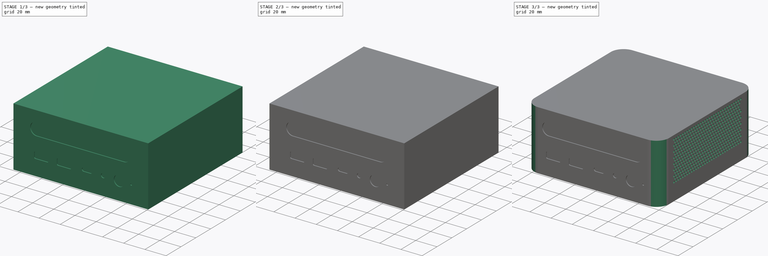
[diagram: build sequence overview — one tinted view per stage of 3, left to right]
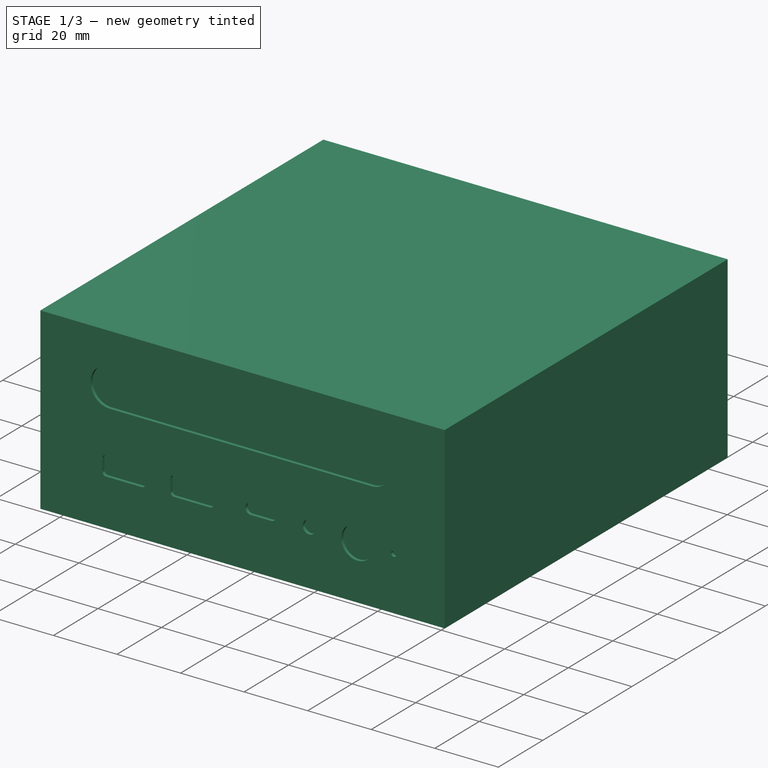
[diagram: stage 1 of 3 — iso view after this stage's code; geometry added in this stage tinted green]
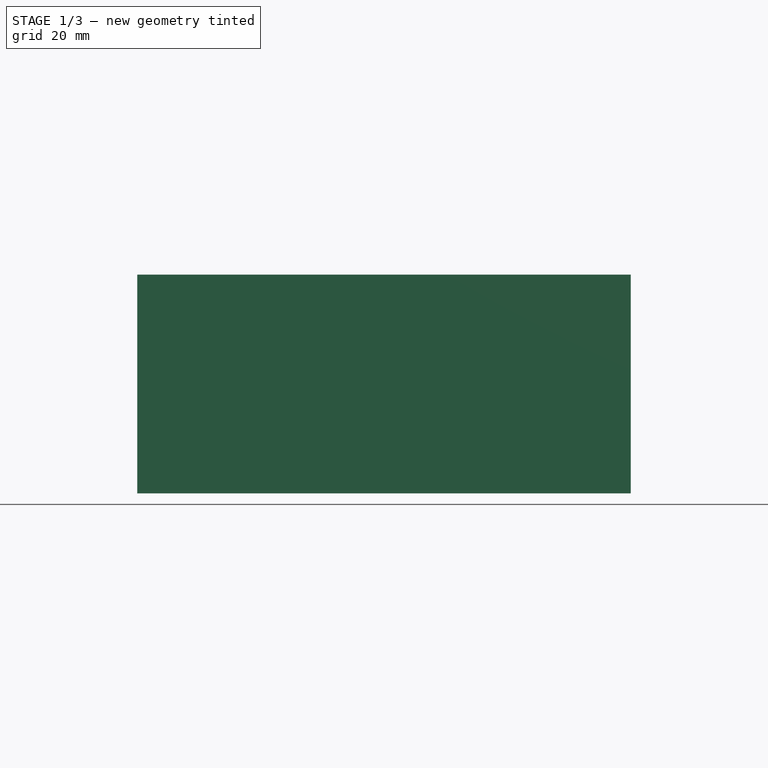
[diagram: stage 1 of 3 — front view after this stage's code; geometry added in this stage tinted green]
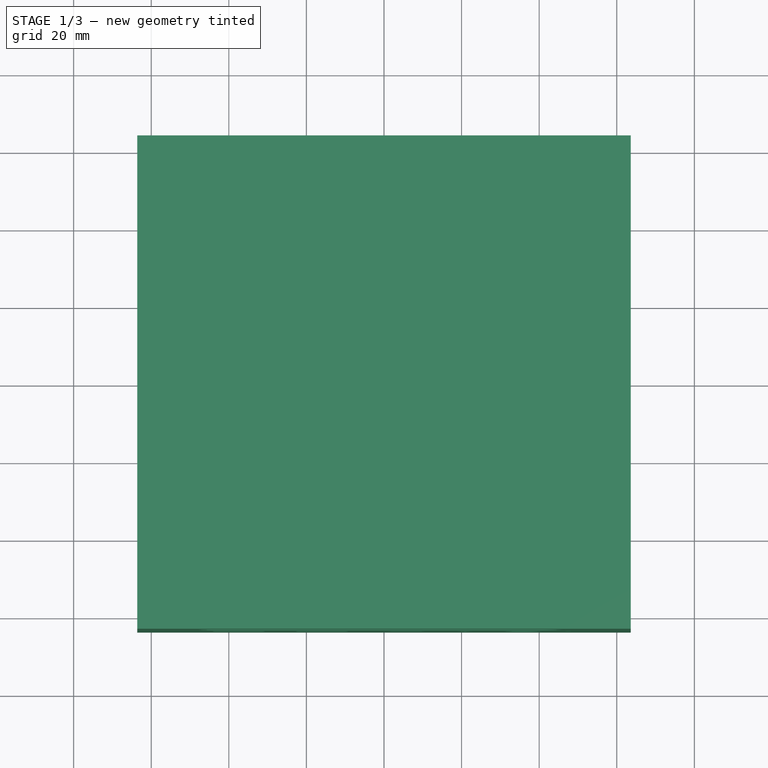
[diagram: stage 1 of 3 — top view after this stage's code; geometry added in this stage tinted green]
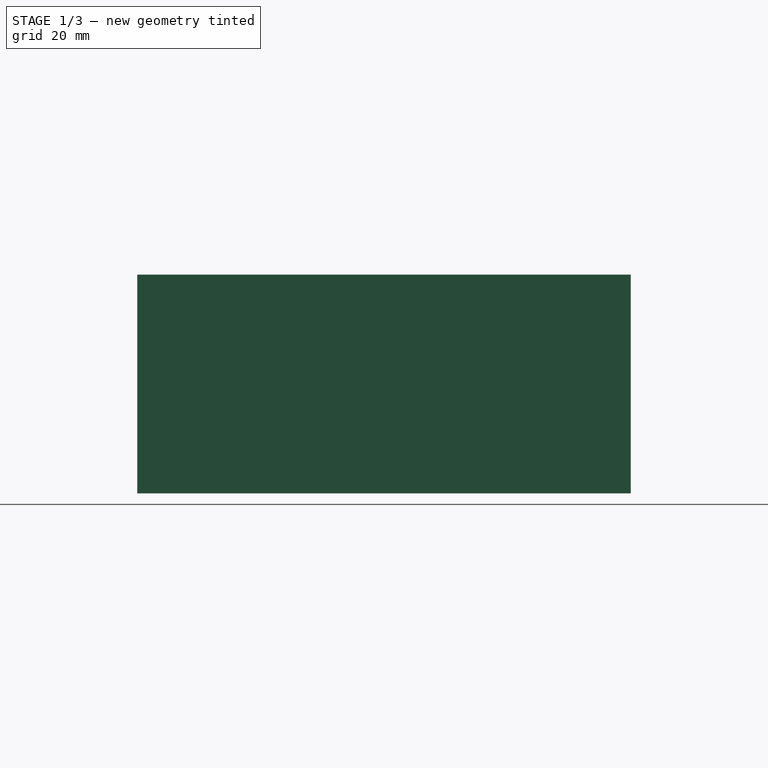
[diagram: stage 1 of 3 — right view after this stage's code; geometry added in this stage tinted green]
FCSTD DOCUMENT  (FreeCAD 1.0R39285 (Git))
Label: slimbook_one
License: All rights reserved
objects: Sketcher::SketchObject×6, PartDesign::Pocket×5, PartDesign::Pad×1, PartDesign::Fillet×1, PartDesign::Body×1
note: 34 computed .brp shape members not serialized (recipe doc carries the construction recipe); baked Part::Feature solids carry a one-line shape summary decoded from their .brp

FEATURE [Sketcher::SketchObject] Sketch003
  ArcFitTolerance = 1e-06
  AttachmentSupport = -> [XY_Plane001]
  FullyConstrained = true
  MakeInternals = false
  MapMode = 5
  sketch-geometry (4):
    g0: LineSegment StartX=-63.615 StartY=63.6 StartZ=0 EndX=-63.615 EndY=-63.6 EndZ=0
    g1: LineSegment StartX=-63.615 StartY=-63.6 StartZ=0 EndX=63.615 EndY=-63.6 EndZ=0
    g2: LineSegment StartX=63.615 StartY=-63.6 StartZ=0 EndX=63.615 EndY=63.6 EndZ=0
    g3: LineSegment StartX=63.615 StartY=63.6 StartZ=0 EndX=-63.615 EndY=63.6 EndZ=0
  constraints (10):
    c: Coincident(g0,g1)
    c: Coincident(g1,g2)
    c: Coincident(g2,g3)
    c: Coincident(g3,g0)
    c: Vertical(g2)
    c: Horizontal(g1)
    c: Symmetric(g0,g2,g-2)
    c: Symmetric(g0,g0,g-1)
    c: DistanceX(g3,g3) = 127.23
    c: DistanceY(g2,g2) = 127.2
FEATURE [PartDesign::Pad] Pad001
  Direction = (0,0,1)
  Length = 56.4
  Length2 = 10
  Profile = -> Sketch003
  ReferenceAxis = -> Sketch003 [N_Axis]
  Refine = true
  Suppressed = false
  Type = 0
FEATURE [Sketcher::SketchObject] Sketch004
  ArcFitTolerance = 1e-06
  AttachmentSupport = -> [Pad001]
  ExternalGeometry = -> [Pad001]
  FullyConstrained = false
  MakeInternals = false
  MapMode = 5
  Placement = pos=(0,-63.6,0) rot=(1,0,0;1.5708rad)
  sketch-geometry (40):
    g0: LineSegment [constr] StartX=-73.4008 StartY=46.2791 StartZ=0 EndX=82.2227 EndY=46.2791 EndZ=0
    g1: LineSegment [constr] StartX=-71.5261 StartY=34.2791 StartZ=0 EndX=84.3052 EndY=34.2791 EndZ=0
    g2: GeomPoint [constr] X=-16.6735 Y=34.2791 Z=0
    g3: GeomPoint [constr] X=18.856 Y=56.4 Z=0
    g4: LineSegment [constr] StartX=46.6007 StartY=63.3874 StartZ=0 EndX=46.6007 EndY=1.40972 EndZ=0
    g5: LineSegment [constr] StartX=-47.8255 StartY=66.0933 StartZ=0 EndX=-47.8255 EndY=-0.062699 EndZ=0
    g6: GeomPoint [constr] X=46.6007 Y=37.3248 Z=0
    g7: GeomPoint [constr] X=-47.8255 Y=40.1228 Z=0
    g8: ArcOfCircle CenterX=-41.8276 CenterY=40.2791 CenterZ=0 NormalX=0 NormalY=0 NormalZ=1 AngleXU=0 Radius=6 StartAngle=1.57079 EndAngle=4.71239
    g9: ArcOfCircle CenterX=40.6007 CenterY=40.2791 CenterZ=0 NormalX=0 NormalY=0 NormalZ=1 AngleXU=0 Radius=6 StartAngle=4.71239 EndAngle=7.85398
    g10: LineSegment StartX=-41.8275 StartY=46.2791 StartZ=0 EndX=40.6007 EndY=46.2791 EndZ=0
    g11: LineSegment StartX=-41.8276 StartY=34.2791 StartZ=0 EndX=40.6007 EndY=34.2791 EndZ=0
    g12: Circle CenterX=47.5771 CenterY=16.878 CenterZ=0 NormalX=0 NormalY=0 NormalZ=1 AngleXU=0 Radius=0.840897
    g13: Circle CenterX=36.1492 CenterY=16.9947 CenterZ=0 NormalX=0 NormalY=0 NormalZ=1 AngleXU=0 Radius=5.07796
    g14: Circle CenterX=20.9897 CenterY=17.3445 CenterZ=0 NormalX=0 NormalY=0 NormalZ=1 AngleXU=0 Radius=2.03403
    g15: ArcOfCircle CenterX=2.53728 CenterY=17.6 CenterZ=0 NormalX=0 NormalY=0 NormalZ=1 AngleXU=0 Radius=1.64393 StartAngle=1.57079 EndAngle=4.71239
    g16: ArcOfCircle CenterX=8.98728 CenterY=17.6 CenterZ=0 NormalX=0 NormalY=0 NormalZ=1 AngleXU=0 Radius=1.64393 StartAngle=4.7124 EndAngle=7.85398
    g17: LineSegment [constr] StartX=8.98728 StartY=17.6 StartZ=0 EndX=-2.16467 EndY=17.6 EndZ=0
    g18: LineSegment StartX=2.53729 StartY=19.2439 StartZ=0 EndX=8.98728 EndY=19.2439 EndZ=0
    g19: LineSegment StartX=2.53728 StartY=15.9561 StartZ=0 EndX=8.98729 EndY=15.9561 EndZ=0
    g20: LineSegment StartX=-22.671 StartY=19.4925 StartZ=0 EndX=-22.671 EndY=15.7492 EndZ=0
    g21: LineSegment StartX=-21.5535 StartY=14.6316 StartZ=0 EndX=-10.2113 EndY=14.6316 EndZ=0
    g22: LineSegment StartX=-9.0938 StartY=15.7492 StartZ=0 EndX=-9.0938 EndY=19.4925 EndZ=0
    g23: LineSegment StartX=-10.2113 StartY=20.61 StartZ=0 EndX=-21.5535 EndY=20.61 EndZ=0
    g24: ArcOfCircle CenterX=-21.5535 CenterY=19.4925 CenterZ=0 NormalX=0 NormalY=0 NormalZ=1 AngleXU=0 Radius=1.11755 StartAngle=1.5708 EndAngle=3.14159
    g25: ArcOfCircle CenterX=-21.5535 CenterY=15.7492 CenterZ=0 NormalX=0 NormalY=0 NormalZ=1 AngleXU=0 Radius=1.11755 StartAngle=3.14159 EndAngle=4.71239
    g26: ArcOfCircle CenterX=-10.2113 CenterY=15.7492 CenterZ=0 NormalX=0 NormalY=0 NormalZ=1 AngleXU=0 Radius=1.11755 StartAngle=4.71239 EndAngle=6.28319
    g27: ArcOfCircle CenterX=-10.2113 CenterY=19.4925 CenterZ=0 NormalX=0 NormalY=0 NormalZ=1 AngleXU=0 Radius=1.11755 StartAngle=0 EndAngle=1.5708
    g28: GeomPoint [constr] X=-22.671 Y=20.61 Z=0
    g29: GeomPoint [constr] X=-9.0938 Y=14.6316 Z=0
    g30: LineSegment StartX=-44.1275 StartY=19.5508 StartZ=0 EndX=-44.1275 EndY=15.8075 EndZ=0
    g31: LineSegment StartX=-43.01 StartY=14.6899 StartZ=0 EndX=-31.6679 EndY=14.6899 EndZ=0
    g32: LineSegment StartX=-30.5503 StartY=15.8075 StartZ=0 EndX=-30.5503 EndY=19.5508 EndZ=0
    g33: LineSegment StartX=-31.6679 StartY=20.6683 StartZ=0 EndX=-43.01 EndY=20.6683 EndZ=0
    g34: ArcOfCircle CenterX=-43.01 CenterY=19.5508 CenterZ=0 NormalX=0 NormalY=0 NormalZ=1 AngleXU=0 Radius=1.11755 StartAngle=1.5708 EndAngle=3.14159
    g35: ArcOfCircle CenterX=-43.01 CenterY=15.8075 CenterZ=0 NormalX=0 NormalY=0 NormalZ=1 AngleXU=0 Radius=1.11755 StartAngle=3.14159 EndAngle=4.71239
    g36: ArcOfCircle CenterX=-31.6679 CenterY=15.8075 CenterZ=0 NormalX=0 NormalY=0 NormalZ=1 AngleXU=0 Radius=1.11755 StartAngle=4.71239 EndAngle=6.28319
    g37: ArcOfCircle CenterX=-31.6679 CenterY=19.5508 CenterZ=0 NormalX=0 NormalY=0 NormalZ=1 AngleXU=0 Radius=1.11755 StartAngle=0 EndAngle=1.5708
    g38: GeomPoint [constr] X=-44.1275 Y=20.6683 Z=0
    g39: GeomPoint [constr] X=-30.5503 Y=14.6899 Z=0
  constraints (70):
    c: Horizontal(g0)
    c: Horizontal(g1)
    c: PointOnObject(g2,g1)
    c: Distance(g2,g0) = 12
    c: PointOnObject(g3,g-3)
    c: Vertical(g4)
    c: Vertical(g5)
    c: PointOnObject(g6,g4)
    c: PointOnObject(g7,g5)
    c: PointOnObject(g7,g8)
    c: Tangent(g8,g0)
    c: Tangent(g8,g1)
    c: Tangent(g10,g9) = 1.5708
    c: Horizontal(g10)
    c: Horizontal(g11)
    c: Tangent(g9,g4)
    c: Coincident(g8,g11)
    c: Coincident(g8,g10)
    c: Tangent(g9,g0) = 1.5708
    c: Tangent(g9,g1) = -1.5708
    c: Coincident(g17,g16)
    c: Horizontal(g17)
    c: PointOnObject(g15,g17)
    c: Distance(g17,g-1) = 17.6
    c: DistanceX(g15,g16) = 6.45
    c: Horizontal(g18)
    c: Horizontal(g19)
    c: Coincident(g15,g18)
    c: Tangent(g15,g19) = -1.5708
    c: Coincident(g16,g19)
    c: Tangent(g16,g18) = 1.5708
    c: Tangent(g20,g24) = -1.5708
    c: Tangent(g20,g25) = -1.5708
    c: Tangent(g21,g25) = -1.5708
    c: Tangent(g21,g26) = -1.5708
    c: Tangent(g22,g26) = -1.5708
    c: Tangent(g22,g27) = -1.5708
    c: Tangent(g23,g27) = -1.5708
    c: Tangent(g23,g24) = -1.5708
    c: Vertical(g20)
    c: Vertical(g22)
    c: Horizontal(g21)
    c: Horizontal(g23)
    c: Equal(g24,g25)
    c: Equal(g25,g26)
    c: Equal(g26,g27)
    c: PointOnObject(g28,g20)
    c: PointOnObject(g28,g23)
    c: PointOnObject(g29,g21)
    c: PointOnObject(g29,g22)
    c: Tangent(g30,g34) = -1.5708
    c: Tangent(g30,g35) = -1.5708
    c: Tangent(g31,g35) = -1.5708
    c: Tangent(g31,g36) = -1.5708
    c: Tangent(g32,g36) = -1.5708
    c: Tangent(g32,g37) = -1.5708
    c: Tangent(g33,g37) = -1.5708
    c: Tangent(g33,g34) = -1.5708
    c: Vertical(g30)
    c: Vertical(g32)
    c: Horizontal(g31)
    c: Horizontal(g33)
    c: Equal(g34,g35)
    c: Equal(g35,g36)
    c: Equal(g36,g37)
    c: PointOnObject(g38,g30)
    c: PointOnObject(g38,g33)
    c: PointOnObject(g39,g31)
    c: PointOnObject(g39,g32)
    c: Coincident(g11,g9)
FEATURE [PartDesign::Pocket] Pocket002
  BaseFeature = -> Pad001
  Direction = (0,1,-2e-16)
  Length = 1
  Length2 = 5
  Profile = -> Sketch004
  ReferenceAxis = -> Sketch004 [N_Axis]
  Refine = true
  Suppressed = false
  Type = 0
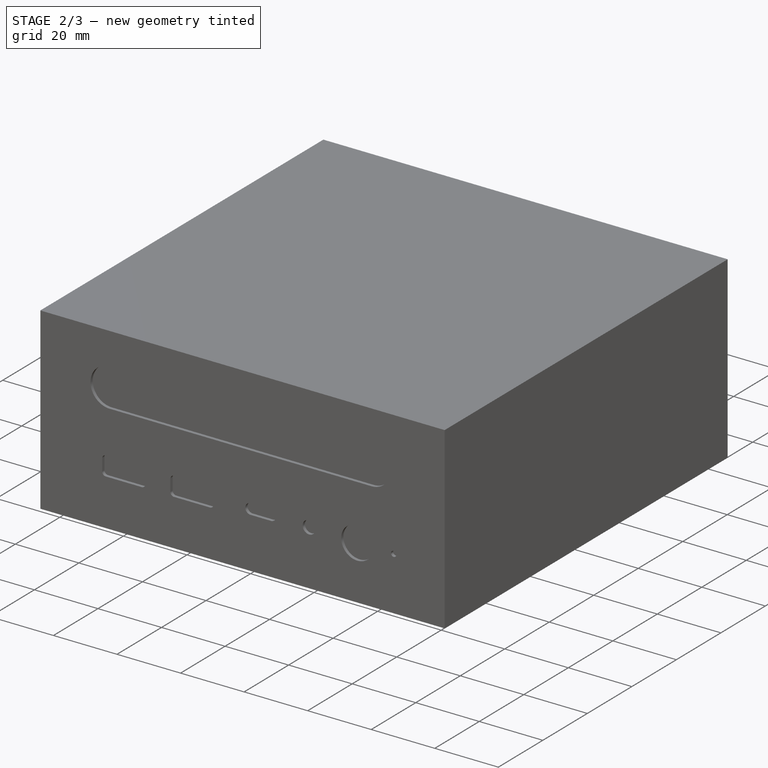
[diagram: stage 2 of 3 — iso view after this stage's code; geometry added in this stage tinted green]
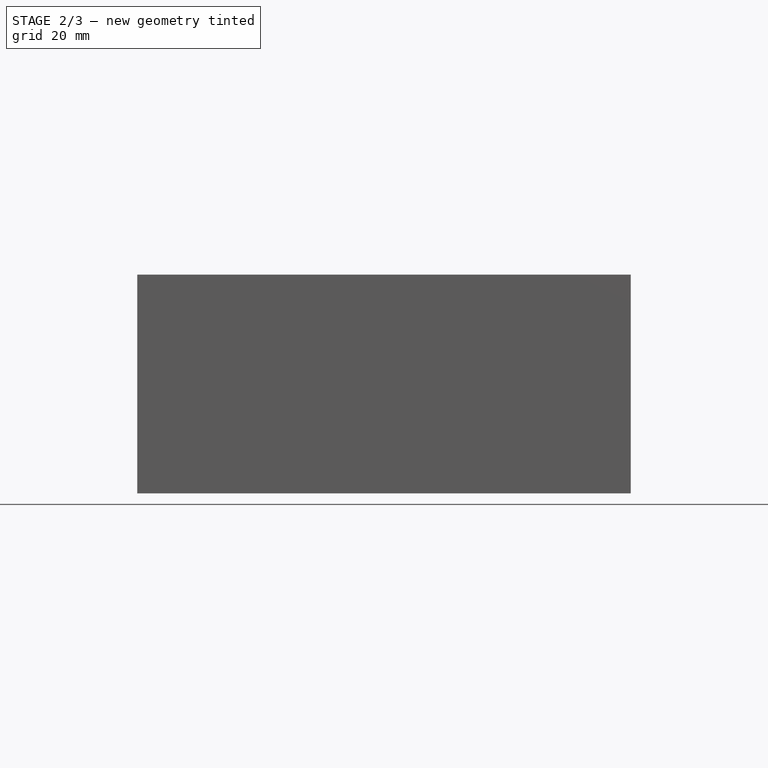
[diagram: stage 2 of 3 — front view after this stage's code; geometry added in this stage tinted green]
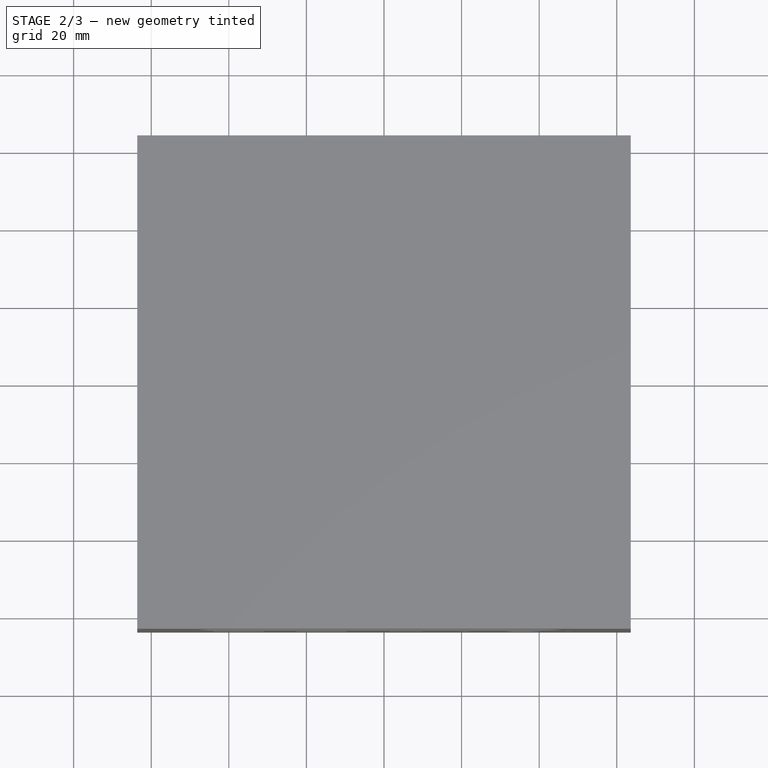
[diagram: stage 2 of 3 — top view after this stage's code; geometry added in this stage tinted green]
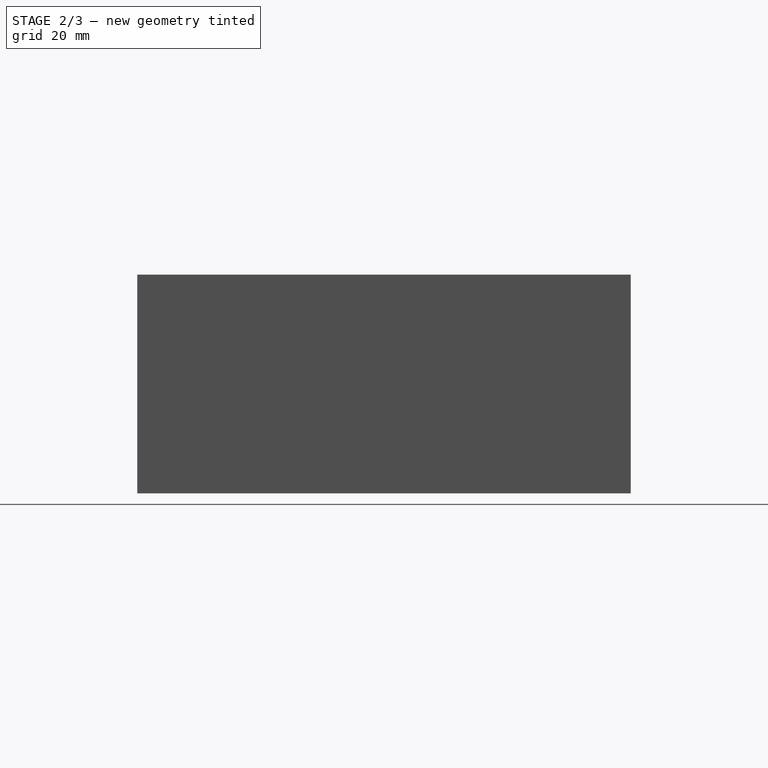
[diagram: stage 2 of 3 — right view after this stage's code; geometry added in this stage tinted green]
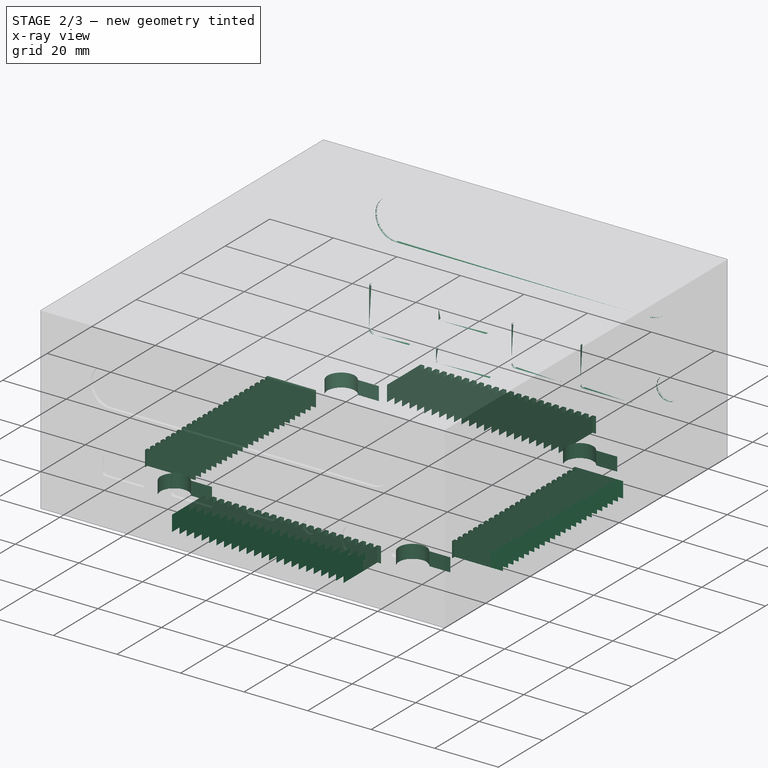
[diagram: stage 2 of 3 — x-ray composite at the iso view; earlier geometry ghosted, this stage's added geometry solid]
FEATURE [Sketcher::SketchObject] Sketch005
  ArcFitTolerance = 1e-06
  AttachmentSupport = -> [Pocket002]
  ExternalGeometry = -> [Pocket002]
  FullyConstrained = false
  MakeInternals = false
  MapMode = 5
  Placement = pos=(0,63.6,0) rot=(0,0.707107,0.707107;3.14159rad)
  sketch-geometry (58):
    g0: LineSegment StartX=-46.1992 StartY=40.269 StartZ=0 EndX=-46.1992 EndY=40.2561 EndZ=0
    g1: LineSegment StartX=-39.7824 StartY=33.8393 StartZ=0 EndX=40.1638 EndY=33.8393 EndZ=0
    g2: LineSegment StartX=46.5806 StartY=40.2561 StartZ=0 EndX=46.5806 EndY=40.269 EndZ=0
    g3: LineSegment StartX=40.1638 StartY=46.6858 StartZ=0 EndX=-39.7824 EndY=46.6858 EndZ=0
    g4: ArcOfCircle CenterX=-39.7824 CenterY=40.269 CenterZ=0 NormalX=0 NormalY=0 NormalZ=1 AngleXU=0 Radius=6.41679 StartAngle=1.5708 EndAngle=3.14159
    g5: ArcOfCircle CenterX=-39.7824 CenterY=40.2561 CenterZ=0 NormalX=0 NormalY=0 NormalZ=1 AngleXU=0 Radius=6.41679 StartAngle=3.14159 EndAngle=4.71239
    g6: ArcOfCircle CenterX=40.1638 CenterY=40.2561 CenterZ=0 NormalX=0 NormalY=0 NormalZ=1 AngleXU=0 Radius=6.41679 StartAngle=4.71239 EndAngle=6.28319
    g7: ArcOfCircle CenterX=40.1638 CenterY=40.269 CenterZ=0 NormalX=0 NormalY=0 NormalZ=1 AngleXU=0 Radius=6.41679 StartAngle=0 EndAngle=1.5708
    g8: GeomPoint [constr] X=-46.1992 Y=46.6858 Z=0
    g9: GeomPoint [constr] X=46.5806 Y=33.8393 Z=0
    g10: Circle CenterX=-45.4206 CenterY=15.0239 CenterZ=0 NormalX=0 NormalY=0 NormalZ=1 AngleXU=0 Radius=3.60775
    g11: LineSegment StartX=-34.3908 StartY=20.0846 StartZ=0 EndX=-34.3908 EndY=8.66553 EndZ=0
    g12: LineSegment StartX=-33.742 StartY=8.01672 StartZ=0 EndX=-18.5599 EndY=8.01672 EndZ=0
    g13: LineSegment StartX=-17.9111 StartY=8.66553 StartZ=0 EndX=-17.9111 EndY=20.0846 EndZ=0
    g14: LineSegment StartX=-18.5599 StartY=20.7334 StartZ=0 EndX=-33.742 EndY=20.7334 EndZ=0
    g15: ArcOfCircle CenterX=-33.742 CenterY=20.0846 CenterZ=0 NormalX=0 NormalY=0 NormalZ=1 AngleXU=0 Radius=0.648808 StartAngle=1.5708 EndAngle=3.14159
    g16: ArcOfCircle CenterX=-33.742 CenterY=8.66553 CenterZ=0 NormalX=0 NormalY=0 NormalZ=1 AngleXU=0 Radius=0.648808 StartAngle=3.14159 EndAngle=4.71239
    g17: ArcOfCircle CenterX=-18.5599 CenterY=8.66553 CenterZ=0 NormalX=0 NormalY=0 NormalZ=1 AngleXU=0 Radius=0.648808 StartAngle=4.71239 EndAngle=6.28319
    g18: ArcOfCircle CenterX=-18.5599 CenterY=20.0846 CenterZ=0 NormalX=0 NormalY=0 NormalZ=1 AngleXU=0 Radius=0.648808 StartAngle=0 EndAngle=1.5708
    g19: GeomPoint [constr] X=-34.3908 Y=20.7334 Z=0
    g20: GeomPoint [constr] X=-17.9111 Y=8.01672 Z=0
    g21: LineSegment StartX=-12.4794 StartY=19.9304 StartZ=0 EndX=-12.4794 EndY=8.97443 EndZ=0
    g22: LineSegment StartX=-11.4891 StartY=7.98409 StartZ=0 EndX=2.80844 EndY=7.98409 EndZ=0
    g23: LineSegment StartX=3.79878 StartY=8.97443 StartZ=0 EndX=3.79878 EndY=19.9304 EndZ=0
    g24: LineSegment StartX=2.80844 StartY=20.9207 StartZ=0 EndX=-11.4891 EndY=20.9207 EndZ=0
    g25: ArcOfCircle CenterX=-11.4891 CenterY=19.9304 CenterZ=0 NormalX=0 NormalY=0 NormalZ=1 AngleXU=0 Radius=0.990344 StartAngle=1.5708 EndAngle=3.14159
    g26: ArcOfCircle CenterX=-11.4891 CenterY=8.97443 CenterZ=0 NormalX=0 NormalY=0 NormalZ=1 AngleXU=0 Radius=0.990344 StartAngle=3.14159 EndAngle=4.71239
    g27: ArcOfCircle CenterX=2.80844 CenterY=8.97443 CenterZ=0 NormalX=0 NormalY=0 NormalZ=1 AngleXU=0 Radius=0.990344 StartAngle=4.71239 EndAngle=6.28319
    g28: ArcOfCircle CenterX=2.80844 CenterY=19.9304 CenterZ=0 NormalX=0 NormalY=0 NormalZ=1 AngleXU=0 Radius=0.990344 StartAngle=0 EndAngle=1.5708
    g29: GeomPoint [constr] X=-12.4794 Y=20.9207 Z=0
    g30: GeomPoint [constr] X=3.79878 Y=7.98409 Z=0
    g31: LineSegment StartX=35.046 StartY=19.0812 StartZ=0 EndX=35.046 EndY=6.92984 EndZ=0
    g32: LineSegment StartX=36.3456 StartY=5.63021 StartZ=0 EndX=47.2081 EndY=5.63021 EndZ=0
    g33: LineSegment StartX=48.5077 StartY=6.92984 StartZ=0 EndX=48.5077 EndY=19.0812 EndZ=0
    g34: LineSegment StartX=47.2081 StartY=20.3809 StartZ=0 EndX=36.3456 EndY=20.3809 EndZ=0
    g35: ArcOfCircle CenterX=36.3456 CenterY=19.0812 CenterZ=0 NormalX=0 NormalY=0 NormalZ=1 AngleXU=0 Radius=1.29963 StartAngle=1.5708 EndAngle=3.14159
    g36: ArcOfCircle CenterX=36.3456 CenterY=6.92984 CenterZ=0 NormalX=0 NormalY=0 NormalZ=1 AngleXU=0 Radius=1.29963 StartAngle=3.14159 EndAngle=4.71239
    g37: ArcOfCircle CenterX=47.2081 CenterY=6.92984 CenterZ=0 NormalX=0 NormalY=0 NormalZ=1 AngleXU=0 Radius=1.29963 StartAngle=4.71239 EndAngle=6.28319
    g38: ArcOfCircle CenterX=47.2081 CenterY=19.0812 CenterZ=0 NormalX=0 NormalY=0 NormalZ=1 AngleXU=0 Radius=1.29963 StartAngle=0 EndAngle=1.5708
    g39: GeomPoint [constr] X=35.046 Y=20.3809 Z=0
    g40: GeomPoint [constr] X=48.5077 Y=5.63021 Z=0
    g41: LineSegment StartX=10.548 StartY=8.4941 StartZ=0 EndX=10.548 EndY=3.30873 EndZ=0
    g42: LineSegment StartX=10.823 StartY=3.03371 StartZ=0 EndX=27.1937 EndY=3.03371 EndZ=0
    g43: LineSegment StartX=27.4688 StartY=3.30873 StartZ=0 EndX=27.4688 EndY=6.82208 EndZ=0
    g44: LineSegment StartX=27.4688 StartY=6.82208 StartZ=0 EndX=25.6157 EndY=8.76912 EndZ=0
    g45: LineSegment StartX=25.6157 StartY=8.76912 StartZ=0 EndX=10.823 EndY=8.76912 EndZ=0
    g46: ArcOfCircle CenterX=10.823 CenterY=8.4941 CenterZ=0 NormalX=0 NormalY=0 NormalZ=1 AngleXU=0 Radius=0.275018 StartAngle=1.5708 EndAngle=3.14159
    g47: GeomPoint [constr] X=10.548 Y=8.76912 Z=0
    g48: ArcOfCircle CenterX=10.823 CenterY=3.30873 CenterZ=0 NormalX=0 NormalY=0 NormalZ=1 AngleXU=0 Radius=0.275018 StartAngle=3.14159 EndAngle=4.71239
    g49: GeomPoint [constr] X=10.548 Y=3.03371 Z=0
    g50: ArcOfCircle CenterX=27.1937 CenterY=3.30873 CenterZ=0 NormalX=0 NormalY=0 NormalZ=1 AngleXU=0 Radius=0.275018 StartAngle=4.71239 EndAngle=6.28319
    g51: GeomPoint [constr] X=27.4688 Y=3.03371 Z=0
    g52: LineSegment StartX=11.7565 StartY=15.292 StartZ=0 EndX=26.7276 EndY=15.292 EndZ=0
    g53: LineSegment StartX=26.7276 StartY=15.292 StartZ=0 EndX=26.7276 EndY=18.8754 EndZ=0
    g54: LineSegment StartX=26.7276 StartY=18.8754 StartZ=0 EndX=24.6148 EndY=20.7314 EndZ=0
    g55: LineSegment StartX=24.6148 StartY=20.7314 StartZ=0 EndX=13.8693 EndY=20.7314 EndZ=0
    g56: LineSegment StartX=13.8693 StartY=20.7314 StartZ=0 EndX=11.7565 EndY=18.8754 EndZ=0
    g57: LineSegment StartX=11.7565 StartY=18.8754 StartZ=0 EndX=11.7565 EndY=15.292 EndZ=0
  constraints (108):
    c: Tangent(g0,g4) = -1.5708
    c: Tangent(g0,g5) = -1.5708
    c: Tangent(g1,g5) = -1.5708
    c: Tangent(g1,g6) = -1.5708
    c: Tangent(g2,g6) = -1.5708
    c: Tangent(g2,g7) = -1.5708
    c: Tangent(g3,g7) = -1.5708
    c: Tangent(g3,g4) = -1.5708
    c: Vertical(g0)
    c: Vertical(g2)
    c: Horizontal(g1)
    c: Horizontal(g3)
    c: Equal(g4,g5)
    c: Equal(g5,g6)
    c: Equal(g6,g7)
    c: PointOnObject(g8,g0)
    c: PointOnObject(g8,g3)
    c: PointOnObject(g9,g1)
    c: PointOnObject(g9,g2)
    c: Tangent(g11,g15) = -1.5708
    c: Tangent(g11,g16) = -1.5708
    c: Tangent(g12,g16) = -1.5708
    c: Tangent(g12,g17) = -1.5708
    c: Tangent(g13,g17) = -1.5708
    c: Tangent(g13,g18) = -1.5708
    c: Tangent(g14,g18) = -1.5708
    c: Tangent(g14,g15) = -1.5708
    c: Vertical(g11)
    c: Vertical(g13)
    c: Horizontal(g12)
    c: Horizontal(g14)
    c: Equal(g15,g16)
    c: Equal(g16,g17)
    c: Equal(g17,g18)
    c: PointOnObject(g19,g11)
    c: PointOnObject(g19,g14)
    c: PointOnObject(g20,g12)
    c: PointOnObject(g20,g13)
    c: Tangent(g21,g25) = -1.5708
    c: Tangent(g21,g26) = -1.5708
    c: Tangent(g22,g26) = -1.5708
    c: Tangent(g22,g27) = -1.5708
    c: Tangent(g23,g27) = -1.5708
    c: Tangent(g23,g28) = -1.5708
    c: Tangent(g24,g28) = -1.5708
    c: Tangent(g24,g25) = -1.5708
    c: Vertical(g21)
    c: Vertical(g23)
    c: Horizontal(g22)
    c: Horizontal(g24)
    c: Equal(g25,g26)
    c: Equal(g26,g27)
    c: Equal(g27,g28)
    c: PointOnObject(g29,g21)
    c: PointOnObject(g29,g24)
    c: PointOnObject(g30,g22)
    c: PointOnObject(g30,g23)
    c: Tangent(g31,g35) = -1.5708
    c: Tangent(g31,g36) = -1.5708
    c: Tangent(g32,g36) = -1.5708
    c: Tangent(g32,g37) = -1.5708
    c: Tangent(g33,g37) = -1.5708
    c: Tangent(g33,g38) = -1.5708
    c: Tangent(g34,g38) = -1.5708
    c: Tangent(g34,g35) = -1.5708
    c: Vertical(g31)
    c: Vertical(g33)
    c: Horizontal(g32)
    c: Horizontal(g34)
    c: Equal(g35,g36)
    c: Equal(g36,g37)
    c: Equal(g37,g38)
    c: PointOnObject(g39,g31)
    c: PointOnObject(g39,g34)
    c: PointOnObject(g40,g32)
    c: PointOnObject(g40,g33)
    c: Vertical(g41)
    c: Horizontal(g42)
    c: Vertical(g43)
    c: Coincident(g43,g44)
    c: Coincident(g44,g45)
    c: Horizontal(g45)
    c: PointOnObject(g47,g45)
    c: PointOnObject(g47,g41)
    c: Tangent(g45,g46) = -1.5708
    c: Tangent(g41,g46) = -1.5708
    c: PointOnObject(g49,g41)
    c: PointOnObject(g49,g42)
    c: Tangent(g41,g48) = -1.5708
    c: Tangent(g42,g48) = -1.5708
    c: PointOnObject(g51,g43)
    c: PointOnObject(g51,g42)
    c: Tangent(g43,g50) = -1.5708
    c: Tangent(g42,g50) = -1.5708
    c: Equal(g46,g48)
    c: Equal(g48,g50)
    c: Horizontal(g52)
    c: Coincident(g52,g53)
    c: Vertical(g53)
    c: Coincident(g53,g54)
    c: Coincident(g54,g55)
    c: Horizontal(g55)
    c: Coincident(g55,g56)
    c: Coincident(g56,g57)
    c: Vertical(g57)
    c: Equal(g56,g54)
    c: Equal(g57,g53)
    c: Coincident(g57,g52)
FEATURE [PartDesign::Pocket] Pocket003
  BaseFeature = -> Pocket002
  Direction = (0,-1,2e-16)
  Length = 1
  Length2 = 5
  Profile = -> Sketch005
  ReferenceAxis = -> Sketch005 [N_Axis]
  Refine = true
  Suppressed = false
  Type = 0
FEATURE [Sketcher::SketchObject] Sketch006
  ArcFitTolerance = 1e-06
  AttachmentSupport = -> [Pocket003]
  ExternalGeometry = -> [Pocket003]
  FullyConstrained = false
  MakeInternals = false
  MapMode = 5
  Placement = pos=(0,0,0) rot=(1,0,0;3.14159rad)
  sketch-geometry (16):
    g0: LineSegment StartX=45.285 StartY=39.47 StartZ=0 EndX=38.6682 EndY=39.47 EndZ=0
    g1: LineSegment StartX=38.6682 StartY=34.87 StartZ=0 EndX=45.285 EndY=34.87 EndZ=0
    g2: LineSegment StartX=45.285 StartY=34.87 StartZ=0 EndX=45.285 EndY=39.47 EndZ=0
    g3: ArcOfCircle CenterX=35.035 CenterY=37.17 CenterZ=0 NormalX=0 NormalY=0 NormalZ=1 AngleXU=0 Radius=4.3 StartAngle=0.56437 EndAngle=5.71882
    g4: LineSegment StartX=-29.715 StartY=39.47 StartZ=0 EndX=-36.3318 EndY=39.47 EndZ=0
    g5: LineSegment StartX=-36.3318 StartY=34.87 StartZ=0 EndX=-29.715 EndY=34.87 EndZ=0
    g6: LineSegment StartX=-29.715 StartY=34.87 StartZ=0 EndX=-29.715 EndY=39.47 EndZ=0
    g7: ArcOfCircle CenterX=-39.965 CenterY=37.17 CenterZ=0 NormalX=0 NormalY=0 NormalZ=1 AngleXU=0 Radius=4.3 StartAngle=0.56437 EndAngle=5.71882
    g8: LineSegment StartX=45.285 StartY=-35.53 StartZ=0 EndX=38.6682 EndY=-35.53 EndZ=0
    g9: LineSegment StartX=38.6682 StartY=-40.13 StartZ=0 EndX=45.285 EndY=-40.13 EndZ=0
    g10: LineSegment StartX=45.285 StartY=-40.13 StartZ=0 EndX=45.285 EndY=-35.53 EndZ=0
    g11: ArcOfCircle CenterX=35.035 CenterY=-37.83 CenterZ=0 NormalX=0 NormalY=0 NormalZ=1 AngleXU=0 Radius=4.3 StartAngle=0.56437 EndAngle=5.71882
    g12: LineSegment StartX=-29.715 StartY=-35.53 StartZ=0 EndX=-36.3318 EndY=-35.53 EndZ=0
    g13: LineSegment StartX=-36.3318 StartY=-40.13 StartZ=0 EndX=-29.715 EndY=-40.13 EndZ=0
    g14: LineSegment StartX=-29.715 StartY=-40.13 StartZ=0 EndX=-29.715 EndY=-35.53 EndZ=0
    g15: ArcOfCircle CenterX=-39.965 CenterY=-37.83 CenterZ=0 NormalX=0 NormalY=0 NormalZ=1 AngleXU=0 Radius=4.3 StartAngle=0.56437 EndAngle=5.71882
  constraints (43):
    c: Coincident(g1,g2)
    c: Coincident(g2,g0)
    c: Horizontal(g0)
    c: Horizontal(g1)
    c: Vertical(g2)
    c: DistanceY(g2,g2) = 4.6
    c: Diameter(g3) = 8.6
    c: Distance(g3,g0) = 2.3
    c: PointOnObject(g0,g3)
    c: Coincident(g1,g3)
    c: Coincident(g5,g6)
    c: Coincident(g9,g10)
    c: Coincident(g13,g14)
    c: Coincident(g6,g4)
    c: Coincident(g10,g8)
    c: Coincident(g14,g12)
    c: Horizontal(g4)
    c: Horizontal(g8)
    c: Horizontal(g12)
    c: Horizontal(g5)
    c: Horizontal(g9)
    c: Horizontal(g13)
    c: Vertical(g6)
    c: Vertical(g10)
    c: Vertical(g14)
    c: DistanceY(g6,g6) = 4.6
    c: DistanceY(g10,g10) = 4.6
    c: DistanceY(g14,g14) = 4.6
    c: Diameter(g7) = 8.6
    c: Diameter(g11) = 8.6
    c: Diameter(g15) = 8.6
    c: Distance(g7,g4) = 2.3
    c: Distance(g11,g8) = 2.3
    c: Distance(g15,g12) = 2.3
    c: PointOnObject(g4,g7)
    c: PointOnObject(g8,g11)
    c: PointOnObject(g12,g15)
    c: Coincident(g5,g7)
    c: Coincident(g9,g11)
    c: Coincident(g13,g15)
    c: Coincident(g4,g7)
    c: Coincident(g12,g15)
    c: Coincident(g8,g11)
FEATURE [PartDesign::Pocket] Pocket004
  BaseFeature = -> Pocket003
  Direction = (0,0,1)
  Length = 4.32
  Length2 = 5
  Profile = -> Sketch006
  ReferenceAxis = -> Sketch006 [N_Axis]
  Refine = true
  Suppressed = false
  Type = 0
FEATURE [Sketcher::SketchObject] Sketch007
  ArcFitTolerance = 1e-06
  AttachmentSupport = -> [Pocket004]
  ExternalGeometry = -> [Pocket004]
  FullyConstrained = false
  MakeInternals = false
  MapMode = 5
  Placement = pos=(0,0,0) rot=(1,0,0;3.14159rad)
  sketch-geometry (393):
    g0: LineSegment [constr] StartX=55.975 StartY=77.3472 StartZ=0 EndX=55.975 EndY=-90.5139 EndZ=0
    g1: GeomPoint [constr] X=55.975 Y=8.93984 Z=0
    g2: LineSegment [constr] StartX=-99.4084 StartY=-27.6 StartZ=0 EndX=154.225 EndY=-27.6 EndZ=0
    g3: GeomPoint [constr] X=27.4082 Y=-27.6 Z=0
    g4: LineSegment StartX=40.725 StartY=-26.45 StartZ=0 EndX=40.725 EndY=-27.6 EndZ=0
    g5: LineSegment StartX=40.725 StartY=-27.6 StartZ=0 EndX=55.975 EndY=-27.6 EndZ=0
    g6: LineSegment StartX=55.975 StartY=-27.6 StartZ=0 EndX=55.975 EndY=-26.45 EndZ=0
    g7: LineSegment StartX=55.975 StartY=-26.45 StartZ=0 EndX=40.725 EndY=-26.45 EndZ=0
    g8: LineSegment StartX=40.725 StartY=-24.1 StartZ=0 EndX=40.725 EndY=-25.25 EndZ=0
    g9: LineSegment StartX=40.725 StartY=-25.25 StartZ=0 EndX=55.975 EndY=-25.25 EndZ=0
    g10: LineSegment StartX=55.975 StartY=-25.25 StartZ=0 EndX=55.975 EndY=-24.1 EndZ=0
    g11: LineSegment StartX=55.975 StartY=-24.1 StartZ=0 EndX=40.725 EndY=-24.1 EndZ=0
    g12: LineSegment StartX=40.725 StartY=-21.75 StartZ=0 EndX=40.725 EndY=-22.9 EndZ=0
    g13: LineSegment StartX=40.725 StartY=-22.9 StartZ=0 EndX=55.975 EndY=-22.9 EndZ=0
    g14: LineSegment StartX=55.975 StartY=-22.9 StartZ=0 EndX=55.975 EndY=-21.75 EndZ=0
    g15: LineSegment StartX=55.975 StartY=-21.75 StartZ=0 EndX=40.725 EndY=-21.75 EndZ=0
    g16: LineSegment StartX=40.725 StartY=-19.4 StartZ=0 EndX=40.725 EndY=-20.55 EndZ=0
    g17: LineSegment StartX=40.725 StartY=-20.55 StartZ=0 EndX=55.975 EndY=-20.55 EndZ=0
    g18: LineSegment StartX=55.975 StartY=-20.55 StartZ=0 EndX=55.975 EndY=-19.4 EndZ=0
    g19: LineSegment StartX=55.975 StartY=-19.4 StartZ=0 EndX=40.725 EndY=-19.4 EndZ=0
    g20: LineSegment StartX=40.725 StartY=-17.05 StartZ=0 EndX=40.725 EndY=-18.2 EndZ=0
    g21: LineSegment StartX=40.725 StartY=-18.2 StartZ=0 EndX=55.975 EndY=-18.2 EndZ=0
    g22: LineSegment StartX=55.975 StartY=-18.2 StartZ=0 EndX=55.975 EndY=-17.05 EndZ=0
    g23: LineSegment StartX=55.975 StartY=-17.05 StartZ=0 EndX=40.725 EndY=-17.05 EndZ=0
    g24: LineSegment StartX=40.725 StartY=-14.7 StartZ=0 EndX=40.725 EndY=-15.85 EndZ=0
    g25: LineSegment StartX=40.725 StartY=-15.85 StartZ=0 EndX=55.975 EndY=-15.85 EndZ=0
    g26: LineSegment StartX=55.975 StartY=-15.85 StartZ=0 EndX=55.975 EndY=-14.7 EndZ=0
    g27: LineSegment StartX=55.975 StartY=-14.7 StartZ=0 EndX=40.725 EndY=-14.7 EndZ=0
    g28: LineSegment StartX=40.725 StartY=-12.35 StartZ=0 EndX=40.725 EndY=-13.5 EndZ=0
    g29: LineSegment StartX=40.725 StartY=-13.5 StartZ=0 EndX=55.975 EndY=-13.5 EndZ=0
    g30: LineSegment StartX=55.975 StartY=-13.5 StartZ=0 EndX=55.975 EndY=-12.35 EndZ=0
    g31: LineSegment StartX=55.975 StartY=-12.35 StartZ=0 EndX=40.725 EndY=-12.35 EndZ=0
    g32: LineSegment StartX=40.725 StartY=-10 StartZ=0 EndX=40.725 EndY=-11.15 EndZ=0
    g33: LineSegment StartX=40.725 StartY=-11.15 StartZ=0 EndX=55.975 EndY=-11.15 EndZ=0
    g34: LineSegment StartX=55.975 StartY=-11.15 StartZ=0 EndX=55.975 EndY=-10 EndZ=0
    g35: LineSegment StartX=55.975 StartY=-10 StartZ=0 EndX=40.725 EndY=-10 EndZ=0
    g36: LineSegment StartX=40.725 StartY=-7.65 StartZ=0 EndX=40.725 EndY=-8.8 EndZ=0
    g37: LineSegment StartX=40.725 StartY=-8.8 StartZ=0 EndX=55.975 EndY=-8.8 EndZ=0
    g38: LineSegment StartX=55.975 StartY=-8.8 StartZ=0 EndX=55.975 EndY=-7.65 EndZ=0
    g39: LineSegment StartX=55.975 StartY=-7.65 StartZ=0 EndX=40.725 EndY=-7.65 EndZ=0
    g40: LineSegment StartX=40.725 StartY=-5.3 StartZ=0 EndX=40.725 EndY=-6.45 EndZ=0
    g41: LineSegment StartX=40.725 StartY=-6.45 StartZ=0 EndX=55.975 EndY=-6.45 EndZ=0
    g42: LineSegment StartX=55.975 StartY=-6.45 StartZ=0 EndX=55.975 EndY=-5.3 EndZ=0
    g43: LineSegment StartX=55.975 StartY=-5.3 StartZ=0 EndX=40.725 EndY=-5.3 EndZ=0
    g44: LineSegment StartX=40.725 StartY=-2.95 StartZ=0 EndX=40.725 EndY=-4.1 EndZ=0
    g45: LineSegment StartX=40.725 StartY=-4.1 StartZ=0 EndX=55.975 EndY=-4.1 EndZ=0
    g46: LineSegment StartX=55.975 StartY=-4.1 StartZ=0 EndX=55.975 EndY=-2.95 EndZ=0
    g47: LineSegment StartX=55.975 StartY=-2.95 StartZ=0 EndX=40.725 EndY=-2.95 EndZ=0
    g48: LineSegment StartX=40.725 StartY=-0.6 StartZ=0 EndX=40.725 EndY=-1.75 EndZ=0
    g49: LineSegment StartX=40.725 StartY=-1.75 StartZ=0 EndX=55.975 EndY=-1.75 EndZ=0
    g50: LineSegment StartX=55.975 StartY=-1.75 StartZ=0 EndX=55.975 EndY=-0.6 EndZ=0
    g51: LineSegment StartX=55.975 StartY=-0.6 StartZ=0 EndX=40.725 EndY=-0.6 EndZ=0
    g52: LineSegment StartX=40.725 StartY=1.75 StartZ=0 EndX=40.725 EndY=0.6 EndZ=0
    g53: LineSegment StartX=40.725 StartY=0.6 StartZ=0 EndX=55.975 EndY=0.6 EndZ=0
    g54: LineSegment StartX=55.975 StartY=0.6 StartZ=0 EndX=55.975 EndY=1.75 EndZ=0
    g55: LineSegment StartX=55.975 StartY=1.75 StartZ=0 EndX=40.725 EndY=1.75 EndZ=0
    g56: LineSegment StartX=40.725 StartY=4.1 StartZ=0 EndX=40.725 EndY=2.95 EndZ=0
    g57: LineSegment StartX=40.725 StartY=2.95 StartZ=0 EndX=55.975 EndY=2.95 EndZ=0
    g58: LineSegment StartX=55.975 StartY=2.95 StartZ=0 EndX=55.975 EndY=4.1 EndZ=0
    g59: LineSegment StartX=55.975 StartY=4.1 StartZ=0 EndX=40.725 EndY=4.1 EndZ=0
    g60: LineSegment StartX=40.725 StartY=6.45 StartZ=0 EndX=40.725 EndY=5.3 EndZ=0
    g61: LineSegment StartX=40.725 StartY=5.3 StartZ=0 EndX=55.975 EndY=5.3 EndZ=0
    g62: LineSegment StartX=55.975 StartY=5.3 StartZ=0 EndX=55.975 EndY=6.45 EndZ=0
    g63: LineSegment StartX=55.975 StartY=6.45 StartZ=0 EndX=40.725 EndY=6.45 EndZ=0
    g64: LineSegment StartX=40.725 StartY=8.8 StartZ=0 EndX=40.725 EndY=7.65 EndZ=0
    g65: LineSegment StartX=40.725 StartY=7.65 StartZ=0 EndX=55.975 EndY=7.65 EndZ=0
    g66: LineSegment StartX=55.975 StartY=7.65 StartZ=0 EndX=55.975 EndY=8.8 EndZ=0
    g67: LineSegment StartX=55.975 StartY=8.8 StartZ=0 EndX=40.725 EndY=8.8 EndZ=0
    g68: LineSegment StartX=40.725 StartY=11.15 StartZ=0 EndX=40.725 EndY=10 EndZ=0
    g69: LineSegment StartX=40.725 StartY=10 StartZ=0 EndX=55.975 EndY=10 EndZ=0
    g70: LineSegment StartX=55.975 StartY=10 StartZ=0 EndX=55.975 EndY=11.15 EndZ=0
    g71: LineSegment StartX=55.975 StartY=11.15 StartZ=0 EndX=40.725 EndY=11.15 EndZ=0
    g72: LineSegment StartX=40.725 StartY=13.5 StartZ=0 EndX=40.725 EndY=12.35 EndZ=0
    g73: LineSegment StartX=40.725 StartY=12.35 StartZ=0 EndX=55.975 EndY=12.35 EndZ=0
    g74: LineSegment StartX=55.975 StartY=12.35 StartZ=0 EndX=55.975 EndY=13.5 EndZ=0
    g75: LineSegment StartX=55.975 StartY=13.5 StartZ=0 EndX=40.725 EndY=13.5 EndZ=0
    g76: LineSegment StartX=40.725 StartY=15.85 StartZ=0 EndX=40.725 EndY=14.7 EndZ=0
    g77: LineSegment StartX=40.725 StartY=14.7 StartZ=0 EndX=55.975 EndY=14.7 EndZ=0
    g78: LineSegment StartX=55.975 StartY=14.7 StartZ=0 EndX=55.975 EndY=15.85 EndZ=0
    g79: LineSegment StartX=55.975 StartY=15.85 StartZ=0 EndX=40.725 EndY=15.85 EndZ=0
    g80: LineSegment StartX=40.725 StartY=18.2 StartZ=0 EndX=40.725 EndY=17.05 EndZ=0
    g81: LineSegment StartX=40.725 StartY=17.05 StartZ=0 EndX=55.975 EndY=17.05 EndZ=0
    g82: LineSegment StartX=55.975 StartY=17.05 StartZ=0 EndX=55.975 EndY=18.2 EndZ=0
    g83: LineSegment StartX=55.975 StartY=18.2 StartZ=0 EndX=40.725 EndY=18.2 EndZ=0
    g84: LineSegment StartX=40.725 StartY=20.55 StartZ=0 EndX=40.725 EndY=19.4 EndZ=0
    g85: LineSegment StartX=40.725 StartY=19.4 StartZ=0 EndX=55.975 EndY=19.4 EndZ=0
    g86: LineSegment StartX=55.975 StartY=19.4 StartZ=0 EndX=55.975 EndY=20.55 EndZ=0
    g87: LineSegment StartX=55.975 StartY=20.55 StartZ=0 EndX=40.725 EndY=20.55 EndZ=0
    g88: LineSegment StartX=40.725 StartY=22.9 StartZ=0 EndX=40.725 EndY=21.75 EndZ=0
    g89: LineSegment StartX=40.725 StartY=21.75 StartZ=0 EndX=55.975 EndY=21.75 EndZ=0
    g90: LineSegment StartX=55.975 StartY=21.75 StartZ=0 EndX=55.975 EndY=22.9 EndZ=0
    g91: LineSegment StartX=55.975 StartY=22.9 StartZ=0 EndX=40.725 EndY=22.9 EndZ=0
    g92: LineSegment StartX=40.725 StartY=25.25 StartZ=0 EndX=40.725 EndY=24.1 EndZ=0
    g93: LineSegment StartX=40.725 StartY=24.1 StartZ=0 EndX=55.975 EndY=24.1 EndZ=0
    g94: LineSegment StartX=55.975 StartY=24.1 StartZ=0 EndX=55.975 EndY=25.25 EndZ=0
    g95: LineSegment StartX=55.975 StartY=25.25 StartZ=0 EndX=40.725 EndY=25.25 EndZ=0
    g96: LineSegment StartX=40.725 StartY=27.6 StartZ=0 EndX=40.725 EndY=26.45 EndZ=0
    g97: LineSegment StartX=40.725 StartY=26.45 StartZ=0 EndX=55.975 EndY=26.45 EndZ=0
    g98: LineSegment StartX=55.975 StartY=26.45 StartZ=0 EndX=55.975 EndY=27.6 EndZ=0
    g99: LineSegment StartX=55.975 StartY=27.6 StartZ=0 EndX=40.725 EndY=27.6 EndZ=0
    g100: LineSegment [constr] StartX=-55.975 StartY=77.3472 StartZ=0 EndX=-55.975 EndY=-90.5139 EndZ=0
    g101: GeomPoint [constr] X=-55.975 Y=8.93984 Z=0
    g102: LineSegment [constr] StartX=99.4084 StartY=-27.6 StartZ=0 EndX=-154.225 EndY=-27.6 EndZ=0
    g103: LineSegment StartX=-40.725 StartY=-26.45 StartZ=0 EndX=-40.725 EndY=-27.6 EndZ=0
    g104: LineSegment StartX=-40.725 StartY=-27.6 StartZ=0 EndX=-55.975 EndY=-27.6 EndZ=0
    g105: LineSegment StartX=-55.975 StartY=-27.6 StartZ=0 EndX=-55.975 EndY=-26.45 EndZ=0
    g106: LineSegment StartX=-55.975 StartY=-26.45 StartZ=0 EndX=-40.725 EndY=-26.45 EndZ=0
    g107: LineSegment StartX=-40.725 StartY=-24.1 StartZ=0 EndX=-40.725 EndY=-25.25 EndZ=0
    g108: LineSegment StartX=-40.725 StartY=-25.25 StartZ=0 EndX=-55.975 EndY=-25.25 EndZ=0
    g109: LineSegment StartX=-55.975 StartY=-25.25 StartZ=0 EndX=-55.975 EndY=-24.1 EndZ=0
    g110: LineSegment StartX=-55.975 StartY=-24.1 StartZ=0 EndX=-40.725 EndY=-24.1 EndZ=0
    g111: LineSegment StartX=-40.725 StartY=-21.75 StartZ=0 EndX=-40.725 EndY=-22.9 EndZ=0
    g112: LineSegment StartX=-40.725 StartY=-22.9 StartZ=0 EndX=-55.975 EndY=-22.9 EndZ=0
    g113: LineSegment StartX=-55.975 StartY=-22.9 StartZ=0 EndX=-55.975 EndY=-21.75 EndZ=0
    g114: LineSegment StartX=-55.975 StartY=-21.75 StartZ=0 EndX=-40.725 EndY=-21.75 EndZ=0
    g115: LineSegment StartX=-40.725 StartY=-19.4 StartZ=0 EndX=-40.725 EndY=-20.55 EndZ=0
    g116: LineSegment StartX=-40.725 StartY=-20.55 StartZ=0 EndX=-55.975 EndY=-20.55 EndZ=0
    g117: LineSegment StartX=-55.975 StartY=-20.55 StartZ=0 EndX=-55.975 EndY=-19.4 EndZ=0
    g118: LineSegment StartX=-55.975 StartY=-19.4 StartZ=0 EndX=-40.725 EndY=-19.4 EndZ=0
    g119: LineSegment StartX=-40.725 StartY=-17.05 StartZ=0 EndX=-40.725 EndY=-18.2 EndZ=0
    g120: LineSegment StartX=-40.725 StartY=-18.2 StartZ=0 EndX=-55.975 EndY=-18.2 EndZ=0
    g121: LineSegment StartX=-55.975 StartY=-18.2 StartZ=0 EndX=-55.975 EndY=-17.05 EndZ=0
    g122: LineSegment StartX=-55.975 StartY=-17.05 StartZ=0 EndX=-40.725 EndY=-17.05 EndZ=0
    g123: LineSegment StartX=-40.725 StartY=-14.7 StartZ=0 EndX=-40.725 EndY=-15.85 EndZ=0
    g124: LineSegment StartX=-40.725 StartY=-15.85 StartZ=0 EndX=-55.975 EndY=-15.85 EndZ=0
    g125: LineSegment StartX=-55.975 StartY=-15.85 StartZ=0 EndX=-55.975 EndY=-14.7 EndZ=0
    g126: LineSegment StartX=-55.975 StartY=-14.7 StartZ=0 EndX=-40.725 EndY=-14.7 EndZ=0
    g127: LineSegment StartX=-40.725 StartY=-12.35 StartZ=0 EndX=-40.725 EndY=-13.5 EndZ=0
    g128: LineSegment StartX=-40.725 StartY=-13.5 StartZ=0 EndX=-55.975 EndY=-13.5 EndZ=0
    g129: LineSegment StartX=-55.975 StartY=-13.5 StartZ=0 EndX=-55.975 EndY=-12.35 EndZ=0
    g130: LineSegment StartX=-55.975 StartY=-12.35 StartZ=0 EndX=-40.725 EndY=-12.35 EndZ=0
    g131: LineSegment StartX=-40.725 StartY=-10 StartZ=0 EndX=-40.725 EndY=-11.15 EndZ=0
    g132: LineSegment StartX=-40.725 StartY=-11.15 StartZ=0 EndX=-55.975 EndY=-11.15 EndZ=0
    g133: LineSegment StartX=-55.975 StartY=-11.15 StartZ=0 EndX=-55.975 EndY=-10 EndZ=0
    g134: LineSegment StartX=-55.975 StartY=-10 StartZ=0 EndX=-40.725 EndY=-10 EndZ=0
    g135: LineSegment StartX=-40.725 StartY=-7.65 StartZ=0 EndX=-40.725 EndY=-8.8 EndZ=0
    g136: LineSegment StartX=-40.725 StartY=-8.8 StartZ=0 EndX=-55.975 EndY=-8.8 EndZ=0
    g137: LineSegment StartX=-55.975 StartY=-8.8 StartZ=0 EndX=-55.975 EndY=-7.65 EndZ=0
    g138: LineSegment StartX=-55.975 StartY=-7.65 StartZ=0 EndX=-40.725 EndY=-7.65 EndZ=0
    g139: LineSegment StartX=-40.725 StartY=-5.3 StartZ=0 EndX=-40.725 EndY=-6.45 EndZ=0
    g140: LineSegment StartX=-40.725 StartY=-6.45 StartZ=0 EndX=-55.975 EndY=-6.45 EndZ=0
    g141: LineSegment StartX=-55.975 StartY=-6.45 StartZ=0 EndX=-55.975 EndY=-5.3 EndZ=0
    g142: LineSegment StartX=-55.975 StartY=-5.3 StartZ=0 EndX=-40.725 EndY=-5.3 EndZ=0
    g143: LineSegment StartX=-40.725 StartY=-2.95 StartZ=0 EndX=-40.725 EndY=-4.1 EndZ=0
    g144: LineSegment StartX=-40.725 StartY=-4.1 StartZ=0 EndX=-55.975 EndY=-4.1 EndZ=0
    g145: LineSegment StartX=-55.975 StartY=-4.1 StartZ=0 EndX=-55.975 EndY=-2.95 EndZ=0
    g146: LineSegment StartX=-55.975 StartY=-2.95 StartZ=0 EndX=-40.725 EndY=-2.95 EndZ=0
    g147: LineSegment StartX=-40.725 StartY=-0.6 StartZ=0 EndX=-40.725 EndY=-1.75 EndZ=0
    g148: LineSegment StartX=-40.725 StartY=-1.75 StartZ=0 EndX=-55.975 EndY=-1.75 EndZ=0
    g149: LineSegment StartX=-55.975 StartY=-1.75 StartZ=0 EndX=-55.975 EndY=-0.6 EndZ=0
    g150: LineSegment StartX=-55.975 StartY=-0.6 StartZ=0 EndX=-40.725 EndY=-0.6 EndZ=0
    g151: LineSegment StartX=-40.725 StartY=1.75 StartZ=0 EndX=-40.725 EndY=0.6 EndZ=0
    g152: LineSegment StartX=-40.725 StartY=0.6 StartZ=0 EndX=-55.975 EndY=0.6 EndZ=0
    g153: LineSegment StartX=-55.975 StartY=0.6 StartZ=0 EndX=-55.975 EndY=1.75 EndZ=0
    g154: LineSegment StartX=-55.975 StartY=1.75 StartZ=0 EndX=-40.725 EndY=1.75 EndZ=0
    g155: LineSegment StartX=-40.725 StartY=4.1 StartZ=0 EndX=-40.725 EndY=2.95 EndZ=0
    g156: LineSegment StartX=-40.725 StartY=2.95 StartZ=0 EndX=-55.975 EndY=2.95 EndZ=0
    g157: LineSegment StartX=-55.975 StartY=2.95 StartZ=0 EndX=-55.975 EndY=4.1 EndZ=0
    g158: LineSegment StartX=-55.975 StartY=4.1 StartZ=0 EndX=-40.725 EndY=4.1 EndZ=0
    g159: LineSegment StartX=-40.725 StartY=6.45 StartZ=0 EndX=-40.725 EndY=5.3 EndZ=0
    g160: LineSegment StartX=-40.725 StartY=5.3 StartZ=0 EndX=-55.975 EndY=5.3 EndZ=0
    g161: LineSegment StartX=-55.975 StartY=5.3 StartZ=0 EndX=-55.975 EndY=6.45 EndZ=0
    g162: LineSegment StartX=-55.975 StartY=6.45 StartZ=0 EndX=-40.725 EndY=6.45 EndZ=0
    g163: LineSegment StartX=-40.725 StartY=8.8 StartZ=0 EndX=-40.725 EndY=7.65 EndZ=0
    g164: LineSegment StartX=-40.725 StartY=7.65 StartZ=0 EndX=-55.975 EndY=7.65 EndZ=0
    g165: LineSegment StartX=-55.975 StartY=7.65 StartZ=0 EndX=-55.975 EndY=8.8 EndZ=0
    g166: LineSegment StartX=-55.975 StartY=8.8 StartZ=0 EndX=-40.725 EndY=8.8 EndZ=0
    g167: LineSegment StartX=-40.725 StartY=11.15 StartZ=0 EndX=-40.725 EndY=10 EndZ=0
    g168: LineSegment StartX=-40.725 StartY=10 StartZ=0 EndX=-55.975 EndY=10 EndZ=0
    g169: LineSegment StartX=-55.975 StartY=10 StartZ=0 EndX=-55.975 EndY=11.15 EndZ=0
    g170: LineSegment StartX=-55.975 StartY=11.15 StartZ=0 EndX=-40.725 EndY=11.15 EndZ=0
    g171: LineSegment StartX=-40.725 StartY=13.5 StartZ=0 EndX=-40.725 EndY=12.35 EndZ=0
    g172: LineSegment StartX=-40.725 StartY=12.35 StartZ=0 EndX=-55.975 EndY=12.35 EndZ=0
    g173: LineSegment StartX=-55.975 StartY=12.35 StartZ=0 EndX=-55.975 EndY=13.5 EndZ=0
    g174: LineSegment StartX=-55.975 StartY=13.5 StartZ=0 EndX=-40.725 EndY=13.5 EndZ=0
    g175: LineSegment StartX=-40.725 StartY=15.85 StartZ=0 EndX=-40.725 EndY=14.7 EndZ=0
    g176: LineSegment StartX=-40.725 StartY=14.7 StartZ=0 EndX=-55.975 EndY=14.7 EndZ=0
    g177: LineSegment StartX=-55.975 StartY=14.7 StartZ=0 EndX=-55.975 EndY=15.85 EndZ=0
    g178: LineSegment StartX=-55.975 StartY=15.85 StartZ=0 EndX=-40.725 EndY=15.85 EndZ=0
    g179: LineSegment StartX=-40.725 StartY=18.2 StartZ=0 EndX=-40.725 EndY=17.05 EndZ=0
    g180: LineSegment StartX=-40.725 StartY=17.05 StartZ=0 EndX=-55.975 EndY=17.05 EndZ=0
    g181: LineSegment StartX=-55.975 StartY=17.05 StartZ=0 EndX=-55.975 EndY=18.2 EndZ=0
    g182: LineSegment StartX=-55.975 StartY=18.2 StartZ=0 EndX=-40.725 EndY=18.2 EndZ=0
    g183: LineSegment StartX=-40.725 StartY=20.55 StartZ=0 EndX=-40.725 EndY=19.4 EndZ=0
    g184: LineSegment StartX=-40.725 StartY=19.4 StartZ=0 EndX=-55.975 EndY=19.4 EndZ=0
    g185: LineSegment StartX=-55.975 StartY=19.4 StartZ=0 EndX=-55.975 EndY=20.55 EndZ=0
    g186: LineSegment StartX=-55.975 StartY=20.55 StartZ=0 EndX=-40.725 EndY=20.55 EndZ=0
    g187: LineSegment StartX=-40.725 StartY=22.9 StartZ=0 EndX=-40.725 EndY=21.75 EndZ=0
    g188: LineSegment StartX=-40.725 StartY=21.75 StartZ=0 EndX=-55.975 EndY=21.75 EndZ=0
    g189: LineSegment StartX=-55.975 StartY=21.75 StartZ=0 EndX=-55.975 EndY=22.9 EndZ=0
    g190: LineSegment StartX=-55.975 StartY=22.9 StartZ=0 EndX=-40.725 EndY=22.9 EndZ=0
    g191: LineSegment StartX=-40.725 StartY=25.25 StartZ=0 EndX=-40.725 EndY=24.1 EndZ=0
    g192: LineSegment StartX=-40.725 StartY=24.1 StartZ=0 EndX=-55.975 EndY=24.1 EndZ=0
    g193: LineSegment StartX=-55.975 StartY=24.1 StartZ=0 EndX=-55.975 EndY=25.25 EndZ=0
    g194: LineSegment StartX=-55.975 StartY=25.25 StartZ=0 EndX=-40.725 EndY=25.25 EndZ=0
    g195: LineSegment StartX=-40.725 StartY=27.6 StartZ=0 EndX=-40.725 EndY=26.45 EndZ=0
    g196: LineSegment StartX=-40.725 StartY=26.45 StartZ=0 EndX=-55.975 EndY=26.45 EndZ=0
    g197: LineSegment StartX=-55.975 StartY=26.45 StartZ=0 EndX=-55.975 EndY=27.6 EndZ=0
    g198: LineSegment StartX=-55.975 StartY=27.6 StartZ=0 EndX=-40.725 EndY=27.6 EndZ=0
    g199: GeomPoint [constr] X=8.92484 Y=-55.96 Z=0
    g200: LineSegment StartX=-26.465 StartY=-40.71 StartZ=0 EndX=-27.615 EndY=-40.71 EndZ=0
    g201: LineSegment StartX=-27.615 StartY=-40.71 StartZ=0 EndX=-27.615 EndY=-55.96 EndZ=0
    g202: LineSegment StartX=-27.615 StartY=-55.96 StartZ=0 EndX=-26.465 EndY=-55.96 EndZ=0
    g203: LineSegment StartX=-26.465 StartY=-55.96 StartZ=0 EndX=-26.465 EndY=-40.71 EndZ=0
    g204: LineSegment StartX=-24.115 StartY=-40.71 StartZ=0 EndX=-25.265 EndY=-40.71 EndZ=0
    g205: LineSegment StartX=-25.265 StartY=-40.71 StartZ=0 EndX=-25.265 EndY=-55.96 EndZ=0
    g206: LineSegment StartX=-25.265 StartY=-55.96 StartZ=0 EndX=-24.115 EndY=-55.96 EndZ=0
    g207: LineSegment StartX=-24.115 StartY=-55.96 StartZ=0 EndX=-24.115 EndY=-40.71 EndZ=0
    g208: LineSegment StartX=-21.765 StartY=-40.71 StartZ=0 EndX=-22.915 EndY=-40.71 EndZ=0
    g209: LineSegment StartX=-22.915 StartY=-40.71 StartZ=0 EndX=-22.915 EndY=-55.96 EndZ=0
    g210: LineSegment StartX=-22.915 StartY=-55.96 StartZ=0 EndX=-21.765 EndY=-55.96 EndZ=0
    g211: LineSegment StartX=-21.765 StartY=-55.96 StartZ=0 EndX=-21.765 EndY=-40.71 EndZ=0
    g212: LineSegment StartX=-19.415 StartY=-40.71 StartZ=0 EndX=-20.565 EndY=-40.71 EndZ=0
    g213: LineSegment StartX=-20.565 StartY=-40.71 StartZ=0 EndX=-20.565 EndY=-55.96 EndZ=0
    g214: LineSegment StartX=-20.565 StartY=-55.96 StartZ=0 EndX=-19.415 EndY=-55.96 EndZ=0
    g215: LineSegment StartX=-19.415 StartY=-55.96 StartZ=0 EndX=-19.415 EndY=-40.71 EndZ=0
    g216: LineSegment StartX=-17.065 StartY=-40.71 StartZ=0 EndX=-18.215 EndY=-40.71 EndZ=0
    g217: LineSegment StartX=-18.215 StartY=-40.71 StartZ=0 EndX=-18.215 EndY=-55.96 EndZ=0
    g218: LineSegment StartX=-18.215 StartY=-55.96 StartZ=0 EndX=-17.065 EndY=-55.96 EndZ=0
    g219: LineSegment StartX=-17.065 StartY=-55.96 StartZ=0 EndX=-17.065 EndY=-40.71 EndZ=0
    g220: LineSegment StartX=-14.715 StartY=-40.71 StartZ=0 EndX=-15.865 EndY=-40.71 EndZ=0
    g221: LineSegment StartX=-15.865 StartY=-40.71 StartZ=0 EndX=-15.865 EndY=-55.96 EndZ=0
    g222: LineSegment StartX=-15.865 StartY=-55.96 StartZ=0 EndX=-14.715 EndY=-55.96 EndZ=0
    g223: LineSegment StartX=-14.715 StartY=-55.96 StartZ=0 EndX=-14.715 EndY=-40.71 EndZ=0
    g224: LineSegment StartX=-12.365 StartY=-40.71 StartZ=0 EndX=-13.515 EndY=-40.71 EndZ=0
    g225: LineSegment StartX=-13.515 StartY=-40.71 StartZ=0 EndX=-13.515 EndY=-55.96 EndZ=0
    g226: LineSegment StartX=-13.515 StartY=-55.96 StartZ=0 EndX=-12.365 EndY=-55.96 EndZ=0
    g227: LineSegment StartX=-12.365 StartY=-55.96 StartZ=0 EndX=-12.365 EndY=-40.71 EndZ=0
    g228: LineSegment StartX=-10.015 StartY=-40.71 StartZ=0 EndX=-11.165 EndY=-40.71 EndZ=0
    g229: LineSegment StartX=-11.165 StartY=-40.71 StartZ=0 EndX=-11.165 EndY=-55.96 EndZ=0
    g230: LineSegment StartX=-11.165 StartY=-55.96 StartZ=0 EndX=-10.015 EndY=-55.96 EndZ=0
    g231: LineSegment StartX=-10.015 StartY=-55.96 StartZ=0 EndX=-10.015 EndY=-40.71 EndZ=0
    g232: LineSegment StartX=-7.665 StartY=-40.71 StartZ=0 EndX=-8.815 EndY=-40.71 EndZ=0
    g233: LineSegment StartX=-8.815 StartY=-40.71 StartZ=0 EndX=-8.815 EndY=-55.96 EndZ=0
    g234: LineSegment StartX=-8.815 StartY=-55.96 StartZ=0 EndX=-7.665 EndY=-55.96 EndZ=0
    g235: LineSegment StartX=-7.665 StartY=-55.96 StartZ=0 EndX=-7.665 EndY=-40.71 EndZ=0
    g236: LineSegment StartX=-5.315 StartY=-40.71 StartZ=0 EndX=-6.465 EndY=-40.71 EndZ=0
    g237: LineSegment StartX=-6.465 StartY=-40.71 StartZ=0 EndX=-6.465 EndY=-55.96 EndZ=0
    g238: LineSegment StartX=-6.465 StartY=-55.96 StartZ=0 EndX=-5.315 EndY=-55.96 EndZ=0
    g239: LineSegment StartX=-5.315 StartY=-55.96 StartZ=0 EndX=-5.315 EndY=-40.71 EndZ=0
    g240: LineSegment StartX=-2.965 StartY=-40.71 StartZ=0 EndX=-4.115 EndY=-40.71 EndZ=0
    g241: LineSegment StartX=-4.115 StartY=-40.71 StartZ=0 EndX=-4.115 EndY=-55.96 EndZ=0
    g242: LineSegment StartX=-4.115 StartY=-55.96 StartZ=0 EndX=-2.965 EndY=-55.96 EndZ=0
    g243: LineSegment StartX=-2.965 StartY=-55.96 StartZ=0 EndX=-2.965 EndY=-40.71 EndZ=0
    g244: LineSegment StartX=-0.615 StartY=-40.71 StartZ=0 EndX=-1.765 EndY=-40.71 EndZ=0
    g245: LineSegment StartX=-1.765 StartY=-40.71 StartZ=0 EndX=-1.765 EndY=-55.96 EndZ=0
    g246: LineSegment StartX=-1.765 StartY=-55.96 StartZ=0 EndX=-0.615 EndY=-55.96 EndZ=0
    g247: LineSegment StartX=-0.615 StartY=-55.96 StartZ=0 EndX=-0.615 EndY=-40.71 EndZ=0
    g248: LineSegment StartX=1.735 StartY=-40.71 StartZ=0 EndX=0.585 EndY=-40.71 EndZ=0
    g249: LineSegment StartX=0.585 StartY=-40.71 StartZ=0 EndX=0.585 EndY=-55.96 EndZ=0
    g250: LineSegment StartX=0.585 StartY=-55.96 StartZ=0 EndX=1.735 EndY=-55.96 EndZ=0
    g251: LineSegment StartX=1.735 StartY=-55.96 StartZ=0 EndX=1.735 EndY=-40.71 EndZ=0
    g252: LineSegment StartX=4.085 StartY=-40.71 StartZ=0 EndX=2.935 EndY=-40.71 EndZ=0
    g253: LineSegment StartX=2.935 StartY=-40.71 StartZ=0 EndX=2.935 EndY=-55.96 EndZ=0
    g254: LineSegment StartX=2.935 StartY=-55.96 StartZ=0 EndX=4.085 EndY=-55.96 EndZ=0
    g255: LineSegment StartX=4.085 StartY=-55.96 StartZ=0 EndX=4.085 EndY=-40.71 EndZ=0
    g256: LineSegment StartX=6.435 StartY=-40.71 StartZ=0 EndX=5.285 EndY=-40.71 EndZ=0
    g257: LineSegment StartX=5.285 StartY=-40.71 StartZ=0 EndX=5.285 EndY=-55.96 EndZ=0
    g258: LineSegment StartX=5.285 StartY=-55.96 StartZ=0 EndX=6.435 EndY=-55.96 EndZ=0
    g259: LineSegment StartX=6.435 StartY=-55.96 StartZ=0 EndX=6.435 EndY=-40.71 EndZ=0
    g260: LineSegment StartX=8.785 StartY=-40.71 StartZ=0 EndX=7.635 EndY=-40.71 EndZ=0
    g261: LineSegment StartX=7.635 StartY=-40.71 StartZ=0 EndX=7.635 EndY=-55.96 EndZ=0
    g262: LineSegment StartX=7.635 StartY=-55.96 StartZ=0 EndX=8.785 EndY=-55.96 EndZ=0
    g263: LineSegment StartX=8.785 StartY=-55.96 StartZ=0 EndX=8.785 EndY=-40.71 EndZ=0
    g264: LineSegment StartX=11.135 StartY=-40.71 StartZ=0 EndX=9.985 EndY=-40.71 EndZ=0
    g265: LineSegment StartX=9.985 StartY=-40.71 StartZ=0 EndX=9.985 EndY=-55.96 EndZ=0
    g266: LineSegment StartX=9.985 StartY=-55.96 StartZ=0 EndX=11.135 EndY=-55.96 EndZ=0
    g267: LineSegment StartX=11.135 StartY=-55.96 StartZ=0 EndX=11.135 EndY=-40.71 EndZ=0
    g268: LineSegment StartX=13.485 StartY=-40.71 StartZ=0 EndX=12.335 EndY=-40.71 EndZ=0
    g269: LineSegment StartX=12.335 StartY=-40.71 StartZ=0 EndX=12.335 EndY=-55.96 EndZ=0
    g270: LineSegment StartX=12.335 StartY=-55.96 StartZ=0 EndX=13.485 EndY=-55.96 EndZ=0
    g271: LineSegment StartX=13.485 StartY=-55.96 StartZ=0 EndX=13.485 EndY=-40.71 EndZ=0
    g272: LineSegment StartX=15.835 StartY=-40.71 StartZ=0 EndX=14.685 EndY=-40.71 EndZ=0
    g273: LineSegment StartX=14.685 StartY=-40.71 StartZ=0 EndX=14.685 EndY=-55.96 EndZ=0
    g274: LineSegment StartX=14.685 StartY=-55.96 StartZ=0 EndX=15.835 EndY=-55.96 EndZ=0
    g275: LineSegment StartX=15.835 StartY=-55.96 StartZ=0 EndX=15.835 EndY=-40.71 EndZ=0
    g276: LineSegment StartX=18.185 StartY=-40.71 StartZ=0 EndX=17.035 EndY=-40.71 EndZ=0
    g277: LineSegment StartX=17.035 StartY=-40.71 StartZ=0 EndX=17.035 EndY=-55.96 EndZ=0
    g278: LineSegment StartX=17.035 StartY=-55.96 StartZ=0 EndX=18.185 EndY=-55.96 EndZ=0
    g279: LineSegment StartX=18.185 StartY=-55.96 StartZ=0 EndX=18.185 EndY=-40.71 EndZ=0
    g280: LineSegment StartX=20.535 StartY=-40.71 StartZ=0 EndX=19.385 EndY=-40.71 EndZ=0
    g281: LineSegment StartX=19.385 StartY=-40.71 StartZ=0 EndX=19.385 EndY=-55.96 EndZ=0
    g282: LineSegment StartX=19.385 StartY=-55.96 StartZ=0 EndX=20.535 EndY=-55.96 EndZ=0
    g283: LineSegment StartX=20.535 StartY=-55.96 StartZ=0 EndX=20.535 EndY=-40.71 EndZ=0
    g284: LineSegment StartX=22.885 StartY=-40.71 StartZ=0 EndX=21.735 EndY=-40.71 EndZ=0
    g285: LineSegment StartX=21.735 StartY=-40.71 StartZ=0 EndX=21.735 EndY=-55.96 EndZ=0
    g286: LineSegment StartX=21.735 StartY=-55.96 StartZ=0 EndX=22.885 EndY=-55.96 EndZ=0
    g287: LineSegment StartX=22.885 StartY=-55.96 StartZ=0 EndX=22.885 EndY=-40.71 EndZ=0
    g288: LineSegment StartX=25.235 StartY=-40.71 StartZ=0 EndX=24.085 EndY=-40.71 EndZ=0
    g289: LineSegment StartX=24.085 StartY=-40.71 StartZ=0 EndX=24.085 EndY=-55.96 EndZ=0
    g290: LineSegment StartX=24.085 StartY=-55.96 StartZ=0 EndX=25.235 EndY=-55.96 EndZ=0
    g291: LineSegment StartX=25.235 StartY=-55.96 StartZ=0 EndX=25.235 EndY=-40.71 EndZ=0
    g292: LineSegment StartX=27.585 StartY=-40.71 StartZ=0 EndX=26.435 EndY=-40.71 EndZ=0
    g293: LineSegment StartX=26.435 StartY=-40.71 StartZ=0 EndX=26.435 EndY=-55.96 EndZ=0
    g294: LineSegment StartX=26.435 StartY=-55.96 StartZ=0 EndX=27.585 EndY=-55.96 EndZ=0
    g295: LineSegment StartX=27.585 StartY=-55.96 StartZ=0 EndX=27.585 EndY=-40.71 EndZ=0
    g296: GeomPoint [constr] X=8.92484 Y=55.96 Z=0
    g297: LineSegment StartX=-26.465 StartY=40.71 StartZ=0 EndX=-27.615 EndY=40.71 EndZ=0
    g298: LineSegment StartX=-27.615 StartY=40.71 StartZ=0 EndX=-27.615 EndY=55.96 EndZ=0
    g299: LineSegment StartX=-27.615 StartY=55.96 StartZ=0 EndX=-26.465 EndY=55.96 EndZ=0
    g300: LineSegment StartX=-26.465 StartY=55.96 StartZ=0 EndX=-26.465 EndY=40.71 EndZ=0
    g301: LineSegment StartX=-24.115 StartY=40.71 StartZ=0 EndX=-25.265 EndY=40.71 EndZ=0
    g302: LineSegment StartX=-25.265 StartY=40.71 StartZ=0 EndX=-25.265 EndY=55.96 EndZ=0
    g303: LineSegment StartX=-25.265 StartY=55.96 StartZ=0 EndX=-24.115 EndY=55.96 EndZ=0
    g304: LineSegment StartX=-24.115 StartY=55.96 StartZ=0 EndX=-24.115 EndY=40.71 EndZ=0
    g305: LineSegment StartX=-21.765 StartY=40.71 StartZ=0 EndX=-22.915 EndY=40.71 EndZ=0
    g306: LineSegment StartX=-22.915 StartY=40.71 StartZ=0 EndX=-22.915 EndY=55.96 EndZ=0
    g307: LineSegment StartX=-22.915 StartY=55.96 StartZ=0 EndX=-21.765 EndY=55.96 EndZ=0
    g308: LineSegment StartX=-21.765 StartY=55.96 StartZ=0 EndX=-21.765 EndY=40.71 EndZ=0
    g309: LineSegment StartX=-19.415 StartY=40.71 StartZ=0 EndX=-20.565 EndY=40.71 EndZ=0
    g310: LineSegment StartX=-20.565 StartY=40.71 StartZ=0 EndX=-20.565 EndY=55.96 EndZ=0
    g311: LineSegment StartX=-20.565 StartY=55.96 StartZ=0 EndX=-19.415 EndY=55.96 EndZ=0
    g312: LineSegment StartX=-19.415 StartY=55.96 StartZ=0 EndX=-19.415 EndY=40.71 EndZ=0
    g313: LineSegment StartX=-17.065 StartY=40.71 StartZ=0 EndX=-18.215 EndY=40.71 EndZ=0
    g314: LineSegment StartX=-18.215 StartY=40.71 StartZ=0 EndX=-18.215 EndY=55.96 EndZ=0
    g315: LineSegment StartX=-18.215 StartY=55.96 StartZ=0 EndX=-17.065 EndY=55.96 EndZ=0
    g316: LineSegment StartX=-17.065 StartY=55.96 StartZ=0 EndX=-17.065 EndY=40.71 EndZ=0
    g317: LineSegment StartX=-14.715 StartY=40.71 StartZ=0 EndX=-15.865 EndY=40.71 EndZ=0
    g318: LineSegment StartX=-15.865 StartY=40.71 StartZ=0 EndX=-15.865 EndY=55.96 EndZ=0
    g319: LineSegment StartX=-15.865 StartY=55.96 StartZ=0 EndX=-14.715 EndY=55.96 EndZ=0
    g320: LineSegment StartX=-14.715 StartY=55.96 StartZ=0 EndX=-14.715 EndY=40.71 EndZ=0
    g321: LineSegment StartX=-12.365 StartY=40.71 StartZ=0 EndX=-13.515 EndY=40.71 EndZ=0
    g322: LineSegment StartX=-13.515 StartY=40.71 StartZ=0 EndX=-13.515 EndY=55.96 EndZ=0
    g323: LineSegment StartX=-13.515 StartY=55.96 StartZ=0 EndX=-12.365 EndY=55.96 EndZ=0
    g324: LineSegment StartX=-12.365 StartY=55.96 StartZ=0 EndX=-12.365 EndY=40.71 EndZ=0
    g325: LineSegment StartX=-10.015 StartY=40.71 StartZ=0 EndX=-11.165 EndY=40.71 EndZ=0
    g326: LineSegment StartX=-11.165 StartY=40.71 StartZ=0 EndX=-11.165 EndY=55.96 EndZ=0
    g327: LineSegment StartX=-11.165 StartY=55.96 StartZ=0 EndX=-10.015 EndY=55.96 EndZ=0
    g328: LineSegment StartX=-10.015 StartY=55.96 StartZ=0 EndX=-10.015 EndY=40.71 EndZ=0
    g329: LineSegment StartX=-7.665 StartY=40.71 StartZ=0 EndX=-8.815 EndY=40.71 EndZ=0
    g330: LineSegment StartX=-8.815 StartY=40.71 StartZ=0 EndX=-8.815 EndY=55.96 EndZ=0
    g331: LineSegment StartX=-8.815 StartY=55.96 StartZ=0 EndX=-7.665 EndY=55.96 EndZ=0
    g332: LineSegment StartX=-7.665 StartY=55.96 StartZ=0 EndX=-7.665 EndY=40.71 EndZ=0
    g333: LineSegment StartX=-5.315 StartY=40.71 StartZ=0 EndX=-6.465 EndY=40.71 EndZ=0
    g334: LineSegment StartX=-6.465 StartY=40.71 StartZ=0 EndX=-6.465 EndY=55.96 EndZ=0
    g335: LineSegment StartX=-6.465 StartY=55.96 StartZ=0 EndX=-5.315 EndY=55.96 EndZ=0
    g336: LineSegment StartX=-5.315 StartY=55.96 StartZ=0 EndX=-5.315 EndY=40.71 EndZ=0
    g337: LineSegment StartX=-2.965 StartY=40.71 StartZ=0 EndX=-4.115 EndY=40.71 EndZ=0
    g338: LineSegment StartX=-4.115 StartY=40.71 StartZ=0 EndX=-4.115 EndY=55.96 EndZ=0
    g339: LineSegment StartX=-4.115 StartY=55.96 StartZ=0 EndX=-2.965 EndY=55.96 EndZ=0
    g340: LineSegment StartX=-2.965 StartY=55.96 StartZ=0 EndX=-2.965 EndY=40.71 EndZ=0
    g341: LineSegment StartX=-0.615 StartY=40.71 StartZ=0 EndX=-1.765 EndY=40.71 EndZ=0
    g342: LineSegment StartX=-1.765 StartY=40.71 StartZ=0 EndX=-1.765 EndY=55.96 EndZ=0
    g343: LineSegment StartX=-1.765 StartY=55.96 StartZ=0 EndX=-0.615 EndY=55.96 EndZ=0
    g344: LineSegment StartX=-0.615 StartY=55.96 StartZ=0 EndX=-0.615 EndY=40.71 EndZ=0
    g345: LineSegment StartX=1.735 StartY=40.71 StartZ=0 EndX=0.585 EndY=40.71 EndZ=0
    g346: LineSegment StartX=0.585 StartY=40.71 StartZ=0 EndX=0.585 EndY=55.96 EndZ=0
    g347: LineSegment StartX=0.585 StartY=55.96 StartZ=0 EndX=1.735 EndY=55.96 EndZ=0
    g348: LineSegment StartX=1.735 StartY=55.96 StartZ=0 EndX=1.735 EndY=40.71 EndZ=0
    g349: LineSegment StartX=4.085 StartY=40.71 StartZ=0 EndX=2.935 EndY=40.71 EndZ=0
    g350: LineSegment StartX=2.935 StartY=40.71 StartZ=0 EndX=2.935 EndY=55.96 EndZ=0
    g351: LineSegment StartX=2.935 StartY=55.96 StartZ=0 EndX=4.085 EndY=55.96 EndZ=0
    g352: LineSegment StartX=4.085 StartY=55.96 StartZ=0 EndX=4.085 EndY=40.71 EndZ=0
    g353: LineSegment StartX=6.435 StartY=40.71 StartZ=0 EndX=5.285 EndY=40.71 EndZ=0
    g354: LineSegment StartX=5.285 StartY=40.71 StartZ=0 EndX=5.285 EndY=55.96 EndZ=0
    g355: LineSegment StartX=5.285 StartY=55.96 StartZ=0 EndX=6.435 EndY=55.96 EndZ=0
    g356: LineSegment StartX=6.435 StartY=55.96 StartZ=0 EndX=6.435 EndY=40.71 EndZ=0
    g357: LineSegment StartX=8.785 StartY=40.71 StartZ=0 EndX=7.635 EndY=40.71 EndZ=0
    g358: LineSegment StartX=7.635 StartY=40.71 StartZ=0 EndX=7.635 EndY=55.96 EndZ=0
    g359: LineSegment StartX=7.635 StartY=55.96 StartZ=0 EndX=8.785 EndY=55.96 EndZ=0
    g360: LineSegment StartX=8.785 StartY=55.96 StartZ=0 EndX=8.785 EndY=40.71 EndZ=0
    g361: LineSegment StartX=11.135 StartY=40.71 StartZ=0 EndX=9.985 EndY=40.71 EndZ=0
    g362: LineSegment StartX=9.985 StartY=40.71 StartZ=0 EndX=9.985 EndY=55.96 EndZ=0
    g363: LineSegment StartX=9.985 StartY=55.96 StartZ=0 EndX=11.135 EndY=55.96 EndZ=0
    g364: LineSegment StartX=11.135 StartY=55.96 StartZ=0 EndX=11.135 EndY=40.71 EndZ=0
    g365: LineSegment StartX=13.485 StartY=40.71 StartZ=0 EndX=12.335 EndY=40.71 EndZ=0
    g366: LineSegment StartX=12.335 StartY=40.71 StartZ=0 EndX=12.335 EndY=55.96 EndZ=0
    g367: LineSegment StartX=12.335 StartY=55.96 StartZ=0 EndX=13.485 EndY=55.96 EndZ=0
    g368: LineSegment StartX=13.485 StartY=55.96 StartZ=0 EndX=13.485 EndY=40.71 EndZ=0
    g369: LineSegment StartX=15.835 StartY=40.71 StartZ=0 EndX=14.685 EndY=40.71 EndZ=0
    g370: LineSegment StartX=14.685 StartY=40.71 StartZ=0 EndX=14.685 EndY=55.96 EndZ=0
    g371: LineSegment StartX=14.685 StartY=55.96 StartZ=0 EndX=15.835 EndY=55.96 EndZ=0
    g372: LineSegment StartX=15.835 StartY=55.96 StartZ=0 EndX=15.835 EndY=40.71 EndZ=0
    g373: LineSegment StartX=18.185 StartY=40.71 StartZ=0 EndX=17.035 EndY=40.71 EndZ=0
    g374: LineSegment StartX=17.035 StartY=40.71 StartZ=0 EndX=17.035 EndY=55.96 EndZ=0
    g375: LineSegment StartX=17.035 StartY=55.96 StartZ=0 EndX=18.185 EndY=55.96 EndZ=0
    g376: LineSegment StartX=18.185 StartY=55.96 StartZ=0 EndX=18.185 EndY=40.71 EndZ=0
    g377: LineSegment StartX=20.535 StartY=40.71 StartZ=0 EndX=19.385 EndY=40.71 EndZ=0
    g378: LineSegment StartX=19.385 StartY=40.71 StartZ=0 EndX=19.385 EndY=55.96 EndZ=0
    g379: LineSegment StartX=19.385 StartY=55.96 StartZ=0 EndX=20.535 EndY=55.96 EndZ=0
    g380: LineSegment StartX=20.535 StartY=55.96 StartZ=0 EndX=20.535 EndY=40.71 EndZ=0
    g381: LineSegment StartX=22.885 StartY=40.71 StartZ=0 EndX=21.735 EndY=40.71 EndZ=0
    g382: LineSegment StartX=21.735 StartY=40.71 StartZ=0 EndX=21.735 EndY=55.96 EndZ=0
    g383: LineSegment StartX=21.735 StartY=55.96 StartZ=0 EndX=22.885 EndY=55.96 EndZ=0
    g384: LineSegment StartX=22.885 StartY=55.96 StartZ=0 EndX=22.885 EndY=40.71 EndZ=0
    g385: LineSegment StartX=25.235 StartY=40.71 StartZ=0 EndX=24.085 EndY=40.71 EndZ=0
    g386: LineSegment StartX=24.085 StartY=40.71 StartZ=0 EndX=24.085 EndY=55.96 EndZ=0
    g387: LineSegment StartX=24.085 StartY=55.96 StartZ=0 EndX=25.235 EndY=55.96 EndZ=0
    g388: LineSegment StartX=25.235 StartY=55.96 StartZ=0 EndX=25.235 EndY=40.71 EndZ=0
    g389: LineSegment StartX=27.585 StartY=40.71 StartZ=0 EndX=26.435 EndY=40.71 EndZ=0
    g390: LineSegment StartX=26.435 StartY=40.71 StartZ=0 EndX=26.435 EndY=55.96 EndZ=0
    g391: LineSegment StartX=26.435 StartY=55.96 StartZ=0 EndX=27.585 EndY=55.96 EndZ=0
    g392: LineSegment StartX=27.585 StartY=55.96 StartZ=0 EndX=27.585 EndY=40.71 EndZ=0
  constraints (781):
    c: Vertical(g0)
    c: PointOnObject(g1,g0)
    c: Distance(g1,g-3) = 7.64
    c: Horizontal(g2)
    c: Symmetric(g2,g2,g3)
    c: Distance(g3,g-4) = 36
    c: Coincident(g4,g5)
    c: Coincident(g5,g6)
    c: Coincident(g6,g7)
    c: Coincident(g7,g4)
    c: Vertical(g4)
    c: Vertical(g6)
    c: Horizontal(g5)
    c: Horizontal(g7)
    c: PointOnObject(g5,g2)
    c: Distance(g4,g4) = 1.15
    c: PointOnObject(g5,g0)
    c: Distance(g7,g7) = 15.25
    c: Coincident(g8,g9)
    c: Coincident(g12,g13)
    c: Coincident(g16,g17)
    c: Coincident(g20,g21)
    c: Coincident(g24,g25)
    c: Coincident(g28,g29)
    c: Coincident(g32,g33)
    c: Coincident(g36,g37)
    c: Coincident(g40,g41)
    c: Coincident(g44,g45)
    c: Coincident(g48,g49)
    c: Coincident(g52,g53)
    c: Coincident(g56,g57)
    c: Coincident(g60,g61)
    c: Coincident(g64,g65)
    c: Coincident(g68,g69)
    c: Coincident(g72,g73)
    c: Coincident(g76,g77)
    c: Coincident(g80,g81)
    c: Coincident(g84,g85)
    c: Coincident(g88,g89)
    c: Coincident(g92,g93)
    c: Coincident(g96,g97)
    c: Coincident(g9,g10)
    c: Coincident(g13,g14)
    c: Coincident(g17,g18)
    c: Coincident(g21,g22)
    c: Coincident(g25,g26)
    c: Coincident(g29,g30)
    c: Coincident(g33,g34)
    c: Coincident(g37,g38)
    c: Coincident(g41,g42)
    c: Coincident(g45,g46)
    c: Coincident(g49,g50)
    c: Coincident(g53,g54)
    c: Coincident(g57,g58)
    c: Coincident(g61,g62)
    c: Coincident(g65,g66)
    c: Coincident(g69,g70)
    c: Coincident(g73,g74)
    c: Coincident(g77,g78)
    c: Coincident(g81,g82)
    c: Coincident(g85,g86)
    c: Coincident(g89,g90)
    c: Coincident(g93,g94)
    c: Coincident(g97,g98)
    c: Coincident(g10,g11)
    c: Coincident(g14,g15)
    c: Coincident(g18,g19)
    c: Coincident(g22,g23)
    c: Coincident(g26,g27)
    c: Coincident(g30,g31)
    c: Coincident(g34,g35)
    c: Coincident(g38,g39)
    c: Coincident(g42,g43)
    c: Coincident(g46,g47)
    c: Coincident(g50,g51)
    c: Coincident(g54,g55)
    c: Coincident(g58,g59)
    c: Coincident(g62,g63)
    c: Coincident(g66,g67)
    c: Coincident(g70,g71)
    c: Coincident(g74,g75)
    c: Coincident(g78,g79)
    c: Coincident(g82,g83)
    c: Coincident(g86,g87)
    c: Coincident(g90,g91)
    c: Coincident(g94,g95)
    c: Coincident(g98,g99)
    c: Coincident(g11,g8)
    c: Coincident(g15,g12)
    c: Coincident(g19,g16)
    c: Coincident(g23,g20)
    c: Coincident(g27,g24)
    c: Coincident(g31,g28)
    c: Coincident(g35,g32)
    c: Coincident(g39,g36)
    c: Coincident(g43,g40)
    c: Coincident(g47,g44)
    c: Coincident(g51,g48)
    c: Coincident(g55,g52)
    c: Coincident(g59,g56)
    c: Coincident(g63,g60)
    c: Coincident(g67,g64)
    c: Coincident(g71,g68)
    c: Coincident(g75,g72)
    c: Coincident(g79,g76)
    c: Coincident(g83,g80)
    c: Coincident(g87,g84)
    c: Coincident(g91,g88)
    c: Coincident(g95,g92)
    c: Coincident(g99,g96)
    c: Vertical(g8)
    c: Vertical(g12)
    c: Vertical(g16)
    c: Vertical(g20)
    c: Vertical(g24)
    c: Vertical(g28)
    c: Vertical(g32)
    c: Vertical(g36)
    c: Vertical(g40)
    c: Vertical(g44)
    c: Vertical(g48)
    c: Vertical(g52)
    c: Vertical(g56)
    c: Vertical(g60)
    c: Vertical(g64)
    c: Vertical(g68)
    c: Vertical(g72)
    c: Vertical(g76)
    c: Vertical(g80)
    c: Vertical(g84)
    c: Vertical(g88)
    c: Vertical(g92)
    c: Vertical(g96)
    c: Vertical(g10)
    c: Vertical(g14)
    c: Vertical(g18)
    c: Vertical(g22)
    c: Vertical(g26)
    c: Vertical(g30)
    c: Vertical(g34)
    c: Vertical(g38)
    c: Vertical(g42)
    c: Vertical(g46)
    c: Vertical(g50)
    c: Vertical(g54)
    c: Vertical(g58)
    c: Vertical(g62)
    c: Vertical(g66)
    c: Vertical(g70)
    c: Vertical(g74)
    c: Vertical(g78)
    c: Vertical(g82)
    c: Vertical(g86)
    c: Vertical(g90)
    c: Vertical(g94)
    c: Vertical(g98)
    c: Horizontal(g9)
    c: Horizontal(g13)
    c: Horizontal(g17)
    c: Horizontal(g21)
    c: Horizontal(g25)
    c: Horizontal(g29)
    c: Horizontal(g33)
    c: Horizontal(g37)
    c: Horizontal(g41)
    c: Horizontal(g45)
    c: Horizontal(g49)
    c: Horizontal(g53)
    c: Horizontal(g57)
    c: Horizontal(g61)
    c: Horizontal(g65)
    c: Horizontal(g69)
    c: Horizontal(g73)
    c: Horizontal(g77)
    c: Horizontal(g81)
    c: Horizontal(g85)
    c: Horizontal(g89)
    c: Horizontal(g93)
    c: Horizontal(g97)
    c: Horizontal(g11)
    c: Horizontal(g15)
    c: Horizontal(g19)
    c: Horizontal(g23)
    c: Horizontal(g27)
    c: Horizontal(g31)
    c: Horizontal(g35)
    c: Horizontal(g39)
    c: Horizontal(g43)
    c: Horizontal(g47)
    c: Horizontal(g51)
    c: Horizontal(g55)
    c: Horizontal(g59)
    c: Horizontal(g63)
    c: Horizontal(g67)
    c: Horizontal(g71)
    c: Horizontal(g75)
    c: Horizontal(g79)
    c: Horizontal(g83)
    c: Horizontal(g87)
    c: Horizontal(g91)
    c: Horizontal(g95)
    c: Horizontal(g99)
    c: Distance(g8,g8) = 1.15
    c: Distance(g12,g12) = 1.15
    c: Distance(g16,g16) = 1.15
    c: Distance(g20,g20) = 1.15
    c: Distance(g24,g24) = 1.15
    c: Distance(g28,g28) = 1.15
    c: Distance(g32,g32) = 1.15
    c: Distance(g36,g36) = 1.15
    c: Distance(g40,g40) = 1.15
    c: Distance(g44,g44) = 1.15
    c: Distance(g48,g48) = 1.15
    c: Distance(g52,g52) = 1.15
    c: Distance(g56,g56) = 1.15
    c: Distance(g60,g60) = 1.15
    c: Distance(g64,g64) = 1.15
    c: Distance(g68,g68) = 1.15
    c: Distance(g72,g72) = 1.15
    c: Distance(g76,g76) = 1.15
    c: Distance(g80,g80) = 1.15
    c: Distance(g84,g84) = 1.15
    c: Distance(g88,g88) = 1.15
    c: Distance(g92,g92) = 1.15
    c: Distance(g96,g96) = 1.15
    c: Distance(g11,g11) = 15.25
    c: Distance(g15,g15) = 15.25
    c: Distance(g19,g19) = 15.25
    c: Distance(g23,g23) = 15.25
    c: Distance(g27,g27) = 15.25
    c: Distance(g31,g31) = 15.25
    c: Distance(g35,g35) = 15.25
    c: Distance(g39,g39) = 15.25
    c: Distance(g43,g43) = 15.25
    c: Distance(g47,g47) = 15.25
    c: Distance(g51,g51) = 15.25
    c: Distance(g55,g55) = 15.25
    c: Distance(g59,g59) = 15.25
    c: Distance(g63,g63) = 15.25
    c: Distance(g67,g67) = 15.25
    c: Distance(g71,g71) = 15.25
    c: Distance(g75,g75) = 15.25
    c: Distance(g79,g79) = 15.25
    c: Distance(g83,g83) = 15.25
    c: Distance(g87,g87) = 15.25
    c: Distance(g91,g91) = 15.25
    c: Distance(g95,g95) = 15.25
    c: Distance(g99,g99) = 15.25
    c: Vertical(g100)
    c: PointOnObject(g101,g100)
    c: Horizontal(g102)
    c: Coincident(g103,g104)
    c: Coincident(g104,g105)
    c: Coincident(g105,g106)
    c: Coincident(g106,g103)
    c: Vertical(g103)
    c: Vertical(g105)
    c: Horizontal(g104)
    c: Horizontal(g106)
    c: PointOnObject(g104,g102)
    c: Distance(g103,g103) = 1.15
    c: PointOnObject(g104,g100)
    c: Distance(g106,g106) = 15.25
    c: Coincident(g107,g108)
    c: Coincident(g111,g112)
    c: Coincident(g115,g116)
    c: Coincident(g119,g120)
    c: Coincident(g123,g124)
    c: Coincident(g127,g128)
    c: Coincident(g131,g132)
    c: Coincident(g135,g136)
    c: Coincident(g139,g140)
    c: Coincident(g143,g144)
    c: Coincident(g147,g148)
    c: Coincident(g151,g152)
    c: Coincident(g155,g156)
    c: Coincident(g159,g160)
    c: Coincident(g163,g164)
    c: Coincident(g167,g168)
    c: Coincident(g171,g172)
    c: Coincident(g175,g176)
    c: Coincident(g179,g180)
    c: Coincident(g183,g184)
    c: Coincident(g187,g188)
    c: Coincident(g191,g192)
    c: Coincident(g195,g196)
    c: Coincident(g108,g109)
    c: Coincident(g112,g113)
    c: Coincident(g116,g117)
    c: Coincident(g120,g121)
    c: Coincident(g124,g125)
    c: Coincident(g128,g129)
    c: Coincident(g132,g133)
    c: Coincident(g136,g137)
    c: Coincident(g140,g141)
    c: Coincident(g144,g145)
    c: Coincident(g148,g149)
    c: Coincident(g152,g153)
    c: Coincident(g156,g157)
    c: Coincident(g160,g161)
    c: Coincident(g164,g165)
    c: Coincident(g168,g169)
    c: Coincident(g172,g173)
    c: Coincident(g176,g177)
    c: Coincident(g180,g181)
    c: Coincident(g184,g185)
    c: Coincident(g188,g189)
    c: Coincident(g192,g193)
    c: Coincident(g196,g197)
    c: Coincident(g109,g110)
    c: Coincident(g113,g114)
    c: Coincident(g117,g118)
    c: Coincident(g121,g122)
    c: Coincident(g125,g126)
    c: Coincident(g129,g130)
    c: Coincident(g133,g134)
    c: Coincident(g137,g138)
    c: Coincident(g141,g142)
    c: Coincident(g145,g146)
    c: Coincident(g149,g150)
    c: Coincident(g153,g154)
    c: Coincident(g157,g158)
    c: Coincident(g161,g162)
    c: Coincident(g165,g166)
    c: Coincident(g169,g170)
    c: Coincident(g173,g174)
    c: Coincident(g177,g178)
    c: Coincident(g181,g182)
    c: Coincident(g185,g186)
    c: Coincident(g189,g190)
    c: Coincident(g193,g194)
    c: Coincident(g197,g198)
    c: Coincident(g110,g107)
    c: Coincident(g114,g111)
    c: Coincident(g118,g115)
    c: Coincident(g122,g119)
    c: Coincident(g126,g123)
    c: Coincident(g130,g127)
    c: Coincident(g134,g131)
    c: Coincident(g138,g135)
    c: Coincident(g142,g139)
    c: Coincident(g146,g143)
    c: Coincident(g150,g147)
    c: Coincident(g154,g151)
    c: Coincident(g158,g155)
    c: Coincident(g162,g159)
    c: Coincident(g166,g163)
    c: Coincident(g170,g167)
    c: Coincident(g174,g171)
    c: Coincident(g178,g175)
    c: Coincident(g182,g179)
    c: Coincident(g186,g183)
    c: Coincident(g190,g187)
    c: Coincident(g194,g191)
    c: Coincident(g198,g195)
    c: Vertical(g107)
    c: Vertical(g111)
    c: Vertical(g115)
    c: Vertical(g119)
    c: Vertical(g123)
    c: Vertical(g127)
    c: Vertical(g131)
    c: Vertical(g135)
    c: Vertical(g139)
    c: Vertical(g143)
    c: Vertical(g147)
    c: Vertical(g151)
    c: Vertical(g155)
    c: Vertical(g159)
    c: Vertical(g163)
    c: Vertical(g167)
    c: Vertical(g171)
    c: Vertical(g175)
    c: Vertical(g179)
    c: Vertical(g183)
    c: Vertical(g187)
    c: Vertical(g191)
    c: Vertical(g195)
    c: Vertical(g109)
    c: Vertical(g113)
    c: Vertical(g117)
    c: Vertical(g121)
    c: Vertical(g125)
    c: Vertical(g129)
    c: Vertical(g133)
    c: Vertical(g137)
    c: Vertical(g141)
    c: Vertical(g145)
    c: Vertical(g149)
    c: Vertical(g153)
    c: Vertical(g157)
    c: Vertical(g161)
    c: Vertical(g165)
    c: Vertical(g169)
    c: Vertical(g173)
    c: Vertical(g177)
    c: Vertical(g181)
    c: Vertical(g185)
    c: Vertical(g189)
    c: Vertical(g193)
    c: Vertical(g197)
    c: Horizontal(g108)
    c: Horizontal(g112)
    c: Horizontal(g116)
    c: Horizontal(g120)
    c: Horizontal(g124)
    c: Horizontal(g128)
    c: Horizontal(g132)
    c: Horizontal(g136)
    c: Horizontal(g140)
    c: Horizontal(g144)
    c: Horizontal(g148)
    c: Horizontal(g152)
    c: Horizontal(g156)
    c: Horizontal(g160)
    c: Horizontal(g164)
    c: Horizontal(g168)
    c: Horizontal(g172)
    c: Horizontal(g176)
    c: Horizontal(g180)
    c: Horizontal(g184)
    c: Horizontal(g188)
    c: Horizontal(g192)
    c: Horizontal(g196)
    c: Horizontal(g110)
    c: Horizontal(g114)
    c: Horizontal(g118)
    c: Horizontal(g122)
    c: Horizontal(g126)
    c: Horizontal(g130)
    c: Horizontal(g134)
    c: Horizontal(g138)
    c: Horizontal(g142)
    c: Horizontal(g146)
    c: Horizontal(g150)
    c: Horizontal(g154)
    c: Horizontal(g158)
    c: Horizontal(g162)
    c: Horizontal(g166)
    c: Horizontal(g170)
    c: Horizontal(g174)
    c: Horizontal(g178)
    c: Horizontal(g182)
    c: Horizontal(g186)
    c: Horizontal(g190)
    c: Horizontal(g194)
    c: Horizontal(g198)
    c: Distance(g107,g107) = 1.15
    c: Distance(g111,g111) = 1.15
    c: Distance(g115,g115) = 1.15
    c: Distance(g119,g119) = 1.15
    c: Distance(g123,g123) = 1.15
    c: Distance(g127,g127) = 1.15
    c: Distance(g131,g131) = 1.15
    c: Distance(g135,g135) = 1.15
    c: Distance(g139,g139) = 1.15
    c: Distance(g143,g143) = 1.15
    c: Distance(g147,g147) = 1.15
    c: Distance(g151,g151) = 1.15
    c: Distance(g155,g155) = 1.15
    c: Distance(g159,g159) = 1.15
    c: Distance(g163,g163) = 1.15
    c: Distance(g167,g167) = 1.15
    c: Distance(g171,g171) = 1.15
    c: Distance(g175,g175) = 1.15
    c: Distance(g179,g179) = 1.15
    c: Distance(g183,g183) = 1.15
    c: Distance(g187,g187) = 1.15
    c: Distance(g191,g191) = 1.15
    c: Distance(g195,g195) = 1.15
    c: Distance(g110,g110) = 15.25
    c: Distance(g114,g114) = 15.25
    c: Distance(g118,g118) = 15.25
    c: Distance(g122,g122) = 15.25
    c: Distance(g126,g126) = 15.25
    c: Distance(g130,g130) = 15.25
    c: Distance(g134,g134) = 15.25
    c: Distance(g138,g138) = 15.25
    c: Distance(g142,g142) = 15.25
    c: Distance(g146,g146) = 15.25
    c: Distance(g150,g150) = 15.25
    c: Distance(g154,g154) = 15.25
    c: Distance(g158,g158) = 15.25
    c: Distance(g162,g162) = 15.25
    c: Distance(g166,g166) = 15.25
    c: Distance(g170,g170) = 15.25
    c: Distance(g174,g174) = 15.25
    c: Distance(g178,g178) = 15.25
    c: Distance(g182,g182) = 15.25
    c: Distance(g186,g186) = 15.25
    c: Distance(g190,g190) = 15.25
    c: Distance(g194,g194) = 15.25
    c: Distance(g198,g198) = 15.25
    c: Coincident(g200,g201)
    c: Coincident(g201,g202)
    c: Coincident(g202,g203)
    c: Coincident(g203,g200)
    c: Distance(g200,g200) = 1.15
    c: Distance(g203,g203) = 15.25
    c: Coincident(g204,g205)
    c: Coincident(g208,g209)
    c: Coincident(g212,g213)
    c: Coincident(g216,g217)
    c: Coincident(g220,g221)
    c: Coincident(g224,g225)
    c: Coincident(g228,g229)
    c: Coincident(g232,g233)
    c: Coincident(g236,g237)
    c: Coincident(g240,g241)
    c: Coincident(g244,g245)
    c: Coincident(g248,g249)
    c: Coincident(g252,g253)
    c: Coincident(g256,g257)
    c: Coincident(g260,g261)
    c: Coincident(g264,g265)
    c: Coincident(g268,g269)
    c: Coincident(g272,g273)
    c: Coincident(g276,g277)
    c: Coincident(g280,g281)
    c: Coincident(g284,g285)
    c: Coincident(g288,g289)
    c: Coincident(g292,g293)
    c: Coincident(g205,g206)
    c: Coincident(g209,g210)
    c: Coincident(g213,g214)
    c: Coincident(g217,g218)
    c: Coincident(g221,g222)
    c: Coincident(g225,g226)
    c: Coincident(g229,g230)
    c: Coincident(g233,g234)
    c: Coincident(g237,g238)
    c: Coincident(g241,g242)
    c: Coincident(g245,g246)
    c: Coincident(g249,g250)
    c: Coincident(g253,g254)
    c: Coincident(g257,g258)
    c: Coincident(g261,g262)
    c: Coincident(g265,g266)
    c: Coincident(g269,g270)
    c: Coincident(g273,g274)
    c: Coincident(g277,g278)
    c: Coincident(g281,g282)
    c: Coincident(g285,g286)
    c: Coincident(g289,g290)
    c: Coincident(g293,g294)
    c: Coincident(g206,g207)
    c: Coincident(g210,g211)
    c: Coincident(g214,g215)
    c: Coincident(g218,g219)
    c: Coincident(g222,g223)
    c: Coincident(g226,g227)
    c: Coincident(g230,g231)
    c: Coincident(g234,g235)
    c: Coincident(g238,g239)
    c: Coincident(g242,g243)
    c: Coincident(g246,g247)
    c: Coincident(g250,g251)
    c: Coincident(g254,g255)
    c: Coincident(g258,g259)
    c: Coincident(g262,g263)
    c: Coincident(g266,g267)
    c: Coincident(g270,g271)
    c: Coincident(g274,g275)
    c: Coincident(g278,g279)
    c: Coincident(g282,g283)
    c: Coincident(g286,g287)
    c: Coincident(g290,g291)
    c: Coincident(g294,g295)
    c: Coincident(g207,g204)
    c: Coincident(g211,g208)
    c: Coincident(g215,g212)
    c: Coincident(g219,g216)
    c: Coincident(g223,g220)
    c: Coincident(g227,g224)
    c: Coincident(g231,g228)
    c: Coincident(g235,g232)
    c: Coincident(g239,g236)
    c: Coincident(g243,g240)
    c: Coincident(g247,g244)
    c: Coincident(g251,g248)
    c: Coincident(g255,g252)
    c: Coincident(g259,g256)
    c: Coincident(g263,g260)
    c: Coincident(g267,g264)
    c: Coincident(g271,g268)
    c: Coincident(g275,g272)
    c: Coincident(g279,g276)
    c: Coincident(g283,g280)
    c: Coincident(g287,g284)
    c: Coincident(g291,g288)
    c: Coincident(g295,g292)
    c: Distance(g204,g204) = 1.15
    c: Distance(g208,g208) = 1.15
    c: Distance(g212,g212) = 1.15
    c: Distance(g216,g216) = 1.15
    c: Distance(g220,g220) = 1.15
    c: Distance(g224,g224) = 1.15
    c: Distance(g228,g228) = 1.15
    c: Distance(g232,g232) = 1.15
    c: Distance(g236,g236) = 1.15
    c: Distance(g240,g240) = 1.15
    c: Distance(g244,g244) = 1.15
    c: Distance(g248,g248) = 1.15
    c: Distance(g252,g252) = 1.15
    c: Distance(g256,g256) = 1.15
    c: Distance(g260,g260) = 1.15
    c: Distance(g264,g264) = 1.15
    c: Distance(g268,g268) = 1.15
    c: Distance(g272,g272) = 1.15
    c: Distance(g276,g276) = 1.15
    c: Distance(g280,g280) = 1.15
    c: Distance(g284,g284) = 1.15
    c: Distance(g288,g288) = 1.15
    c: Distance(g292,g292) = 1.15
    c: Distance(g207,g207) = 15.25
    c: Distance(g211,g211) = 15.25
    c: Distance(g215,g215) = 15.25
    c: Distance(g219,g219) = 15.25
    c: Distance(g223,g223) = 15.25
    c: Distance(g227,g227) = 15.25
    c: Distance(g231,g231) = 15.25
    c: Distance(g235,g235) = 15.25
    c: Distance(g239,g239) = 15.25
    c: Distance(g243,g243) = 15.25
    c: Distance(g247,g247) = 15.25
    c: Distance(g251,g251) = 15.25
    c: Distance(g255,g255) = 15.25
    c: Distance(g259,g259) = 15.25
    c: Distance(g263,g263) = 15.25
    c: Distance(g267,g267) = 15.25
    c: Distance(g271,g271) = 15.25
    c: Distance(g275,g275) = 15.25
    c: Distance(g279,g279) = 15.25
    c: Distance(g283,g283) = 15.25
    c: Distance(g287,g287) = 15.25
    c: Distance(g291,g291) = 15.25
    c: Distance(g295,g295) = 15.25
    c: Coincident(g297,g298)
    c: Coincident(g298,g299)
    c: Coincident(g299,g300)
    c: Coincident(g300,g297)
    c: Distance(g297,g297) = 1.15
    c: Distance(g300,g300) = 15.25
    c: Coincident(g301,g302)
    c: Coincident(g305,g306)
    c: Coincident(g309,g310)
    c: Coincident(g313,g314)
    c: Coincident(g317,g318)
    c: Coincident(g321,g322)
    c: Coincident(g325,g326)
    c: Coincident(g329,g330)
    c: Coincident(g333,g334)
    c: Coincident(g337,g338)
    c: Coincident(g341,g342)
    c: Coincident(g345,g346)
    c: Coincident(g349,g350)
    c: Coincident(g353,g354)
    c: Coincident(g357,g358)
    c: Coincident(g361,g362)
    c: Coincident(g365,g366)
    c: Coincident(g369,g370)
    c: Coincident(g373,g374)
    c: Coincident(g377,g378)
    c: Coincident(g381,g382)
    c: Coincident(g385,g386)
    c: Coincident(g389,g390)
    c: Coincident(g302,g303)
    c: Coincident(g306,g307)
    c: Coincident(g310,g311)
    c: Coincident(g314,g315)
    c: Coincident(g318,g319)
    c: Coincident(g322,g323)
    c: Coincident(g326,g327)
    c: Coincident(g330,g331)
    c: Coincident(g334,g335)
    c: Coincident(g338,g339)
    c: Coincident(g342,g343)
    c: Coincident(g346,g347)
    c: Coincident(g350,g351)
    c: Coincident(g354,g355)
    c: Coincident(g358,g359)
    c: Coincident(g362,g363)
    c: Coincident(g366,g367)
    c: Coincident(g370,g371)
    c: Coincident(g374,g375)
    c: Coincident(g378,g379)
    c: Coincident(g382,g383)
    c: Coincident(g386,g387)
    c: Coincident(g390,g391)
    c: Coincident(g303,g304)
    c: Coincident(g307,g308)
    c: Coincident(g311,g312)
    c: Coincident(g315,g316)
    c: Coincident(g319,g320)
    c: Coincident(g323,g324)
    c: Coincident(g327,g328)
    c: Coincident(g331,g332)
    c: Coincident(g335,g336)
    c: Coincident(g339,g340)
    c: Coincident(g343,g344)
    c: Coincident(g347,g348)
    c: Coincident(g351,g352)
    c: Coincident(g355,g356)
    c: Coincident(g359,g360)
    c: Coincident(g363,g364)
    c: Coincident(g367,g368)
    c: Coincident(g371,g372)
    c: Coincident(g375,g376)
    c: Coincident(g379,g380)
    c: Coincident(g383,g384)
    c: Coincident(g387,g388)
    c: Coincident(g391,g392)
    c: Coincident(g304,g301)
    c: Coincident(g308,g305)
    c: Coincident(g312,g309)
    c: Coincident(g316,g313)
    c: Coincident(g320,g317)
    c: Coincident(g324,g321)
    c: Coincident(g328,g325)
    c: Coincident(g332,g329)
    c: Coincident(g336,g333)
    c: Coincident(g340,g337)
    c: Coincident(g344,g341)
    c: Coincident(g348,g345)
    c: Coincident(g352,g349)
    c: Coincident(g356,g353)
    c: Coincident(g360,g357)
    c: Coincident(g364,g361)
    c: Coincident(g368,g365)
    c: Coincident(g372,g369)
    c: Coincident(g376,g373)
    c: Coincident(g380,g377)
    c: Coincident(g384,g381)
    c: Coincident(g388,g385)
    c: Coincident(g392,g389)
    c: Distance(g301,g301) = 1.15
    c: Distance(g305,g305) = 1.15
    c: Distance(g309,g309) = 1.15
    c: Distance(g313,g313) = 1.15
    c: Distance(g317,g317) = 1.15
    c: Distance(g321,g321) = 1.15
    c: Distance(g325,g325) = 1.15
    c: Distance(g329,g329) = 1.15
    c: Distance(g333,g333) = 1.15
    c: Distance(g337,g337) = 1.15
    c: Distance(g341,g341) = 1.15
    c: Distance(g345,g345) = 1.15
    c: Distance(g349,g349) = 1.15
    c: Distance(g353,g353) = 1.15
    c: Distance(g357,g357) = 1.15
    c: Distance(g361,g361) = 1.15
    c: Distance(g365,g365) = 1.15
    c: Distance(g369,g369) = 1.15
    c: Distance(g373,g373) = 1.15
    c: Distance(g377,g377) = 1.15
    c: Distance(g381,g381) = 1.15
    c: Distance(g385,g385) = 1.15
    c: Distance(g389,g389) = 1.15
    c: Distance(g304,g304) = 15.25
    c: Distance(g308,g308) = 15.25
    c: Distance(g312,g312) = 15.25
    c: Distance(g316,g316) = 15.25
    c: Distance(g320,g320) = 15.25
    c: Distance(g324,g324) = 15.25
    c: Distance(g328,g328) = 15.25
    c: Distance(g332,g332) = 15.25
    c: Distance(g336,g336) = 15.25
    c: Distance(g340,g340) = 15.25
    c: Distance(g344,g344) = 15.25
    c: Distance(g348,g348) = 15.25
    c: Distance(g352,g352) = 15.25
    c: Distance(g356,g356) = 15.25
    c: Distance(g360,g360) = 15.25
    c: Distance(g364,g364) = 15.25
    c: Distance(g368,g368) = 15.25
    c: Distance(g372,g372) = 15.25
    c: Distance(g376,g376) = 15.25
    c: Distance(g380,g380) = 15.25
    c: Distance(g384,g384) = 15.25
    c: Distance(g388,g388) = 15.25
    c: Distance(g392,g392) = 15.25
FEATURE [PartDesign::Pocket] Pocket005
  BaseFeature = -> Pocket004
  Direction = (0,0,1)
  Length = 5
  Length2 = 5
  Profile = -> Sketch007
  ReferenceAxis = -> Sketch007 [N_Axis]
  Refine = true
  Suppressed = false
  Type = 0
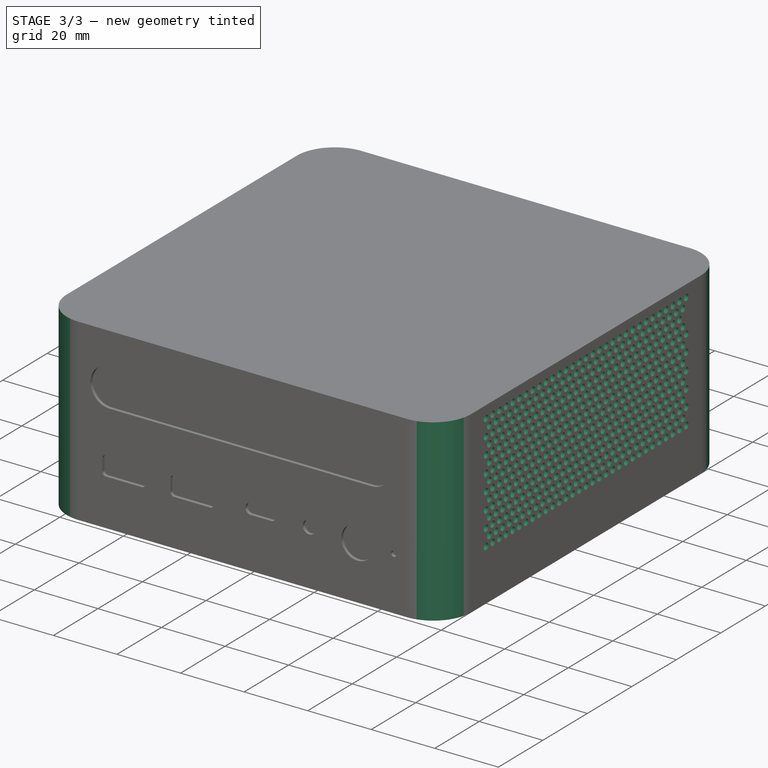
[diagram: stage 3 of 3 — iso view after this stage's code; geometry added in this stage tinted green]
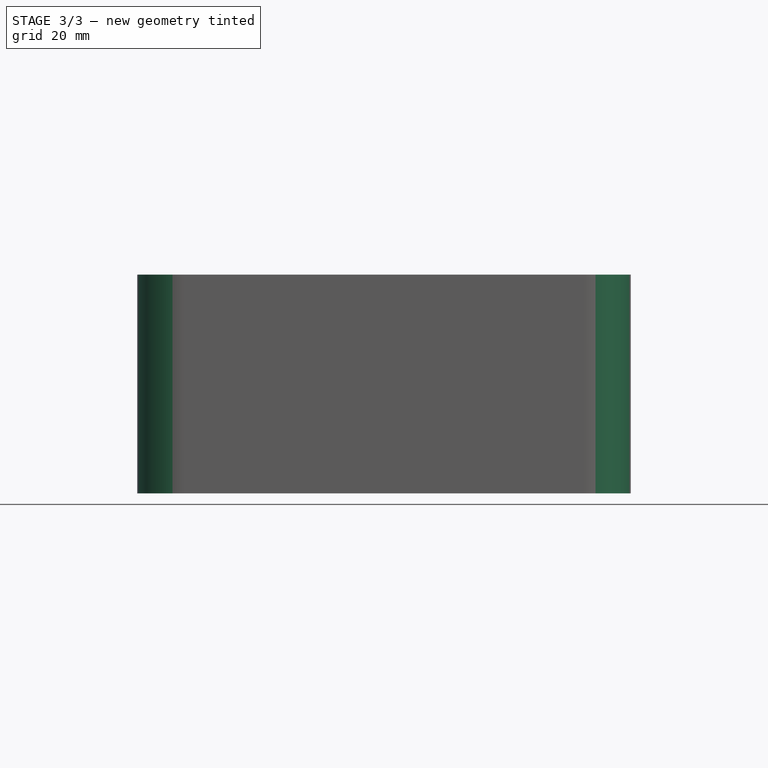
[diagram: stage 3 of 3 — front view after this stage's code; geometry added in this stage tinted green]
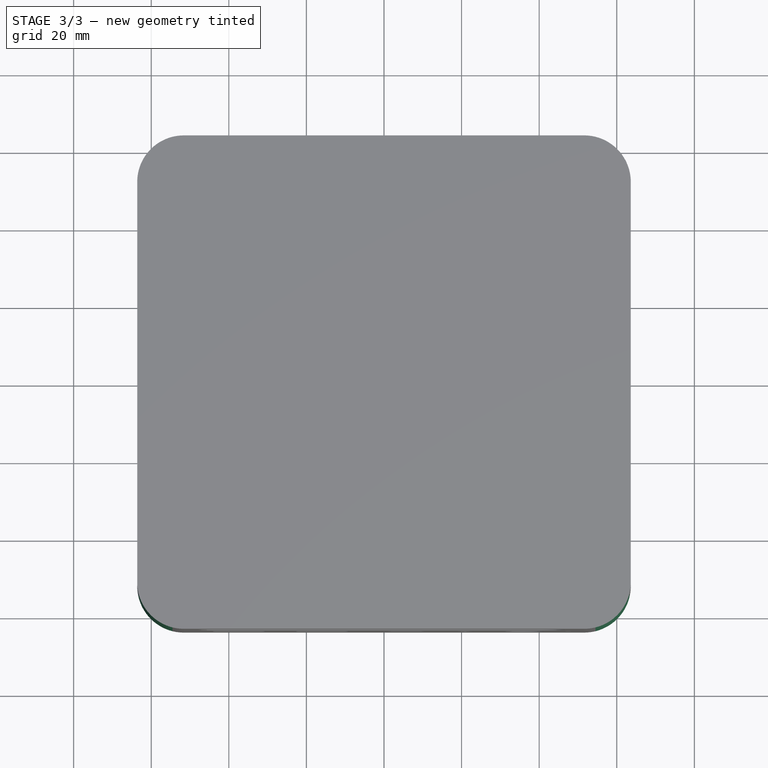
[diagram: stage 3 of 3 — top view after this stage's code; geometry added in this stage tinted green]
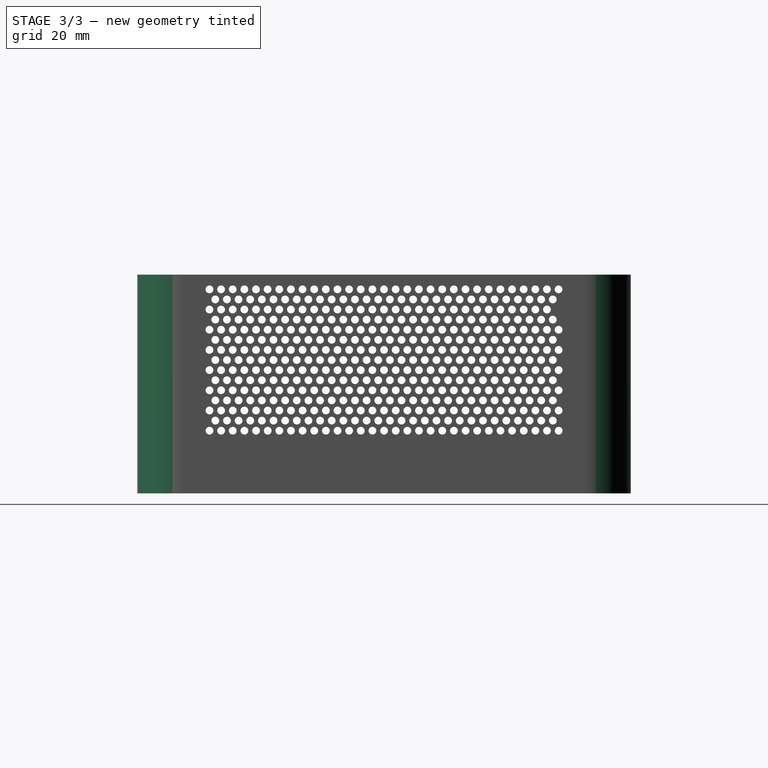
[diagram: stage 3 of 3 — right view after this stage's code; geometry added in this stage tinted green]
FEATURE [PartDesign::Fillet] Fillet
  Base = -> Pocket005 [Edge57,Edge2,Edge5,Edge1]
  BaseFeature = -> Pocket005
  Radius = 12
  Refine = true
  SupportTransform = false
  Suppressed = false
  UseAllEdges = false
FEATURE [Sketcher::SketchObject] Sketch008
  ArcFitTolerance = 1e-06
  AttachmentSupport = -> [Fillet]
  ExternalGeometry = -> [Fillet]
  FullyConstrained = false
  MakeInternals = false
  MapMode = 5
  Placement = pos=(-63.615,0,0) rot=(0.57735,-0.57735,-0.57735;2.0944rad)
  sketch-geometry (468):
    g0: Circle CenterX=0 CenterY=52.6 CenterZ=0 NormalX=0 NormalY=0 NormalZ=1 AngleXU=0 Radius=1
    g1: Circle CenterX=3 CenterY=52.6 CenterZ=0 NormalX=0 NormalY=0 NormalZ=1 AngleXU=0 Radius=1
    g2: Circle CenterX=6 CenterY=52.6 CenterZ=0 NormalX=0 NormalY=0 NormalZ=1 AngleXU=0 Radius=1
    g3: Circle CenterX=9 CenterY=52.6 CenterZ=0 NormalX=0 NormalY=0 NormalZ=1 AngleXU=0 Radius=1
    g4: Circle CenterX=12 CenterY=52.6 CenterZ=0 NormalX=0 NormalY=0 NormalZ=1 AngleXU=0 Radius=1
    g5: Circle CenterX=15 CenterY=52.6 CenterZ=0 NormalX=0 NormalY=0 NormalZ=1 AngleXU=0 Radius=1
    g6: Circle CenterX=18 CenterY=52.6 CenterZ=0 NormalX=0 NormalY=0 NormalZ=1 AngleXU=0 Radius=1
    g7: Circle CenterX=21 CenterY=52.6 CenterZ=0 NormalX=0 NormalY=0 NormalZ=1 AngleXU=0 Radius=1
    g8: Circle CenterX=24 CenterY=52.6 CenterZ=0 NormalX=0 NormalY=0 NormalZ=1 AngleXU=0 Radius=1
    g9: Circle CenterX=27 CenterY=52.6 CenterZ=0 NormalX=0 NormalY=0 NormalZ=1 AngleXU=0 Radius=1
    g10: Circle CenterX=30 CenterY=52.6 CenterZ=0 NormalX=0 NormalY=0 NormalZ=1 AngleXU=0 Radius=1
    g11: Circle CenterX=33 CenterY=52.6 CenterZ=0 NormalX=0 NormalY=0 NormalZ=1 AngleXU=0 Radius=1
    g12: Circle CenterX=36 CenterY=52.6 CenterZ=0 NormalX=0 NormalY=0 NormalZ=1 AngleXU=0 Radius=1
    g13: Circle CenterX=39 CenterY=52.6 CenterZ=0 NormalX=0 NormalY=0 NormalZ=1 AngleXU=0 Radius=1
    g14: Circle CenterX=42 CenterY=52.6 CenterZ=0 NormalX=0 NormalY=0 NormalZ=1 AngleXU=0 Radius=1
    g15: Circle CenterX=45 CenterY=52.6 CenterZ=0 NormalX=0 NormalY=0 NormalZ=1 AngleXU=0 Radius=1
    g16: Circle CenterX=-3 CenterY=52.6 CenterZ=0 NormalX=0 NormalY=0 NormalZ=1 AngleXU=0 Radius=1
    g17: Circle CenterX=-6 CenterY=52.6 CenterZ=0 NormalX=0 NormalY=0 NormalZ=1 AngleXU=0 Radius=1
    g18: Circle CenterX=-9 CenterY=52.6 CenterZ=0 NormalX=0 NormalY=0 NormalZ=1 AngleXU=0 Radius=1
    g19: Circle CenterX=-12 CenterY=52.6 CenterZ=0 NormalX=0 NormalY=0 NormalZ=1 AngleXU=0 Radius=1
    g20: Circle CenterX=-15 CenterY=52.6 CenterZ=0 NormalX=0 NormalY=0 NormalZ=1 AngleXU=0 Radius=1
    g21: Circle CenterX=-18 CenterY=52.6 CenterZ=0 NormalX=0 NormalY=0 NormalZ=1 AngleXU=0 Radius=1
    g22: Circle CenterX=-21 CenterY=52.6 CenterZ=0 NormalX=0 NormalY=0 NormalZ=1 AngleXU=0 Radius=1
    g23: Circle CenterX=-24 CenterY=52.6 CenterZ=0 NormalX=0 NormalY=0 NormalZ=1 AngleXU=0 Radius=1
    g24: Circle CenterX=-27 CenterY=52.6 CenterZ=0 NormalX=0 NormalY=0 NormalZ=1 AngleXU=0 Radius=1
    g25: Circle CenterX=-30 CenterY=52.6 CenterZ=0 NormalX=0 NormalY=0 NormalZ=1 AngleXU=0 Radius=1
    g26: Circle CenterX=-33 CenterY=52.6 CenterZ=0 NormalX=0 NormalY=0 NormalZ=1 AngleXU=0 Radius=1
    g27: Circle CenterX=-36 CenterY=52.6 CenterZ=0 NormalX=0 NormalY=0 NormalZ=1 AngleXU=0 Radius=1
    g28: Circle CenterX=-39 CenterY=52.6 CenterZ=0 NormalX=0 NormalY=0 NormalZ=1 AngleXU=0 Radius=1
    g29: Circle CenterX=-42 CenterY=52.6 CenterZ=0 NormalX=0 NormalY=0 NormalZ=1 AngleXU=0 Radius=1
    g30: Circle CenterX=-45 CenterY=52.6 CenterZ=0 NormalX=0 NormalY=0 NormalZ=1 AngleXU=0 Radius=1
    g31: LineSegment [constr] StartX=-43.5 StartY=54.5491 StartZ=0 EndX=-43.5 EndY=49.4212 EndZ=0
    g32: Circle CenterX=-43.5095 CenterY=49.9964 CenterZ=0 NormalX=0 NormalY=0 NormalZ=1 AngleXU=0 Radius=1
    g33: Circle CenterX=-40.5095 CenterY=49.9964 CenterZ=0 NormalX=0 NormalY=0 NormalZ=1 AngleXU=0 Radius=1
    g34: Circle CenterX=-37.5095 CenterY=49.9964 CenterZ=0 NormalX=0 NormalY=0 NormalZ=1 AngleXU=0 Radius=1
    g35: Circle CenterX=-34.5095 CenterY=49.9964 CenterZ=0 NormalX=0 NormalY=0 NormalZ=1 AngleXU=0 Radius=1
    g36: Circle CenterX=-31.5095 CenterY=49.9964 CenterZ=0 NormalX=0 NormalY=0 NormalZ=1 AngleXU=0 Radius=1
    g37: Circle CenterX=-28.5095 CenterY=49.9964 CenterZ=0 NormalX=0 NormalY=0 NormalZ=1 AngleXU=0 Radius=1
    g38: Circle CenterX=-25.5095 CenterY=49.9964 CenterZ=0 NormalX=0 NormalY=0 NormalZ=1 AngleXU=0 Radius=1
    g39: Circle CenterX=-22.5095 CenterY=49.9964 CenterZ=0 NormalX=0 NormalY=0 NormalZ=1 AngleXU=0 Radius=1
    g40: Circle CenterX=-19.5095 CenterY=49.9964 CenterZ=0 NormalX=0 NormalY=0 NormalZ=1 AngleXU=0 Radius=1
    g41: Circle CenterX=-16.5095 CenterY=49.9964 CenterZ=0 NormalX=0 NormalY=0 NormalZ=1 AngleXU=0 Radius=1
    g42: Circle CenterX=-13.5095 CenterY=49.9964 CenterZ=0 NormalX=0 NormalY=0 NormalZ=1 AngleXU=0 Radius=1
    g43: Circle CenterX=-10.5095 CenterY=49.9964 CenterZ=0 NormalX=0 NormalY=0 NormalZ=1 AngleXU=0 Radius=1
    g44: Circle CenterX=-7.50955 CenterY=49.9964 CenterZ=0 NormalX=0 NormalY=0 NormalZ=1 AngleXU=0 Radius=1
    g45: Circle CenterX=-4.50955 CenterY=49.9964 CenterZ=0 NormalX=0 NormalY=0 NormalZ=1 AngleXU=0 Radius=1
    g46: Circle CenterX=-1.50955 CenterY=49.9964 CenterZ=0 NormalX=0 NormalY=0 NormalZ=1 AngleXU=0 Radius=1
    g47: Circle CenterX=1.49045 CenterY=49.9964 CenterZ=0 NormalX=0 NormalY=0 NormalZ=1 AngleXU=0 Radius=1
    g48: Circle CenterX=4.49045 CenterY=49.9964 CenterZ=0 NormalX=0 NormalY=0 NormalZ=1 AngleXU=0 Radius=1
    g49: Circle CenterX=7.49045 CenterY=49.9964 CenterZ=0 NormalX=0 NormalY=0 NormalZ=1 AngleXU=0 Radius=1
    g50: Circle CenterX=10.4905 CenterY=49.9964 CenterZ=0 NormalX=0 NormalY=0 NormalZ=1 AngleXU=0 Radius=1
    g51: Circle CenterX=13.4905 CenterY=49.9964 CenterZ=0 NormalX=0 NormalY=0 NormalZ=1 AngleXU=0 Radius=1
    g52: Circle CenterX=16.4905 CenterY=49.9964 CenterZ=0 NormalX=0 NormalY=0 NormalZ=1 AngleXU=0 Radius=1
    g53: Circle CenterX=19.4905 CenterY=49.9964 CenterZ=0 NormalX=0 NormalY=0 NormalZ=1 AngleXU=0 Radius=1
    g54: Circle CenterX=22.4905 CenterY=49.9964 CenterZ=0 NormalX=0 NormalY=0 NormalZ=1 AngleXU=0 Radius=1
    g55: Circle CenterX=25.4905 CenterY=49.9964 CenterZ=0 NormalX=0 NormalY=0 NormalZ=1 AngleXU=0 Radius=1
    g56: Circle CenterX=28.4905 CenterY=49.9964 CenterZ=0 NormalX=0 NormalY=0 NormalZ=1 AngleXU=0 Radius=1
    g57: Circle CenterX=31.4905 CenterY=49.9964 CenterZ=0 NormalX=0 NormalY=0 NormalZ=1 AngleXU=0 Radius=1
    g58: Circle CenterX=34.4905 CenterY=49.9964 CenterZ=0 NormalX=0 NormalY=0 NormalZ=1 AngleXU=0 Radius=1
    g59: Circle CenterX=37.4905 CenterY=49.9964 CenterZ=0 NormalX=0 NormalY=0 NormalZ=1 AngleXU=0 Radius=1
    g60: Circle CenterX=40.4905 CenterY=49.9964 CenterZ=0 NormalX=0 NormalY=0 NormalZ=1 AngleXU=0 Radius=1
    g61: Circle CenterX=43.4905 CenterY=49.9964 CenterZ=0 NormalX=0 NormalY=0 NormalZ=1 AngleXU=0 Radius=1
    g62: LineSegment [constr] StartX=-45 StartY=52.6 StartZ=0 EndX=-45 EndY=47.1051 EndZ=0
    g63: Circle CenterX=-45.0028 CenterY=47.3945 CenterZ=0 NormalX=0 NormalY=0 NormalZ=1 AngleXU=0 Radius=1
    g64: Circle CenterX=-0.002814 CenterY=47.3945 CenterZ=0 NormalX=0 NormalY=0 NormalZ=1 AngleXU=0 Radius=1
    g65: Circle CenterX=2.99719 CenterY=47.3945 CenterZ=0 NormalX=0 NormalY=0 NormalZ=1 AngleXU=0 Radius=1
    g66: Circle CenterX=5.99719 CenterY=47.3945 CenterZ=0 NormalX=0 NormalY=0 NormalZ=1 AngleXU=0 Radius=1
    g67: Circle CenterX=8.99719 CenterY=47.3945 CenterZ=0 NormalX=0 NormalY=0 NormalZ=1 AngleXU=0 Radius=1
    g68: Circle CenterX=11.9972 CenterY=47.3945 CenterZ=0 NormalX=0 NormalY=0 NormalZ=1 AngleXU=0 Radius=1
    g69: Circle CenterX=14.9972 CenterY=47.3945 CenterZ=0 NormalX=0 NormalY=0 NormalZ=1 AngleXU=0 Radius=1
    g70: Circle CenterX=17.9972 CenterY=47.3945 CenterZ=0 NormalX=0 NormalY=0 NormalZ=1 AngleXU=0 Radius=1
    g71: Circle CenterX=20.9972 CenterY=47.3945 CenterZ=0 NormalX=0 NormalY=0 NormalZ=1 AngleXU=0 Radius=1
    g72: Circle CenterX=23.9972 CenterY=47.3945 CenterZ=0 NormalX=0 NormalY=0 NormalZ=1 AngleXU=0 Radius=1
    g73: Circle CenterX=26.9972 CenterY=47.3945 CenterZ=0 NormalX=0 NormalY=0 NormalZ=1 AngleXU=0 Radius=1
    g74: Circle CenterX=29.9972 CenterY=47.3945 CenterZ=0 NormalX=0 NormalY=0 NormalZ=1 AngleXU=0 Radius=1
    g75: Circle CenterX=32.9972 CenterY=47.3945 CenterZ=0 NormalX=0 NormalY=0 NormalZ=1 AngleXU=0 Radius=1
    g76: Circle CenterX=35.9972 CenterY=47.3945 CenterZ=0 NormalX=0 NormalY=0 NormalZ=1 AngleXU=0 Radius=1
    g77: Circle CenterX=38.9972 CenterY=47.3945 CenterZ=0 NormalX=0 NormalY=0 NormalZ=1 AngleXU=0 Radius=1
    g78: Circle CenterX=41.9972 CenterY=47.3945 CenterZ=0 NormalX=0 NormalY=0 NormalZ=1 AngleXU=0 Radius=1
    g79: Circle CenterX=44.9972 CenterY=47.3945 CenterZ=0 NormalX=0 NormalY=0 NormalZ=1 AngleXU=0 Radius=1
    g80: Circle CenterX=-3.00281 CenterY=47.3945 CenterZ=0 NormalX=0 NormalY=0 NormalZ=1 AngleXU=0 Radius=1
    g81: Circle CenterX=-6.00281 CenterY=47.3945 CenterZ=0 NormalX=0 NormalY=0 NormalZ=1 AngleXU=0 Radius=1
    g82: Circle CenterX=-9.00281 CenterY=47.3945 CenterZ=0 NormalX=0 NormalY=0 NormalZ=1 AngleXU=0 Radius=1
    g83: Circle CenterX=-12.0028 CenterY=47.3945 CenterZ=0 NormalX=0 NormalY=0 NormalZ=1 AngleXU=0 Radius=1
    g84: Circle CenterX=-15.0028 CenterY=47.3945 CenterZ=0 NormalX=0 NormalY=0 NormalZ=1 AngleXU=0 Radius=1
    g85: Circle CenterX=-18.0028 CenterY=47.3945 CenterZ=0 NormalX=0 NormalY=0 NormalZ=1 AngleXU=0 Radius=1
    g86: Circle CenterX=-21.0028 CenterY=47.3945 CenterZ=0 NormalX=0 NormalY=0 NormalZ=1 AngleXU=0 Radius=1
    g87: Circle CenterX=-24.0028 CenterY=47.3945 CenterZ=0 NormalX=0 NormalY=0 NormalZ=1 AngleXU=0 Radius=1
    g88: Circle CenterX=-27.0028 CenterY=47.3945 CenterZ=0 NormalX=0 NormalY=0 NormalZ=1 AngleXU=0 Radius=1
    g89: Circle CenterX=-30.0028 CenterY=47.3945 CenterZ=0 NormalX=0 NormalY=0 NormalZ=1 AngleXU=0 Radius=1
    g90: Circle CenterX=-33.0028 CenterY=47.3945 CenterZ=0 NormalX=0 NormalY=0 NormalZ=1 AngleXU=0 Radius=1
    g91: Circle CenterX=-36.0028 CenterY=47.3945 CenterZ=0 NormalX=0 NormalY=0 NormalZ=1 AngleXU=0 Radius=1
    g92: Circle CenterX=-39.0028 CenterY=47.3945 CenterZ=0 NormalX=0 NormalY=0 NormalZ=1 AngleXU=0 Radius=1
    g93: Circle CenterX=-42.0028 CenterY=47.3945 CenterZ=0 NormalX=0 NormalY=0 NormalZ=1 AngleXU=0 Radius=1
    g94: Circle CenterX=-45.0028 CenterY=47.3945 CenterZ=0 NormalX=0 NormalY=0 NormalZ=1 AngleXU=0 Radius=1
    g95: LineSegment [constr] StartX=-43.5028 StartY=49.3436 StartZ=0 EndX=-43.5028 EndY=44.2157 EndZ=0
    g96: Circle CenterX=-43.5124 CenterY=44.7909 CenterZ=0 NormalX=0 NormalY=0 NormalZ=1 AngleXU=0 Radius=1
    g97: Circle CenterX=-40.5124 CenterY=44.7909 CenterZ=0 NormalX=0 NormalY=0 NormalZ=1 AngleXU=0 Radius=1
    g98: Circle CenterX=-37.5124 CenterY=44.7909 CenterZ=0 NormalX=0 NormalY=0 NormalZ=1 AngleXU=0 Radius=1
    g99: Circle CenterX=-34.5124 CenterY=44.7909 CenterZ=0 NormalX=0 NormalY=0 NormalZ=1 AngleXU=0 Radius=1
    g100: Circle CenterX=-31.5124 CenterY=44.7909 CenterZ=0 NormalX=0 NormalY=0 NormalZ=1 AngleXU=0 Radius=1
    g101: Circle CenterX=-28.5124 CenterY=44.7909 CenterZ=0 NormalX=0 NormalY=0 NormalZ=1 AngleXU=0 Radius=1
    g102: Circle CenterX=-25.5124 CenterY=44.7909 CenterZ=0 NormalX=0 NormalY=0 NormalZ=1 AngleXU=0 Radius=1
    g103: Circle CenterX=-22.5124 CenterY=44.7909 CenterZ=0 NormalX=0 NormalY=0 NormalZ=1 AngleXU=0 Radius=1
    g104: Circle CenterX=-19.5124 CenterY=44.7909 CenterZ=0 NormalX=0 NormalY=0 NormalZ=1 AngleXU=0 Radius=1
    g105: Circle CenterX=-16.5124 CenterY=44.7909 CenterZ=0 NormalX=0 NormalY=0 NormalZ=1 AngleXU=0 Radius=1
    g106: Circle CenterX=-13.5124 CenterY=44.7909 CenterZ=0 NormalX=0 NormalY=0 NormalZ=1 AngleXU=0 Radius=1
    g107: Circle CenterX=-10.5124 CenterY=44.7909 CenterZ=0 NormalX=0 NormalY=0 NormalZ=1 AngleXU=0 Radius=1
    g108: Circle CenterX=-7.51236 CenterY=44.7909 CenterZ=0 NormalX=0 NormalY=0 NormalZ=1 AngleXU=0 Radius=1
    g109: Circle CenterX=-4.51236 CenterY=44.7909 CenterZ=0 NormalX=0 NormalY=0 NormalZ=1 AngleXU=0 Radius=1
    g110: Circle CenterX=-1.51236 CenterY=44.7909 CenterZ=0 NormalX=0 NormalY=0 NormalZ=1 AngleXU=0 Radius=1
    g111: Circle CenterX=1.48764 CenterY=44.7909 CenterZ=0 NormalX=0 NormalY=0 NormalZ=1 AngleXU=0 Radius=1
    g112: Circle CenterX=4.48764 CenterY=44.7909 CenterZ=0 NormalX=0 NormalY=0 NormalZ=1 AngleXU=0 Radius=1
    g113: Circle CenterX=7.48764 CenterY=44.7909 CenterZ=0 NormalX=0 NormalY=0 NormalZ=1 AngleXU=0 Radius=1
    g114: Circle CenterX=10.4876 CenterY=44.7909 CenterZ=0 NormalX=0 NormalY=0 NormalZ=1 AngleXU=0 Radius=1
    g115: Circle CenterX=13.4876 CenterY=44.7909 CenterZ=0 NormalX=0 NormalY=0 NormalZ=1 AngleXU=0 Radius=1
    g116: Circle CenterX=16.4876 CenterY=44.7909 CenterZ=0 NormalX=0 NormalY=0 NormalZ=1 AngleXU=0 Radius=1
    g117: Circle CenterX=19.4876 CenterY=44.7909 CenterZ=0 NormalX=0 NormalY=0 NormalZ=1 AngleXU=0 Radius=1
    g118: Circle CenterX=22.4876 CenterY=44.7909 CenterZ=0 NormalX=0 NormalY=0 NormalZ=1 AngleXU=0 Radius=1
    g119: Circle CenterX=25.4876 CenterY=44.7909 CenterZ=0 NormalX=0 NormalY=0 NormalZ=1 AngleXU=0 Radius=1
    g120: Circle CenterX=28.4876 CenterY=44.7909 CenterZ=0 NormalX=0 NormalY=0 NormalZ=1 AngleXU=0 Radius=1
    g121: Circle CenterX=31.4876 CenterY=44.7909 CenterZ=0 NormalX=0 NormalY=0 NormalZ=1 AngleXU=0 Radius=1
    g122: Circle CenterX=34.4876 CenterY=44.7909 CenterZ=0 NormalX=0 NormalY=0 NormalZ=1 AngleXU=0 Radius=1
    g123: Circle CenterX=37.4876 CenterY=44.7909 CenterZ=0 NormalX=0 NormalY=0 NormalZ=1 AngleXU=0 Radius=1
    g124: Circle CenterX=40.4876 CenterY=44.7909 CenterZ=0 NormalX=0 NormalY=0 NormalZ=1 AngleXU=0 Radius=1
    g125: Circle CenterX=43.4876 CenterY=44.7909 CenterZ=0 NormalX=0 NormalY=0 NormalZ=1 AngleXU=0 Radius=1
    g126: Circle CenterX=-0.005628 CenterY=42.189 CenterZ=0 NormalX=0 NormalY=0 NormalZ=1 AngleXU=0 Radius=1
    g127: Circle CenterX=2.99437 CenterY=42.189 CenterZ=0 NormalX=0 NormalY=0 NormalZ=1 AngleXU=0 Radius=1
    g128: Circle CenterX=5.99437 CenterY=42.189 CenterZ=0 NormalX=0 NormalY=0 NormalZ=1 AngleXU=0 Radius=1
    g129: Circle CenterX=8.99437 CenterY=42.189 CenterZ=0 NormalX=0 NormalY=0 NormalZ=1 AngleXU=0 Radius=1
    g130: Circle CenterX=11.9944 CenterY=42.189 CenterZ=0 NormalX=0 NormalY=0 NormalZ=1 AngleXU=0 Radius=1
    g131: Circle CenterX=14.9944 CenterY=42.189 CenterZ=0 NormalX=0 NormalY=0 NormalZ=1 AngleXU=0 Radius=1
    g132: Circle CenterX=17.9944 CenterY=42.189 CenterZ=0 NormalX=0 NormalY=0 NormalZ=1 AngleXU=0 Radius=1
    g133: Circle CenterX=20.9944 CenterY=42.189 CenterZ=0 NormalX=0 NormalY=0 NormalZ=1 AngleXU=0 Radius=1
    g134: Circle CenterX=23.9944 CenterY=42.189 CenterZ=0 NormalX=0 NormalY=0 NormalZ=1 AngleXU=0 Radius=1
    g135: Circle CenterX=26.9944 CenterY=42.189 CenterZ=0 NormalX=0 NormalY=0 NormalZ=1 AngleXU=0 Radius=1
    g136: Circle CenterX=29.9944 CenterY=42.189 CenterZ=0 NormalX=0 NormalY=0 NormalZ=1 AngleXU=0 Radius=1
    g137: Circle CenterX=32.9944 CenterY=42.189 CenterZ=0 NormalX=0 NormalY=0 NormalZ=1 AngleXU=0 Radius=1
    g138: Circle CenterX=35.9944 CenterY=42.189 CenterZ=0 NormalX=0 NormalY=0 NormalZ=1 AngleXU=0 Radius=1
    g139: Circle CenterX=38.9944 CenterY=42.189 CenterZ=0 NormalX=0 NormalY=0 NormalZ=1 AngleXU=0 Radius=1
    g140: Circle CenterX=41.9944 CenterY=42.189 CenterZ=0 NormalX=0 NormalY=0 NormalZ=1 AngleXU=0 Radius=1
    g141: Circle CenterX=44.9944 CenterY=42.189 CenterZ=0 NormalX=0 NormalY=0 NormalZ=1 AngleXU=0 Radius=1
    g142: Circle CenterX=-3.00563 CenterY=42.189 CenterZ=0 NormalX=0 NormalY=0 NormalZ=1 AngleXU=0 Radius=1
    g143: Circle CenterX=-6.00563 CenterY=42.189 CenterZ=0 NormalX=0 NormalY=0 NormalZ=1 AngleXU=0 Radius=1
    g144: Circle CenterX=-9.00563 CenterY=42.189 CenterZ=0 NormalX=0 NormalY=0 NormalZ=1 AngleXU=0 Radius=1
    g145: Circle CenterX=-12.0056 CenterY=42.189 CenterZ=0 NormalX=0 NormalY=0 NormalZ=1 AngleXU=0 Radius=1
    g146: Circle CenterX=-15.0056 CenterY=42.189 CenterZ=0 NormalX=0 NormalY=0 NormalZ=1 AngleXU=0 Radius=1
    g147: Circle CenterX=-18.0056 CenterY=42.189 CenterZ=0 NormalX=0 NormalY=0 NormalZ=1 AngleXU=0 Radius=1
    g148: Circle CenterX=-21.0056 CenterY=42.189 CenterZ=0 NormalX=0 NormalY=0 NormalZ=1 AngleXU=0 Radius=1
    g149: Circle CenterX=-24.0056 CenterY=42.189 CenterZ=0 NormalX=0 NormalY=0 NormalZ=1 AngleXU=0 Radius=1
    g150: Circle CenterX=-27.0056 CenterY=42.189 CenterZ=0 NormalX=0 NormalY=0 NormalZ=1 AngleXU=0 Radius=1
    g151: Circle CenterX=-30.0056 CenterY=42.189 CenterZ=0 NormalX=0 NormalY=0 NormalZ=1 AngleXU=0 Radius=1
    g152: Circle CenterX=-33.0056 CenterY=42.189 CenterZ=0 NormalX=0 NormalY=0 NormalZ=1 AngleXU=0 Radius=1
    g153: Circle CenterX=-36.0056 CenterY=42.189 CenterZ=0 NormalX=0 NormalY=0 NormalZ=1 AngleXU=0 Radius=1
    g154: Circle CenterX=-39.0056 CenterY=42.189 CenterZ=0 NormalX=0 NormalY=0 NormalZ=1 AngleXU=0 Radius=1
    g155: Circle CenterX=-42.0056 CenterY=42.189 CenterZ=0 NormalX=0 NormalY=0 NormalZ=1 AngleXU=0 Radius=1
    g156: Circle CenterX=-45.0056 CenterY=42.189 CenterZ=0 NormalX=0 NormalY=0 NormalZ=1 AngleXU=0 Radius=1
    g157: LineSegment [constr] StartX=-43.5056 StartY=44.1381 StartZ=0 EndX=-43.5056 EndY=39.0102 EndZ=0
    g158: Circle CenterX=-43.5152 CenterY=39.5854 CenterZ=0 NormalX=0 NormalY=0 NormalZ=1 AngleXU=0 Radius=1
    g159: Circle CenterX=-40.5152 CenterY=39.5854 CenterZ=0 NormalX=0 NormalY=0 NormalZ=1 AngleXU=0 Radius=1
    g160: Circle CenterX=-37.5152 CenterY=39.5854 CenterZ=0 NormalX=0 NormalY=0 NormalZ=1 AngleXU=0 Radius=1
    g161: Circle CenterX=-34.5152 CenterY=39.5854 CenterZ=0 NormalX=0 NormalY=0 NormalZ=1 AngleXU=0 Radius=1
    g162: Circle CenterX=-31.5152 CenterY=39.5854 CenterZ=0 NormalX=0 NormalY=0 NormalZ=1 AngleXU=0 Radius=1
    g163: Circle CenterX=-28.5152 CenterY=39.5854 CenterZ=0 NormalX=0 NormalY=0 NormalZ=1 AngleXU=0 Radius=1
    g164: Circle CenterX=-25.5152 CenterY=39.5854 CenterZ=0 NormalX=0 NormalY=0 NormalZ=1 AngleXU=0 Radius=1
    g165: Circle CenterX=-22.5152 CenterY=39.5854 CenterZ=0 NormalX=0 NormalY=0 NormalZ=1 AngleXU=0 Radius=1
    g166: Circle CenterX=-19.5152 CenterY=39.5854 CenterZ=0 NormalX=0 NormalY=0 NormalZ=1 AngleXU=0 Radius=1
    g167: Circle CenterX=-16.5152 CenterY=39.5854 CenterZ=0 NormalX=0 NormalY=0 NormalZ=1 AngleXU=0 Radius=1
    g168: Circle CenterX=-13.5152 CenterY=39.5854 CenterZ=0 NormalX=0 NormalY=0 NormalZ=1 AngleXU=0 Radius=1
    g169: Circle CenterX=-10.5152 CenterY=39.5854 CenterZ=0 NormalX=0 NormalY=0 NormalZ=1 AngleXU=0 Radius=1
    g170: Circle CenterX=-7.51518 CenterY=39.5854 CenterZ=0 NormalX=0 NormalY=0 NormalZ=1 AngleXU=0 Radius=1
    g171: Circle CenterX=-4.51518 CenterY=39.5854 CenterZ=0 NormalX=0 NormalY=0 NormalZ=1 AngleXU=0 Radius=1
    g172: Circle CenterX=-1.51517 CenterY=39.5854 CenterZ=0 NormalX=0 NormalY=0 NormalZ=1 AngleXU=0 Radius=1
    g173: Circle CenterX=1.48483 CenterY=39.5854 CenterZ=0 NormalX=0 NormalY=0 NormalZ=1 AngleXU=0 Radius=1
    g174: Circle CenterX=4.48482 CenterY=39.5854 CenterZ=0 NormalX=0 NormalY=0 NormalZ=1 AngleXU=0 Radius=1
    g175: Circle CenterX=7.48482 CenterY=39.5854 CenterZ=0 NormalX=0 NormalY=0 NormalZ=1 AngleXU=0 Radius=1
    g176: Circle CenterX=10.4848 CenterY=39.5854 CenterZ=0 NormalX=0 NormalY=0 NormalZ=1 AngleXU=0 Radius=1
    g177: Circle CenterX=13.4848 CenterY=39.5854 CenterZ=0 NormalX=0 NormalY=0 NormalZ=1 AngleXU=0 Radius=1
    g178: Circle CenterX=16.4848 CenterY=39.5854 CenterZ=0 NormalX=0 NormalY=0 NormalZ=1 AngleXU=0 Radius=1
    g179: Circle CenterX=19.4848 CenterY=39.5854 CenterZ=0 NormalX=0 NormalY=0 NormalZ=1 AngleXU=0 Radius=1
    g180: Circle CenterX=22.4848 CenterY=39.5854 CenterZ=0 NormalX=0 NormalY=0 NormalZ=1 AngleXU=0 Radius=1
    g181: Circle CenterX=25.4848 CenterY=39.5854 CenterZ=0 NormalX=0 NormalY=0 NormalZ=1 AngleXU=0 Radius=1
    g182: Circle CenterX=28.4848 CenterY=39.5854 CenterZ=0 NormalX=0 NormalY=0 NormalZ=1 AngleXU=0 Radius=1
    g183: Circle CenterX=31.4848 CenterY=39.5854 CenterZ=0 NormalX=0 NormalY=0 NormalZ=1 AngleXU=0 Radius=1
    g184: Circle CenterX=34.4848 CenterY=39.5854 CenterZ=0 NormalX=0 NormalY=0 NormalZ=1 AngleXU=0 Radius=1
    g185: Circle CenterX=37.4848 CenterY=39.5854 CenterZ=0 NormalX=0 NormalY=0 NormalZ=1 AngleXU=0 Radius=1
    g186: Circle CenterX=40.4848 CenterY=39.5854 CenterZ=0 NormalX=0 NormalY=0 NormalZ=1 AngleXU=0 Radius=1
    g187: Circle CenterX=43.4848 CenterY=39.5854 CenterZ=0 NormalX=0 NormalY=0 NormalZ=1 AngleXU=0 Radius=1
    g188: Circle CenterX=-0.008442 CenterY=36.9834 CenterZ=0 NormalX=0 NormalY=0 NormalZ=1 AngleXU=0 Radius=1
    g189: Circle CenterX=2.99156 CenterY=36.9834 CenterZ=0 NormalX=0 NormalY=0 NormalZ=1 AngleXU=0 Radius=1
    g190: Circle CenterX=5.99156 CenterY=36.9834 CenterZ=0 NormalX=0 NormalY=0 NormalZ=1 AngleXU=0 Radius=1
    g191: Circle CenterX=8.99156 CenterY=36.9834 CenterZ=0 NormalX=0 NormalY=0 NormalZ=1 AngleXU=0 Radius=1
    g192: Circle CenterX=11.9916 CenterY=36.9834 CenterZ=0 NormalX=0 NormalY=0 NormalZ=1 AngleXU=0 Radius=1
    g193: Circle CenterX=14.9916 CenterY=36.9834 CenterZ=0 NormalX=0 NormalY=0 NormalZ=1 AngleXU=0 Radius=1
    g194: Circle CenterX=17.9916 CenterY=36.9834 CenterZ=0 NormalX=0 NormalY=0 NormalZ=1 AngleXU=0 Radius=1
    g195: Circle CenterX=20.9916 CenterY=36.9834 CenterZ=0 NormalX=0 NormalY=0 NormalZ=1 AngleXU=0 Radius=1
    g196: Circle CenterX=23.9916 CenterY=36.9834 CenterZ=0 NormalX=0 NormalY=0 NormalZ=1 AngleXU=0 Radius=1
    g197: Circle CenterX=26.9916 CenterY=36.9834 CenterZ=0 NormalX=0 NormalY=0 NormalZ=1 AngleXU=0 Radius=1
    g198: Circle CenterX=29.9916 CenterY=36.9834 CenterZ=0 NormalX=0 NormalY=0 NormalZ=1 AngleXU=0 Radius=1
    g199: Circle CenterX=32.9916 CenterY=36.9834 CenterZ=0 NormalX=0 NormalY=0 NormalZ=1 AngleXU=0 Radius=1
    g200: Circle CenterX=35.9916 CenterY=36.9834 CenterZ=0 NormalX=0 NormalY=0 NormalZ=1 AngleXU=0 Radius=1
    g201: Circle CenterX=38.9916 CenterY=36.9834 CenterZ=0 NormalX=0 NormalY=0 NormalZ=1 AngleXU=0 Radius=1
    g202: Circle CenterX=41.9916 CenterY=36.9834 CenterZ=0 NormalX=0 NormalY=0 NormalZ=1 AngleXU=0 Radius=1
    g203: Circle CenterX=44.9916 CenterY=36.9834 CenterZ=0 NormalX=0 NormalY=0 NormalZ=1 AngleXU=0 Radius=1
    g204: Circle CenterX=-3.00844 CenterY=36.9834 CenterZ=0 NormalX=0 NormalY=0 NormalZ=1 AngleXU=0 Radius=1
    g205: Circle CenterX=-6.00844 CenterY=36.9834 CenterZ=0 NormalX=0 NormalY=0 NormalZ=1 AngleXU=0 Radius=1
    g206: Circle CenterX=-9.00844 CenterY=36.9834 CenterZ=0 NormalX=0 NormalY=0 NormalZ=1 AngleXU=0 Radius=1
    g207: Circle CenterX=-12.0084 CenterY=36.9834 CenterZ=0 NormalX=0 NormalY=0 NormalZ=1 AngleXU=0 Radius=1
    g208: Circle CenterX=-15.0084 CenterY=36.9834 CenterZ=0 NormalX=0 NormalY=0 NormalZ=1 AngleXU=0 Radius=1
    g209: Circle CenterX=-18.0084 CenterY=36.9834 CenterZ=0 NormalX=0 NormalY=0 NormalZ=1 AngleXU=0 Radius=1
    g210: Circle CenterX=-21.0084 CenterY=36.9834 CenterZ=0 NormalX=0 NormalY=0 NormalZ=1 AngleXU=0 Radius=1
    g211: Circle CenterX=-24.0084 CenterY=36.9834 CenterZ=0 NormalX=0 NormalY=0 NormalZ=1 AngleXU=0 Radius=1
    g212: Circle CenterX=-27.0084 CenterY=36.9834 CenterZ=0 NormalX=0 NormalY=0 NormalZ=1 AngleXU=0 Radius=1
    g213: Circle CenterX=-30.0084 CenterY=36.9834 CenterZ=0 NormalX=0 NormalY=0 NormalZ=1 AngleXU=0 Radius=1
    g214: Circle CenterX=-33.0084 CenterY=36.9834 CenterZ=0 NormalX=0 NormalY=0 NormalZ=1 AngleXU=0 Radius=1
    g215: Circle CenterX=-36.0084 CenterY=36.9834 CenterZ=0 NormalX=0 NormalY=0 NormalZ=1 AngleXU=0 Radius=1
    g216: Circle CenterX=-39.0084 CenterY=36.9834 CenterZ=0 NormalX=0 NormalY=0 NormalZ=1 AngleXU=0 Radius=1
    g217: Circle CenterX=-42.0084 CenterY=36.9834 CenterZ=0 NormalX=0 NormalY=0 NormalZ=1 AngleXU=0 Radius=1
    g218: Circle CenterX=-45.0084 CenterY=36.9834 CenterZ=0 NormalX=0 NormalY=0 NormalZ=1 AngleXU=0 Radius=1
    g219: LineSegment [constr] StartX=-43.5084 StartY=38.9326 StartZ=0 EndX=-43.5084 EndY=33.8046 EndZ=0
    g220: Circle CenterX=-43.518 CenterY=34.3799 CenterZ=0 NormalX=0 NormalY=0 NormalZ=1 AngleXU=0 Radius=1
    g221: Circle CenterX=-40.518 CenterY=34.3799 CenterZ=0 NormalX=0 NormalY=0 NormalZ=1 AngleXU=0 Radius=1
    g222: Circle CenterX=-37.518 CenterY=34.3799 CenterZ=0 NormalX=0 NormalY=0 NormalZ=1 AngleXU=0 Radius=1
    g223: Circle CenterX=-34.518 CenterY=34.3799 CenterZ=0 NormalX=0 NormalY=0 NormalZ=1 AngleXU=0 Radius=1
    g224: Circle CenterX=-31.518 CenterY=34.3799 CenterZ=0 NormalX=0 NormalY=0 NormalZ=1 AngleXU=0 Radius=1
    g225: Circle CenterX=-28.518 CenterY=34.3799 CenterZ=0 NormalX=0 NormalY=0 NormalZ=1 AngleXU=0 Radius=1
    g226: Circle CenterX=-25.518 CenterY=34.3799 CenterZ=0 NormalX=0 NormalY=0 NormalZ=1 AngleXU=0 Radius=1
    g227: Circle CenterX=-22.518 CenterY=34.3799 CenterZ=0 NormalX=0 NormalY=0 NormalZ=1 AngleXU=0 Radius=1
    g228: Circle CenterX=-19.518 CenterY=34.3799 CenterZ=0 NormalX=0 NormalY=0 NormalZ=1 AngleXU=0 Radius=1
    g229: Circle CenterX=-16.518 CenterY=34.3799 CenterZ=0 NormalX=0 NormalY=0 NormalZ=1 AngleXU=0 Radius=1
    g230: Circle CenterX=-13.518 CenterY=34.3799 CenterZ=0 NormalX=0 NormalY=0 NormalZ=1 AngleXU=0 Radius=1
    g231: Circle CenterX=-10.518 CenterY=34.3799 CenterZ=0 NormalX=0 NormalY=0 NormalZ=1 AngleXU=0 Radius=1
    g232: Circle CenterX=-7.51799 CenterY=34.3799 CenterZ=0 NormalX=0 NormalY=0 NormalZ=1 AngleXU=0 Radius=1
    g233: Circle CenterX=-4.51799 CenterY=34.3799 CenterZ=0 NormalX=0 NormalY=0 NormalZ=1 AngleXU=0 Radius=1
    g234: Circle CenterX=-1.51799 CenterY=34.3799 CenterZ=0 NormalX=0 NormalY=0 NormalZ=1 AngleXU=0 Radius=1
    g235: Circle CenterX=1.48201 CenterY=34.3799 CenterZ=0 NormalX=0 NormalY=0 NormalZ=1 AngleXU=0 Radius=1
    g236: Circle CenterX=4.48201 CenterY=34.3799 CenterZ=0 NormalX=0 NormalY=0 NormalZ=1 AngleXU=0 Radius=1
    g237: Circle CenterX=7.48201 CenterY=34.3799 CenterZ=0 NormalX=0 NormalY=0 NormalZ=1 AngleXU=0 Radius=1
    g238: Circle CenterX=10.482 CenterY=34.3799 CenterZ=0 NormalX=0 NormalY=0 NormalZ=1 AngleXU=0 Radius=1
    g239: Circle CenterX=13.482 CenterY=34.3799 CenterZ=0 NormalX=0 NormalY=0 NormalZ=1 AngleXU=0 Radius=1
    g240: Circle CenterX=16.482 CenterY=34.3799 CenterZ=0 NormalX=0 NormalY=0 NormalZ=1 AngleXU=0 Radius=1
    g241: Circle CenterX=19.482 CenterY=34.3799 CenterZ=0 NormalX=0 NormalY=0 NormalZ=1 AngleXU=0 Radius=1
    g242: Circle CenterX=22.482 CenterY=34.3799 CenterZ=0 NormalX=0 NormalY=0 NormalZ=1 AngleXU=0 Radius=1
    g243: Circle CenterX=25.482 CenterY=34.3799 CenterZ=0 NormalX=0 NormalY=0 NormalZ=1 AngleXU=0 Radius=1
    g244: Circle CenterX=28.482 CenterY=34.3799 CenterZ=0 NormalX=0 NormalY=0 NormalZ=1 AngleXU=0 Radius=1
    g245: Circle CenterX=31.482 CenterY=34.3799 CenterZ=0 NormalX=0 NormalY=0 NormalZ=1 AngleXU=0 Radius=1
    g246: Circle CenterX=34.482 CenterY=34.3799 CenterZ=0 NormalX=0 NormalY=0 NormalZ=1 AngleXU=0 Radius=1
    g247: Circle CenterX=37.482 CenterY=34.3799 CenterZ=0 NormalX=0 NormalY=0 NormalZ=1 AngleXU=0 Radius=1
    g248: Circle CenterX=40.482 CenterY=34.3799 CenterZ=0 NormalX=0 NormalY=0 NormalZ=1 AngleXU=0 Radius=1
    g249: Circle CenterX=43.482 CenterY=34.3799 CenterZ=0 NormalX=0 NormalY=0 NormalZ=1 AngleXU=0 Radius=1
    g250: Circle CenterX=-0.011256 CenterY=31.7779 CenterZ=0 NormalX=0 NormalY=0 NormalZ=1 AngleXU=0 Radius=1
    g251: Circle CenterX=2.98874 CenterY=31.7779 CenterZ=0 NormalX=0 NormalY=0 NormalZ=1 AngleXU=0 Radius=1
    g252: Circle CenterX=5.98874 CenterY=31.7779 CenterZ=0 NormalX=0 NormalY=0 NormalZ=1 AngleXU=0 Radius=1
    g253: Circle CenterX=8.98874 CenterY=31.7779 CenterZ=0 NormalX=0 NormalY=0 NormalZ=1 AngleXU=0 Radius=1
    g254: Circle CenterX=11.9887 CenterY=31.7779 CenterZ=0 NormalX=0 NormalY=0 NormalZ=1 AngleXU=0 Radius=1
    g255: Circle CenterX=14.9887 CenterY=31.7779 CenterZ=0 NormalX=0 NormalY=0 NormalZ=1 AngleXU=0 Radius=1
    g256: Circle CenterX=17.9887 CenterY=31.7779 CenterZ=0 NormalX=0 NormalY=0 NormalZ=1 AngleXU=0 Radius=1
    g257: Circle CenterX=20.9887 CenterY=31.7779 CenterZ=0 NormalX=0 NormalY=0 NormalZ=1 AngleXU=0 Radius=1
    g258: Circle CenterX=23.9887 CenterY=31.7779 CenterZ=0 NormalX=0 NormalY=0 NormalZ=1 AngleXU=0 Radius=1
    g259: Circle CenterX=26.9887 CenterY=31.7779 CenterZ=0 NormalX=0 NormalY=0 NormalZ=1 AngleXU=0 Radius=1
    g260: Circle CenterX=29.9887 CenterY=31.7779 CenterZ=0 NormalX=0 NormalY=0 NormalZ=1 AngleXU=0 Radius=1
    g261: Circle CenterX=32.9887 CenterY=31.7779 CenterZ=0 NormalX=0 NormalY=0 NormalZ=1 AngleXU=0 Radius=1
    g262: Circle CenterX=35.9887 CenterY=31.7779 CenterZ=0 NormalX=0 NormalY=0 NormalZ=1 AngleXU=0 Radius=1
    g263: Circle CenterX=38.9887 CenterY=31.7779 CenterZ=0 NormalX=0 NormalY=0 NormalZ=1 AngleXU=0 Radius=1
    g264: Circle CenterX=41.9887 CenterY=31.7779 CenterZ=0 NormalX=0 NormalY=0 NormalZ=1 AngleXU=0 Radius=1
    g265: Circle CenterX=44.9887 CenterY=31.7779 CenterZ=0 NormalX=0 NormalY=0 NormalZ=1 AngleXU=0 Radius=1
    g266: Circle CenterX=-3.01126 CenterY=31.7779 CenterZ=0 NormalX=0 NormalY=0 NormalZ=1 AngleXU=0 Radius=1
    g267: Circle CenterX=-6.01126 CenterY=31.7779 CenterZ=0 NormalX=0 NormalY=0 NormalZ=1 AngleXU=0 Radius=1
    g268: Circle CenterX=-9.01126 CenterY=31.7779 CenterZ=0 NormalX=0 NormalY=0 NormalZ=1 AngleXU=0 Radius=1
    g269: Circle CenterX=-12.0113 CenterY=31.7779 CenterZ=0 NormalX=0 NormalY=0 NormalZ=1 AngleXU=0 Radius=1
    g270: Circle CenterX=-15.0113 CenterY=31.7779 CenterZ=0 NormalX=0 NormalY=0 NormalZ=1 AngleXU=0 Radius=1
    g271: Circle CenterX=-18.0113 CenterY=31.7779 CenterZ=0 NormalX=0 NormalY=0 NormalZ=1 AngleXU=0 Radius=1
    g272: Circle CenterX=-21.0113 CenterY=31.7779 CenterZ=0 NormalX=0 NormalY=0 NormalZ=1 AngleXU=0 Radius=1
    g273: Circle CenterX=-24.0113 CenterY=31.7779 CenterZ=0 NormalX=0 NormalY=0 NormalZ=1 AngleXU=0 Radius=1
    g274: Circle CenterX=-27.0113 CenterY=31.7779 CenterZ=0 NormalX=0 NormalY=0 NormalZ=1 AngleXU=0 Radius=1
    g275: Circle CenterX=-30.0113 CenterY=31.7779 CenterZ=0 NormalX=0 NormalY=0 NormalZ=1 AngleXU=0 Radius=1
    g276: Circle CenterX=-33.0113 CenterY=31.7779 CenterZ=0 NormalX=0 NormalY=0 NormalZ=1 AngleXU=0 Radius=1
    g277: Circle CenterX=-36.0113 CenterY=31.7779 CenterZ=0 NormalX=0 NormalY=0 NormalZ=1 AngleXU=0 Radius=1
    g278: Circle CenterX=-39.0113 CenterY=31.7779 CenterZ=0 NormalX=0 NormalY=0 NormalZ=1 AngleXU=0 Radius=1
    g279: Circle CenterX=-42.0113 CenterY=31.7779 CenterZ=0 NormalX=0 NormalY=0 NormalZ=1 AngleXU=0 Radius=1
    g280: Circle CenterX=-45.0113 CenterY=31.7779 CenterZ=0 NormalX=0 NormalY=0 NormalZ=1 AngleXU=0 Radius=1
    g281: LineSegment [constr] StartX=-43.5113 StartY=33.727 StartZ=0 EndX=-43.5113 EndY=28.5991 EndZ=0
    g282: Circle CenterX=-43.5208 CenterY=29.1744 CenterZ=0 NormalX=0 NormalY=0 NormalZ=1 AngleXU=0 Radius=1
    g283: Circle CenterX=-40.5208 CenterY=29.1744 CenterZ=0 NormalX=0 NormalY=0 NormalZ=1 AngleXU=0 Radius=1
    g284: Circle CenterX=-37.5208 CenterY=29.1744 CenterZ=0 NormalX=0 NormalY=0 NormalZ=1 AngleXU=0 Radius=1
    g285: Circle CenterX=-34.5208 CenterY=29.1744 CenterZ=0 NormalX=0 NormalY=0 NormalZ=1 AngleXU=0 Radius=1
    g286: Circle CenterX=-31.5208 CenterY=29.1744 CenterZ=0 NormalX=0 NormalY=0 NormalZ=1 AngleXU=0 Radius=1
    g287: Circle CenterX=-28.5208 CenterY=29.1744 CenterZ=0 NormalX=0 NormalY=0 NormalZ=1 AngleXU=0 Radius=1
    g288: Circle CenterX=-25.5208 CenterY=29.1744 CenterZ=0 NormalX=0 NormalY=0 NormalZ=1 AngleXU=0 Radius=1
    g289: Circle CenterX=-22.5208 CenterY=29.1744 CenterZ=0 NormalX=0 NormalY=0 NormalZ=1 AngleXU=0 Radius=1
    g290: Circle CenterX=-19.5208 CenterY=29.1744 CenterZ=0 NormalX=0 NormalY=0 NormalZ=1 AngleXU=0 Radius=1
    g291: Circle CenterX=-16.5208 CenterY=29.1744 CenterZ=0 NormalX=0 NormalY=0 NormalZ=1 AngleXU=0 Radius=1
    g292: Circle CenterX=-13.5208 CenterY=29.1744 CenterZ=0 NormalX=0 NormalY=0 NormalZ=1 AngleXU=0 Radius=1
    g293: Circle CenterX=-10.5208 CenterY=29.1744 CenterZ=0 NormalX=0 NormalY=0 NormalZ=1 AngleXU=0 Radius=1
    g294: Circle CenterX=-7.5208 CenterY=29.1744 CenterZ=0 NormalX=0 NormalY=0 NormalZ=1 AngleXU=0 Radius=1
    g295: Circle CenterX=-4.5208 CenterY=29.1744 CenterZ=0 NormalX=0 NormalY=0 NormalZ=1 AngleXU=0 Radius=1
    g296: Circle CenterX=-1.5208 CenterY=29.1744 CenterZ=0 NormalX=0 NormalY=0 NormalZ=1 AngleXU=0 Radius=1
    g297: Circle CenterX=1.4792 CenterY=29.1744 CenterZ=0 NormalX=0 NormalY=0 NormalZ=1 AngleXU=0 Radius=1
    g298: Circle CenterX=4.4792 CenterY=29.1744 CenterZ=0 NormalX=0 NormalY=0 NormalZ=1 AngleXU=0 Radius=1
    g299: Circle CenterX=7.4792 CenterY=29.1744 CenterZ=0 NormalX=0 NormalY=0 NormalZ=1 AngleXU=0 Radius=1
    g300: Circle CenterX=10.4792 CenterY=29.1744 CenterZ=0 NormalX=0 NormalY=0 NormalZ=1 AngleXU=0 Radius=1
    g301: Circle CenterX=13.4792 CenterY=29.1744 CenterZ=0 NormalX=0 NormalY=0 NormalZ=1 AngleXU=0 Radius=1
    g302: Circle CenterX=16.4792 CenterY=29.1744 CenterZ=0 NormalX=0 NormalY=0 NormalZ=1 AngleXU=0 Radius=1
    g303: Circle CenterX=19.4792 CenterY=29.1744 CenterZ=0 NormalX=0 NormalY=0 NormalZ=1 AngleXU=0 Radius=1
    g304: Circle CenterX=22.4792 CenterY=29.1744 CenterZ=0 NormalX=0 NormalY=0 NormalZ=1 AngleXU=0 Radius=1
    g305: Circle CenterX=25.4792 CenterY=29.1744 CenterZ=0 NormalX=0 NormalY=0 NormalZ=1 AngleXU=0 Radius=1
    g306: Circle CenterX=28.4792 CenterY=29.1744 CenterZ=0 NormalX=0 NormalY=0 NormalZ=1 AngleXU=0 Radius=1
    g307: Circle CenterX=31.4792 CenterY=29.1744 CenterZ=0 NormalX=0 NormalY=0 NormalZ=1 AngleXU=0 Radius=1
    g308: Circle CenterX=34.4792 CenterY=29.1744 CenterZ=0 NormalX=0 NormalY=0 NormalZ=1 AngleXU=0 Radius=1
    g309: Circle CenterX=37.4792 CenterY=29.1744 CenterZ=0 NormalX=0 NormalY=0 NormalZ=1 AngleXU=0 Radius=1
    g310: Circle CenterX=40.4792 CenterY=29.1744 CenterZ=0 NormalX=0 NormalY=0 NormalZ=1 AngleXU=0 Radius=1
    g311: Circle CenterX=43.4792 CenterY=29.1744 CenterZ=0 NormalX=0 NormalY=0 NormalZ=1 AngleXU=0 Radius=1
    g312: Circle CenterX=-0.01407 CenterY=26.5724 CenterZ=0 NormalX=0 NormalY=0 NormalZ=1 AngleXU=0 Radius=1
    g313: Circle CenterX=2.98593 CenterY=26.5724 CenterZ=0 NormalX=0 NormalY=0 NormalZ=1 AngleXU=0 Radius=1
    g314: Circle CenterX=5.98593 CenterY=26.5724 CenterZ=0 NormalX=0 NormalY=0 NormalZ=1 AngleXU=0 Radius=1
    g315: Circle CenterX=8.98593 CenterY=26.5724 CenterZ=0 NormalX=0 NormalY=0 NormalZ=1 AngleXU=0 Radius=1
    g316: Circle CenterX=11.9859 CenterY=26.5724 CenterZ=0 NormalX=0 NormalY=0 NormalZ=1 AngleXU=0 Radius=1
    g317: Circle CenterX=14.9859 CenterY=26.5724 CenterZ=0 NormalX=0 NormalY=0 NormalZ=1 AngleXU=0 Radius=1
    g318: Circle CenterX=17.9859 CenterY=26.5724 CenterZ=0 NormalX=0 NormalY=0 NormalZ=1 AngleXU=0 Radius=1
    g319: Circle CenterX=20.9859 CenterY=26.5724 CenterZ=0 NormalX=0 NormalY=0 NormalZ=1 AngleXU=0 Radius=1
    g320: Circle CenterX=23.9859 CenterY=26.5724 CenterZ=0 NormalX=0 NormalY=0 NormalZ=1 AngleXU=0 Radius=1
    g321: Circle CenterX=26.9859 CenterY=26.5724 CenterZ=0 NormalX=0 NormalY=0 NormalZ=1 AngleXU=0 Radius=1
    g322: Circle CenterX=29.9859 CenterY=26.5724 CenterZ=0 NormalX=0 NormalY=0 NormalZ=1 AngleXU=0 Radius=1
    g323: Circle CenterX=32.9859 CenterY=26.5724 CenterZ=0 NormalX=0 NormalY=0 NormalZ=1 AngleXU=0 Radius=1
    g324: Circle CenterX=35.9859 CenterY=26.5724 CenterZ=0 NormalX=0 NormalY=0 NormalZ=1 AngleXU=0 Radius=1
    g325: Circle CenterX=38.9859 CenterY=26.5724 CenterZ=0 NormalX=0 NormalY=0 NormalZ=1 AngleXU=0 Radius=1
    g326: Circle CenterX=41.9859 CenterY=26.5724 CenterZ=0 NormalX=0 NormalY=0 NormalZ=1 AngleXU=0 Radius=1
    g327: Circle CenterX=44.9859 CenterY=26.5724 CenterZ=0 NormalX=0 NormalY=0 NormalZ=1 AngleXU=0 Radius=1
    g328: Circle CenterX=-3.01407 CenterY=26.5724 CenterZ=0 NormalX=0 NormalY=0 NormalZ=1 AngleXU=0 Radius=1
    g329: Circle CenterX=-6.01407 CenterY=26.5724 CenterZ=0 NormalX=0 NormalY=0 NormalZ=1 AngleXU=0 Radius=1
    g330: Circle CenterX=-9.01407 CenterY=26.5724 CenterZ=0 NormalX=0 NormalY=0 NormalZ=1 AngleXU=0 Radius=1
    g331: Circle CenterX=-12.0141 CenterY=26.5724 CenterZ=0 NormalX=0 NormalY=0 NormalZ=1 AngleXU=0 Radius=1
    g332: Circle CenterX=-15.0141 CenterY=26.5724 CenterZ=0 NormalX=0 NormalY=0 NormalZ=1 AngleXU=0 Radius=1
    g333: Circle CenterX=-18.0141 CenterY=26.5724 CenterZ=0 NormalX=0 NormalY=0 NormalZ=1 AngleXU=0 Radius=1
    g334: Circle CenterX=-21.0141 CenterY=26.5724 CenterZ=0 NormalX=0 NormalY=0 NormalZ=1 AngleXU=0 Radius=1
    g335: Circle CenterX=-24.0141 CenterY=26.5724 CenterZ=0 NormalX=0 NormalY=0 NormalZ=1 AngleXU=0 Radius=1
    g336: Circle CenterX=-27.0141 CenterY=26.5724 CenterZ=0 NormalX=0 NormalY=0 NormalZ=1 AngleXU=0 Radius=1
    g337: Circle CenterX=-30.0141 CenterY=26.5724 CenterZ=0 NormalX=0 NormalY=0 NormalZ=1 AngleXU=0 Radius=1
    g338: Circle CenterX=-33.0141 CenterY=26.5724 CenterZ=0 NormalX=0 NormalY=0 NormalZ=1 AngleXU=0 Radius=1
    g339: Circle CenterX=-36.0141 CenterY=26.5724 CenterZ=0 NormalX=0 NormalY=0 NormalZ=1 AngleXU=0 Radius=1
    g340: Circle CenterX=-39.0141 CenterY=26.5724 CenterZ=0 NormalX=0 NormalY=0 NormalZ=1 AngleXU=0 Radius=1
    g341: Circle CenterX=-42.0141 CenterY=26.5724 CenterZ=0 NormalX=0 NormalY=0 NormalZ=1 AngleXU=0 Radius=1
    g342: Circle CenterX=-45.0141 CenterY=26.5724 CenterZ=0 NormalX=0 NormalY=0 NormalZ=1 AngleXU=0 Radius=1
    g343: LineSegment [constr] StartX=-43.5141 StartY=28.5215 StartZ=0 EndX=-43.5141 EndY=23.3936 EndZ=0
    g344: Circle CenterX=-43.5236 CenterY=23.9688 CenterZ=0 NormalX=0 NormalY=0 NormalZ=1 AngleXU=0 Radius=1
    g345: Circle CenterX=-40.5236 CenterY=23.9688 CenterZ=0 NormalX=0 NormalY=0 NormalZ=1 AngleXU=0 Radius=1
    g346: Circle CenterX=-37.5236 CenterY=23.9688 CenterZ=0 NormalX=0 NormalY=0 NormalZ=1 AngleXU=0 Radius=1
    g347: Circle CenterX=-34.5236 CenterY=23.9688 CenterZ=0 NormalX=0 NormalY=0 NormalZ=1 AngleXU=0 Radius=1
    g348: Circle CenterX=-31.5236 CenterY=23.9688 CenterZ=0 NormalX=0 NormalY=0 NormalZ=1 AngleXU=0 Radius=1
    g349: Circle CenterX=-28.5236 CenterY=23.9688 CenterZ=0 NormalX=0 NormalY=0 NormalZ=1 AngleXU=0 Radius=1
    g350: Circle CenterX=-25.5236 CenterY=23.9688 CenterZ=0 NormalX=0 NormalY=0 NormalZ=1 AngleXU=0 Radius=1
    g351: Circle CenterX=-22.5236 CenterY=23.9688 CenterZ=0 NormalX=0 NormalY=0 NormalZ=1 AngleXU=0 Radius=1
    g352: Circle CenterX=-19.5236 CenterY=23.9688 CenterZ=0 NormalX=0 NormalY=0 NormalZ=1 AngleXU=0 Radius=1
    g353: Circle CenterX=-16.5236 CenterY=23.9688 CenterZ=0 NormalX=0 NormalY=0 NormalZ=1 AngleXU=0 Radius=1
    g354: Circle CenterX=-13.5236 CenterY=23.9688 CenterZ=0 NormalX=0 NormalY=0 NormalZ=1 AngleXU=0 Radius=1
    g355: Circle CenterX=-10.5236 CenterY=23.9688 CenterZ=0 NormalX=0 NormalY=0 NormalZ=1 AngleXU=0 Radius=1
    g356: Circle CenterX=-7.52362 CenterY=23.9688 CenterZ=0 NormalX=0 NormalY=0 NormalZ=1 AngleXU=0 Radius=1
    g357: Circle CenterX=-4.52362 CenterY=23.9688 CenterZ=0 NormalX=0 NormalY=0 NormalZ=1 AngleXU=0 Radius=1
    g358: Circle CenterX=-1.52362 CenterY=23.9688 CenterZ=0 NormalX=0 NormalY=0 NormalZ=1 AngleXU=0 Radius=1
    g359: Circle CenterX=1.47638 CenterY=23.9688 CenterZ=0 NormalX=0 NormalY=0 NormalZ=1 AngleXU=0 Radius=1
    g360: Circle CenterX=4.47638 CenterY=23.9688 CenterZ=0 NormalX=0 NormalY=0 NormalZ=1 AngleXU=0 Radius=1
    g361: Circle CenterX=7.47638 CenterY=23.9688 CenterZ=0 NormalX=0 NormalY=0 NormalZ=1 AngleXU=0 Radius=1
    g362: Circle CenterX=10.4764 CenterY=23.9688 CenterZ=0 NormalX=0 NormalY=0 NormalZ=1 AngleXU=0 Radius=1
    g363: Circle CenterX=13.4764 CenterY=23.9688 CenterZ=0 NormalX=0 NormalY=0 NormalZ=1 AngleXU=0 Radius=1
    g364: Circle CenterX=16.4764 CenterY=23.9688 CenterZ=0 NormalX=0 NormalY=0 NormalZ=1 AngleXU=0 Radius=1
    g365: Circle CenterX=19.4764 CenterY=23.9688 CenterZ=0 NormalX=0 NormalY=0 NormalZ=1 AngleXU=0 Radius=1
    g366: Circle CenterX=22.4764 CenterY=23.9688 CenterZ=0 NormalX=0 NormalY=0 NormalZ=1 AngleXU=0 Radius=1
    g367: Circle CenterX=25.4764 CenterY=23.9688 CenterZ=0 NormalX=0 NormalY=0 NormalZ=1 AngleXU=0 Radius=1
    g368: Circle CenterX=28.4764 CenterY=23.9688 CenterZ=0 NormalX=0 NormalY=0 NormalZ=1 AngleXU=0 Radius=1
    g369: Circle CenterX=31.4764 CenterY=23.9688 CenterZ=0 NormalX=0 NormalY=0 NormalZ=1 AngleXU=0 Radius=1
    g370: Circle CenterX=34.4764 CenterY=23.9688 CenterZ=0 NormalX=0 NormalY=0 NormalZ=1 AngleXU=0 Radius=1
    g371: Circle CenterX=37.4764 CenterY=23.9688 CenterZ=0 NormalX=0 NormalY=0 NormalZ=1 AngleXU=0 Radius=1
    g372: Circle CenterX=40.4764 CenterY=23.9688 CenterZ=0 NormalX=0 NormalY=0 NormalZ=1 AngleXU=0 Radius=1
    g373: Circle CenterX=43.4764 CenterY=23.9688 CenterZ=0 NormalX=0 NormalY=0 NormalZ=1 AngleXU=0 Radius=1
    g374: Circle CenterX=-0.016884 CenterY=21.3669 CenterZ=0 NormalX=0 NormalY=0 NormalZ=1 AngleXU=0 Radius=1
    g375: Circle CenterX=2.98312 CenterY=21.3669 CenterZ=0 NormalX=0 NormalY=0 NormalZ=1 AngleXU=0 Radius=1
    g376: Circle CenterX=5.98312 CenterY=21.3669 CenterZ=0 NormalX=0 NormalY=0 NormalZ=1 AngleXU=0 Radius=1
    g377: Circle CenterX=8.98312 CenterY=21.3669 CenterZ=0 NormalX=0 NormalY=0 NormalZ=1 AngleXU=0 Radius=1
    g378: Circle CenterX=11.9831 CenterY=21.3669 CenterZ=0 NormalX=0 NormalY=0 NormalZ=1 AngleXU=0 Radius=1
    g379: Circle CenterX=14.9831 CenterY=21.3669 CenterZ=0 NormalX=0 NormalY=0 NormalZ=1 AngleXU=0 Radius=1
    g380: Circle CenterX=17.9831 CenterY=21.3669 CenterZ=0 NormalX=0 NormalY=0 NormalZ=1 AngleXU=0 Radius=1
    g381: Circle CenterX=20.9831 CenterY=21.3669 CenterZ=0 NormalX=0 NormalY=0 NormalZ=1 AngleXU=0 Radius=1
    g382: Circle CenterX=23.9831 CenterY=21.3669 CenterZ=0 NormalX=0 NormalY=0 NormalZ=1 AngleXU=0 Radius=1
    g383: Circle CenterX=26.9831 CenterY=21.3669 CenterZ=0 NormalX=0 NormalY=0 NormalZ=1 AngleXU=0 Radius=1
    g384: Circle CenterX=29.9831 CenterY=21.3669 CenterZ=0 NormalX=0 NormalY=0 NormalZ=1 AngleXU=0 Radius=1
    g385: Circle CenterX=32.9831 CenterY=21.3669 CenterZ=0 NormalX=0 NormalY=0 NormalZ=1 AngleXU=0 Radius=1
    g386: Circle CenterX=35.9831 CenterY=21.3669 CenterZ=0 NormalX=0 NormalY=0 NormalZ=1 AngleXU=0 Radius=1
    g387: Circle CenterX=38.9831 CenterY=21.3669 CenterZ=0 NormalX=0 NormalY=0 NormalZ=1 AngleXU=0 Radius=1
    g388: Circle CenterX=41.9831 CenterY=21.3669 CenterZ=0 NormalX=0 NormalY=0 NormalZ=1 AngleXU=0 Radius=1
    g389: Circle CenterX=44.9831 CenterY=21.3669 CenterZ=0 NormalX=0 NormalY=0 NormalZ=1 AngleXU=0 Radius=1
    g390: Circle CenterX=-3.01688 CenterY=21.3669 CenterZ=0 NormalX=0 NormalY=0 NormalZ=1 AngleXU=0 Radius=1
    g391: Circle CenterX=-6.01688 CenterY=21.3669 CenterZ=0 NormalX=0 NormalY=0 NormalZ=1 AngleXU=0 Radius=1
    g392: Circle CenterX=-9.01688 CenterY=21.3669 CenterZ=0 NormalX=0 NormalY=0 NormalZ=1 AngleXU=0 Radius=1
    g393: Circle CenterX=-12.0169 CenterY=21.3669 CenterZ=0 NormalX=0 NormalY=0 NormalZ=1 AngleXU=0 Radius=1
    g394: Circle CenterX=-15.0169 CenterY=21.3669 CenterZ=0 NormalX=0 NormalY=0 NormalZ=1 AngleXU=0 Radius=1
    g395: Circle CenterX=-18.0169 CenterY=21.3669 CenterZ=0 NormalX=0 NormalY=0 NormalZ=1 AngleXU=0 Radius=1
    g396: Circle CenterX=-21.0169 CenterY=21.3669 CenterZ=0 NormalX=0 NormalY=0 NormalZ=1 AngleXU=0 Radius=1
    g397: Circle CenterX=-24.0169 CenterY=21.3669 CenterZ=0 NormalX=0 NormalY=0 NormalZ=1 AngleXU=0 Radius=1
    g398: Circle CenterX=-27.0169 CenterY=21.3669 CenterZ=0 NormalX=0 NormalY=0 NormalZ=1 AngleXU=0 Radius=1
    g399: Circle CenterX=-30.0169 CenterY=21.3669 CenterZ=0 NormalX=0 NormalY=0 NormalZ=1 AngleXU=0 Radius=1
    ... +68 more geometry lines
  constraints (479):
    c: PointOnObject(g0,g-2)
    c: Diameter(g0) = 2
    c: Distance(g0,g-3) = 3.8
    c: Diameter(g1) = 2
    c: Diameter(g2) = 2
    c: Diameter(g3) = 2
    c: Diameter(g4) = 2
    c: Diameter(g5) = 2
    c: Diameter(g6) = 2
    c: Diameter(g7) = 2
    c: Diameter(g8) = 2
    c: Diameter(g9) = 2
    c: Diameter(g10) = 2
    c: Diameter(g11) = 2
    c: Diameter(g12) = 2
    c: Diameter(g13) = 2
    c: Diameter(g14) = 2
    c: Diameter(g15) = 2
    c: Diameter(g16) = 2
    c: Diameter(g17) = 2
    c: Diameter(g18) = 2
    c: Diameter(g19) = 2
    c: Diameter(g20) = 2
    c: Diameter(g21) = 2
    c: Diameter(g22) = 2
    c: Diameter(g23) = 2
    c: Diameter(g24) = 2
    c: Diameter(g25) = 2
    c: Diameter(g26) = 2
    c: Diameter(g27) = 2
    c: Diameter(g28) = 2
    c: Diameter(g29) = 2
    c: Diameter(g30) = 2
    c: Vertical(g31)
    c: Distance(g30,g31) = 1.5
    c: Diameter(g32) = 2
    c: Diameter(g33) = 2
    c: Diameter(g34) = 2
    c: Diameter(g35) = 2
    c: Diameter(g36) = 2
    c: Diameter(g37) = 2
    c: Diameter(g38) = 2
    c: Diameter(g39) = 2
    c: Diameter(g40) = 2
    c: Diameter(g41) = 2
    c: Diameter(g42) = 2
    c: Diameter(g43) = 2
    c: Diameter(g44) = 2
    c: Diameter(g45) = 2
    c: Diameter(g46) = 2
    c: Diameter(g47) = 2
    c: Diameter(g48) = 2
    c: Diameter(g49) = 2
    c: Diameter(g50) = 2
    c: Diameter(g51) = 2
    c: Diameter(g52) = 2
    c: Diameter(g53) = 2
    c: Diameter(g54) = 2
    c: Diameter(g55) = 2
    c: Diameter(g56) = 2
    c: Diameter(g57) = 2
    c: Diameter(g58) = 2
    c: Diameter(g59) = 2
    c: Diameter(g60) = 2
    c: Diameter(g61) = 2
    c: Coincident(g62,g30)
    c: Vertical(g62)
    c: Diameter(g63) = 2
    c: Diameter(g64) = 2
    c: Diameter(g126) = 2
    c: Diameter(g188) = 2
    c: Diameter(g250) = 2
    c: Diameter(g312) = 2
    c: Diameter(g374) = 2
    c: Diameter(g436) = 2
    c: Diameter(g65) = 2
    c: Diameter(g127) = 2
    c: Diameter(g189) = 2
    c: Diameter(g251) = 2
    c: Diameter(g313) = 2
    c: Diameter(g375) = 2
    c: Diameter(g437) = 2
    c: Diameter(g66) = 2
    c: Diameter(g128) = 2
    c: Diameter(g190) = 2
    c: Diameter(g252) = 2
    c: Diameter(g314) = 2
    c: Diameter(g376) = 2
    c: Diameter(g438) = 2
    c: Diameter(g67) = 2
    c: Diameter(g129) = 2
    c: Diameter(g191) = 2
    c: Diameter(g253) = 2
    c: Diameter(g315) = 2
    c: Diameter(g377) = 2
    c: Diameter(g439) = 2
    c: Diameter(g68) = 2
    c: Diameter(g130) = 2
    c: Diameter(g192) = 2
    c: Diameter(g254) = 2
    c: Diameter(g316) = 2
    c: Diameter(g378) = 2
    c: Diameter(g440) = 2
    c: Diameter(g69) = 2
    c: Diameter(g131) = 2
    c: Diameter(g193) = 2
    c: Diameter(g255) = 2
    c: Diameter(g317) = 2
    c: Diameter(g379) = 2
    c: Diameter(g441) = 2
    c: Diameter(g70) = 2
    c: Diameter(g132) = 2
    c: Diameter(g194) = 2
    c: Diameter(g256) = 2
    c: Diameter(g318) = 2
    c: Diameter(g380) = 2
    c: Diameter(g442) = 2
    c: Diameter(g71) = 2
    c: Diameter(g133) = 2
    c: Diameter(g195) = 2
    c: Diameter(g257) = 2
    c: Diameter(g319) = 2
    c: Diameter(g381) = 2
    c: Diameter(g443) = 2
    c: Diameter(g72) = 2
    c: Diameter(g134) = 2
    c: Diameter(g196) = 2
    c: Diameter(g258) = 2
    c: Diameter(g320) = 2
    c: Diameter(g382) = 2
    c: Diameter(g444) = 2
    c: Diameter(g73) = 2
    c: Diameter(g135) = 2
    c: Diameter(g197) = 2
    c: Diameter(g259) = 2
    c: Diameter(g321) = 2
    c: Diameter(g383) = 2
    c: Diameter(g445) = 2
    c: Diameter(g74) = 2
    c: Diameter(g136) = 2
    c: Diameter(g198) = 2
    c: Diameter(g260) = 2
    c: Diameter(g322) = 2
    c: Diameter(g384) = 2
    c: Diameter(g446) = 2
    c: Diameter(g75) = 2
    c: Diameter(g137) = 2
    c: Diameter(g199) = 2
    c: Diameter(g261) = 2
    c: Diameter(g323) = 2
    c: Diameter(g385) = 2
    c: Diameter(g447) = 2
    c: Diameter(g76) = 2
    c: Diameter(g138) = 2
    c: Diameter(g200) = 2
    c: Diameter(g262) = 2
    c: Diameter(g324) = 2
    c: Diameter(g386) = 2
    c: Diameter(g448) = 2
    c: Diameter(g77) = 2
    c: Diameter(g139) = 2
    c: Diameter(g201) = 2
    c: Diameter(g263) = 2
    c: Diameter(g325) = 2
    c: Diameter(g387) = 2
    c: Diameter(g449) = 2
    c: Diameter(g78) = 2
    c: Diameter(g140) = 2
    c: Diameter(g202) = 2
    c: Diameter(g264) = 2
    c: Diameter(g326) = 2
    c: Diameter(g388) = 2
    c: Diameter(g450) = 2
    c: Diameter(g79) = 2
    c: Diameter(g141) = 2
    c: Diameter(g203) = 2
    c: Diameter(g265) = 2
    c: Diameter(g327) = 2
    c: Diameter(g389) = 2
    c: Diameter(g451) = 2
    c: Diameter(g80) = 2
    c: Diameter(g142) = 2
    c: Diameter(g204) = 2
    c: Diameter(g266) = 2
    c: Diameter(g328) = 2
    c: Diameter(g390) = 2
    c: Diameter(g452) = 2
    c: Diameter(g81) = 2
    c: Diameter(g143) = 2
    c: Diameter(g205) = 2
    c: Diameter(g267) = 2
    c: Diameter(g329) = 2
    c: Diameter(g391) = 2
    c: Diameter(g453) = 2
    c: Diameter(g82) = 2
    c: Diameter(g144) = 2
    c: Diameter(g206) = 2
    c: Diameter(g268) = 2
    c: Diameter(g330) = 2
    c: Diameter(g392) = 2
    c: Diameter(g454) = 2
    c: Diameter(g83) = 2
    c: Diameter(g145) = 2
    c: Diameter(g207) = 2
    c: Diameter(g269) = 2
    c: Diameter(g331) = 2
    c: Diameter(g393) = 2
    c: Diameter(g455) = 2
    c: Diameter(g84) = 2
    c: Diameter(g146) = 2
    c: Diameter(g208) = 2
    c: Diameter(g270) = 2
    c: Diameter(g332) = 2
    c: Diameter(g394) = 2
    c: Diameter(g456) = 2
    c: Diameter(g85) = 2
    c: Diameter(g147) = 2
    c: Diameter(g209) = 2
    c: Diameter(g271) = 2
    c: Diameter(g333) = 2
    c: Diameter(g395) = 2
    c: Diameter(g457) = 2
    c: Diameter(g86) = 2
    c: Diameter(g148) = 2
    c: Diameter(g210) = 2
    c: Diameter(g272) = 2
    c: Diameter(g334) = 2
    c: Diameter(g396) = 2
    c: Diameter(g458) = 2
    c: Diameter(g87) = 2
    c: Diameter(g149) = 2
    c: Diameter(g211) = 2
    c: Diameter(g273) = 2
    c: Diameter(g335) = 2
    c: Diameter(g397) = 2
    c: Diameter(g459) = 2
    c: Diameter(g88) = 2
    c: Diameter(g150) = 2
    c: Diameter(g212) = 2
    c: Diameter(g274) = 2
    c: Diameter(g336) = 2
    c: Diameter(g398) = 2
    c: Diameter(g460) = 2
    c: Diameter(g89) = 2
    c: Diameter(g151) = 2
    c: Diameter(g213) = 2
    c: Diameter(g275) = 2
    c: Diameter(g337) = 2
    c: Diameter(g399) = 2
    c: Diameter(g461) = 2
    c: Diameter(g90) = 2
    c: Diameter(g152) = 2
    c: Diameter(g214) = 2
    c: Diameter(g276) = 2
    c: Diameter(g338) = 2
    c: Diameter(g400) = 2
    c: Diameter(g462) = 2
    c: Diameter(g91) = 2
    c: Diameter(g153) = 2
    c: Diameter(g215) = 2
    c: Diameter(g277) = 2
    c: Diameter(g339) = 2
    c: Diameter(g401) = 2
    c: Diameter(g463) = 2
    c: Diameter(g92) = 2
    c: Diameter(g154) = 2
    c: Diameter(g216) = 2
    c: Diameter(g278) = 2
    c: Diameter(g340) = 2
    c: Diameter(g402) = 2
    c: Diameter(g464) = 2
    c: Diameter(g93) = 2
    c: Diameter(g155) = 2
    c: Diameter(g217) = 2
    c: Diameter(g279) = 2
    c: Diameter(g341) = 2
    c: Diameter(g403) = 2
    c: Diameter(g465) = 2
    c: Diameter(g94) = 2
    c: Diameter(g156) = 2
    c: Diameter(g218) = 2
    c: Diameter(g280) = 2
    c: Diameter(g342) = 2
    c: Diameter(g404) = 2
    c: Diameter(g466) = 2
    c: Vertical(g95)
    c: Vertical(g157)
    c: Vertical(g219)
    c: Vertical(g281)
    c: Vertical(g343)
    c: Vertical(g405)
    c: Vertical(g467)
    c: Distance(g94,g95) = 1.5
    c: Distance(g156,g157) = 1.5
    c: Distance(g218,g219) = 1.5
    c: Distance(g280,g281) = 1.5
    c: Distance(g342,g343) = 1.5
    c: Distance(g404,g405) = 1.5
    c: Distance(g466,g467) = 1.5
    c: Diameter(g96) = 2
    c: Diameter(g158) = 2
    c: Diameter(g220) = 2
    c: Diameter(g282) = 2
    c: Diameter(g344) = 2
    c: Diameter(g406) = 2
    c: Diameter(g97) = 2
    c: Diameter(g159) = 2
    c: Diameter(g221) = 2
    c: Diameter(g283) = 2
    c: Diameter(g345) = 2
    c: Diameter(g407) = 2
    c: Diameter(g98) = 2
    c: Diameter(g160) = 2
    c: Diameter(g222) = 2
    c: Diameter(g284) = 2
    c: Diameter(g346) = 2
    c: Diameter(g408) = 2
    c: Diameter(g99) = 2
    c: Diameter(g161) = 2
    c: Diameter(g223) = 2
    c: Diameter(g285) = 2
    c: Diameter(g347) = 2
    c: Diameter(g409) = 2
    c: Diameter(g100) = 2
    c: Diameter(g162) = 2
    c: Diameter(g224) = 2
    c: Diameter(g286) = 2
    c: Diameter(g348) = 2
    c: Diameter(g410) = 2
    c: Diameter(g101) = 2
    c: Diameter(g163) = 2
    c: Diameter(g225) = 2
    c: Diameter(g287) = 2
    c: Diameter(g349) = 2
    c: Diameter(g411) = 2
    c: Diameter(g102) = 2
    c: Diameter(g164) = 2
    c: Diameter(g226) = 2
    c: Diameter(g288) = 2
    c: Diameter(g350) = 2
    c: Diameter(g412) = 2
    c: Diameter(g103) = 2
    c: Diameter(g165) = 2
    c: Diameter(g227) = 2
    c: Diameter(g289) = 2
    c: Diameter(g351) = 2
    c: Diameter(g413) = 2
    c: Diameter(g104) = 2
    c: Diameter(g166) = 2
    c: Diameter(g228) = 2
    c: Diameter(g290) = 2
    c: Diameter(g352) = 2
    c: Diameter(g414) = 2
    c: Diameter(g105) = 2
    c: Diameter(g167) = 2
    c: Diameter(g229) = 2
    c: Diameter(g291) = 2
    c: Diameter(g353) = 2
    c: Diameter(g415) = 2
    c: Diameter(g106) = 2
    c: Diameter(g168) = 2
    c: Diameter(g230) = 2
    c: Diameter(g292) = 2
    c: Diameter(g354) = 2
    c: Diameter(g416) = 2
    c: Diameter(g107) = 2
    c: Diameter(g169) = 2
    c: Diameter(g231) = 2
    c: Diameter(g293) = 2
    c: Diameter(g355) = 2
    c: Diameter(g417) = 2
    c: Diameter(g108) = 2
    c: Diameter(g170) = 2
    c: Diameter(g232) = 2
    c: Diameter(g294) = 2
    c: Diameter(g356) = 2
    c: Diameter(g418) = 2
    c: Diameter(g109) = 2
    c: Diameter(g171) = 2
    c: Diameter(g233) = 2
    c: Diameter(g295) = 2
    c: Diameter(g357) = 2
    c: Diameter(g419) = 2
    c: Diameter(g110) = 2
    c: Diameter(g172) = 2
    c: Diameter(g234) = 2
    c: Diameter(g296) = 2
    c: Diameter(g358) = 2
    c: Diameter(g420) = 2
    c: Diameter(g111) = 2
    c: Diameter(g173) = 2
    c: Diameter(g235) = 2
    c: Diameter(g297) = 2
    c: Diameter(g359) = 2
    c: Diameter(g421) = 2
    c: Diameter(g112) = 2
    c: Diameter(g174) = 2
    c: Diameter(g236) = 2
    c: Diameter(g298) = 2
    c: Diameter(g360) = 2
    c: Diameter(g422) = 2
    c: Diameter(g113) = 2
    c: Diameter(g175) = 2
    c: Diameter(g237) = 2
    c: Diameter(g299) = 2
    c: Diameter(g361) = 2
    c: Diameter(g423) = 2
    c: Diameter(g114) = 2
    c: Diameter(g176) = 2
    c: Diameter(g238) = 2
    c: Diameter(g300) = 2
    c: Diameter(g362) = 2
    c: Diameter(g424) = 2
    c: Diameter(g115) = 2
    c: Diameter(g177) = 2
    c: Diameter(g239) = 2
    c: Diameter(g301) = 2
    c: Diameter(g363) = 2
    c: Diameter(g425) = 2
    c: Diameter(g116) = 2
    c: Diameter(g178) = 2
    c: Diameter(g240) = 2
    c: Diameter(g302) = 2
    c: Diameter(g364) = 2
    c: Diameter(g426) = 2
    c: Diameter(g117) = 2
    c: Diameter(g179) = 2
    c: Diameter(g241) = 2
    c: Diameter(g303) = 2
    c: Diameter(g365) = 2
    c: Diameter(g427) = 2
    c: Diameter(g118) = 2
    c: Diameter(g180) = 2
    c: Diameter(g242) = 2
    c: Diameter(g304) = 2
    c: Diameter(g366) = 2
    c: Diameter(g428) = 2
    c: Diameter(g119) = 2
    c: Diameter(g181) = 2
    c: Diameter(g243) = 2
    c: Diameter(g305) = 2
    c: Diameter(g367) = 2
    c: Diameter(g429) = 2
    c: Diameter(g120) = 2
    c: Diameter(g182) = 2
    c: Diameter(g244) = 2
    c: Diameter(g306) = 2
    c: Diameter(g368) = 2
    c: Diameter(g430) = 2
    c: Diameter(g121) = 2
    c: Diameter(g183) = 2
    c: Diameter(g245) = 2
    c: Diameter(g307) = 2
    c: Diameter(g369) = 2
    c: Diameter(g431) = 2
    c: Diameter(g122) = 2
    c: Diameter(g184) = 2
    c: Diameter(g246) = 2
    c: Diameter(g308) = 2
    c: Diameter(g370) = 2
    c: Diameter(g432) = 2
    c: Diameter(g123) = 2
    c: Diameter(g185) = 2
    c: Diameter(g247) = 2
    c: Diameter(g309) = 2
    c: Diameter(g371) = 2
    c: Diameter(g433) = 2
    c: Diameter(g124) = 2
    c: Diameter(g186) = 2
    c: Diameter(g248) = 2
    c: Diameter(g310) = 2
    c: Diameter(g372) = 2
    c: Diameter(g434) = 2
    c: Diameter(g125) = 2
    c: Diameter(g187) = 2
    c: Diameter(g249) = 2
    c: Diameter(g311) = 2
    c: Diameter(g373) = 2
    c: Diameter(g435) = 2
FEATURE [PartDesign::Pocket] Pocket006
  BaseFeature = -> Fillet
  Direction = (1,0,0)
  Length = 0
  Length2 = 5
  Profile = -> Sketch008
  ReferenceAxis = -> Sketch008 [N_Axis]
  Refine = true
  Suppressed = false
  Type = 3
  UpToFace = -> Fillet [Face10]
FEATURE [PartDesign::Body] Body001  label="slimbook one"
  AllowCompound = false
  Group = -> [Sketch003,Pad001,Sketch004,Pocket002,Sketch005,Pocket003,Sketch006,Pocket004,Sketch007,Pocket005,Fillet,Sketch008,Pocket006]
  Origin = -> Origin001
  Tip = -> Pocket006
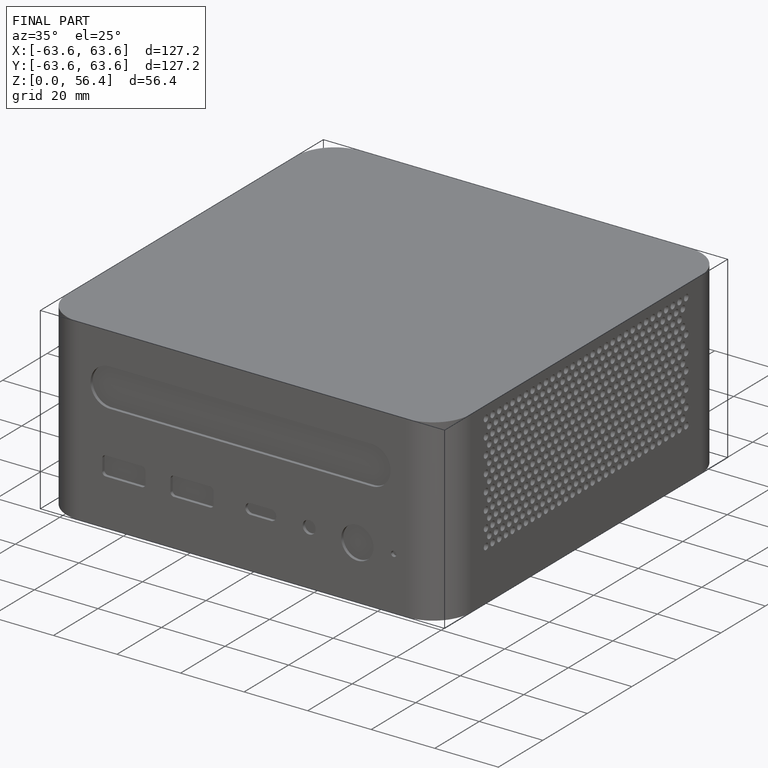
[diagram: finished part — iso view with bounding-box wireframe]
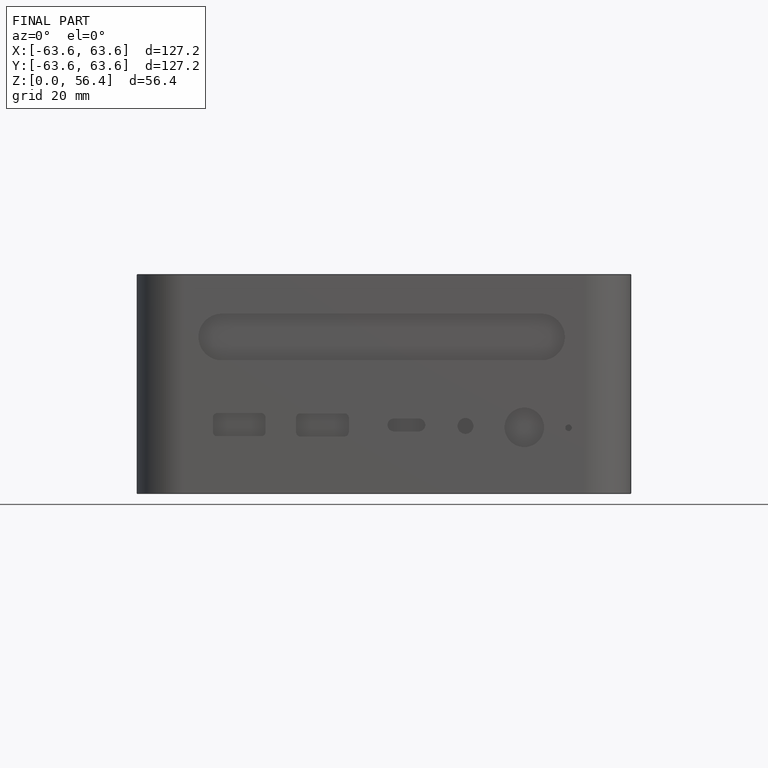
[diagram: finished part — front view with bounding-box wireframe]
